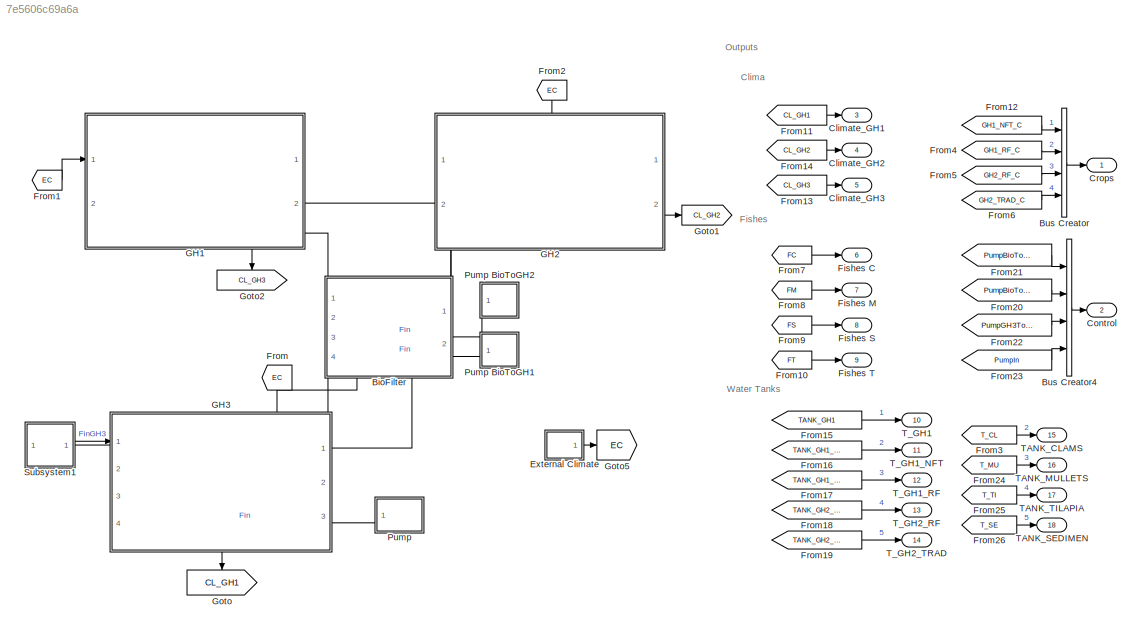
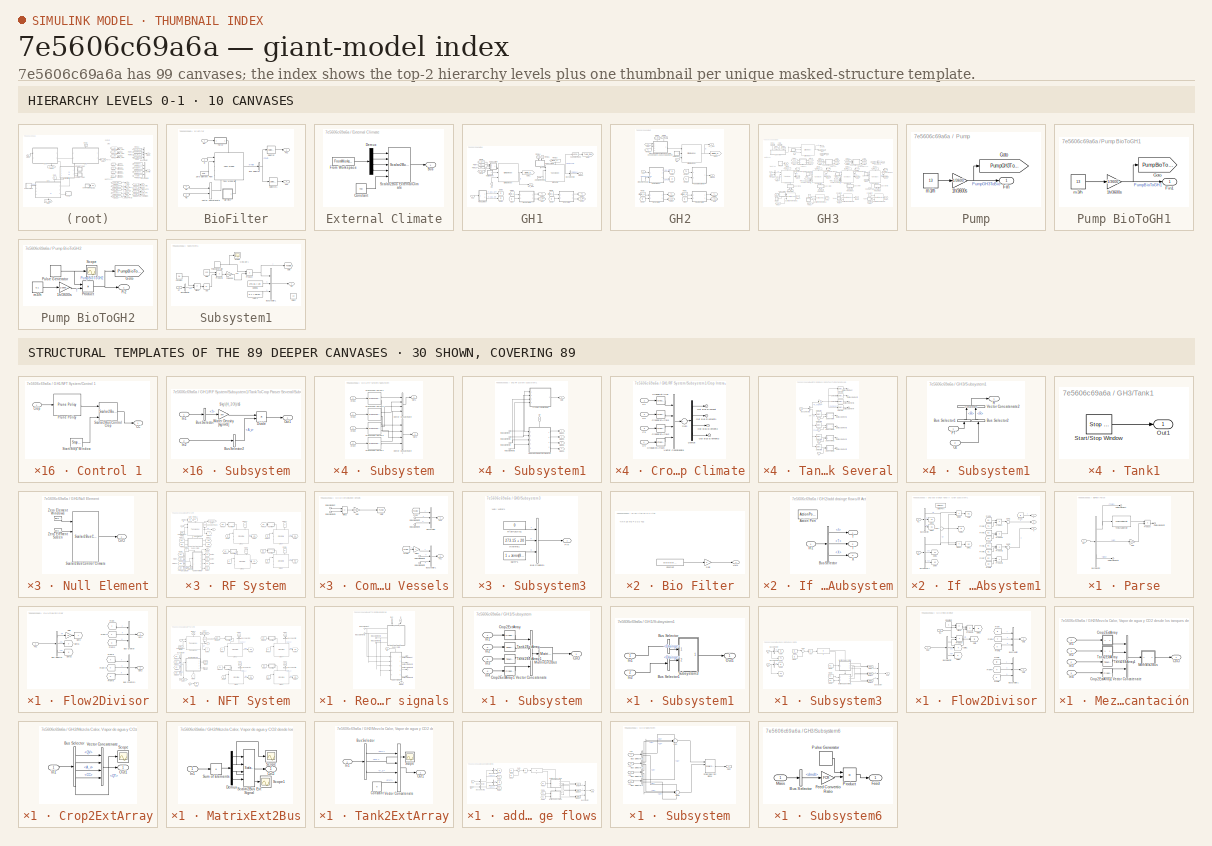
[diagram: thumbnail index - top-2 hierarchy levels (10 canvases) + 30 structural-template representatives of the remaining 89 canvases]
MODEL slx_7e5606c69a6a
KIND model
CONFIG AbsTol = auto
CONFIG EnableMultiTasking = off
CONFIG FixedStep = auto
CONFIG MaxStep = auto
CONFIG MinStep = auto
CONFIG RelTol = 1e-3
CONFIG SampleTimeConstraint = Unconstrained
CONFIG SolverName = VariableStepAuto
CONFIG StartTime = 0.0
CONFIG StopTime = 4
BLOCK [SubSystem] BioFilter
  NameLocation = left
  PortSchema = {"entries":[{"content":{"sides":[{"content":{"connectorIds":[]},"type":"ConnectorPlacement.EquallySpacedRectSide","uuid":"39de7e6f-241b-402f-a120-18892c124752"},{"content":{"connectorIds":["In3","In4"],"side":"RIGHT"},"type":"ConnectorPlacement.EquallySpacedRectSide","uuid":"cefc2988-7ee7-4e24-926e-b8e4989b17f9"},{"content":{"connectorIds":["Out1","Out2"],"side":"TOP"},"type":"ConnectorPlacement.E...<+408ch>
  Ports = [4, 2]
  RequestExecContextInheritance = off
BLOCK [SubSystem] BioFilter/Bio Filter
  Ports = [0, 1]
  RequestExecContextInheritance = off
BLOCK [Constant] BioFilter/Bio Filter/Constant
  Value = [0 0 0 0 0 0 1 0]'
  VectorParams1D = off
BLOCK [Gain] BioFilter/Bio Filter/Gain
BLOCK [Outport] BioFilter/Bio Filter/Out1
BLOCK [BusSelector] BioFilter/Bus Selector
  OutputSignals = Fout
  Ports = [1, 1]
BLOCK [Inport] BioFilter/EC
BLOCK [Inport] BioFilter/Fi1
  Port = 4
BLOCK [Inport] BioFilter/Fi2
  Port = 3
BLOCK [Outport] BioFilter/Fo1
BLOCK [Outport] BioFilter/Fo2
  Port = 2
BLOCK [SubSystem] BioFilter/Parse
  Ports = [1, 1]
  RequestExecContextInheritance = off
BLOCK [BusSelector] BioFilter/Parse/Bus Selector
  OutputSignals = Temp,HR,Wind
  Ports = [1, 3]
BLOCK [Inport] BioFilter/Parse/EC
BLOCK [Gain] BioFilter/Parse/Gain
  Gain = 1/100
BLOCK [Outport] BioFilter/Parse/Out Bus Element
BLOCK [Outport] BioFilter/Parse/Out Bus Element1
BLOCK [Outport] BioFilter/Parse/Out Bus Element2
BLOCK [Product] BioFilter/Parse/Product
  Ports = [2, 1]
BLOCK [Reference] BioFilter/Parse/Temp2SatDensity  REF=HORTISIM/Other 
Functions/Temp2SatDensity
  Ports = [1, 1]
  SourceBlock = HORTISIM/Other \nFunctions/Temp2SatDensity
  SourceProductName = Horti Simulator
  SourceType = SubSystem
BLOCK [Selector] BioFilter/Selector
  IndexOptions = Index vector (dialog)
  Indices = [1]
  InputPortWidth = 2
  OutputSizes = 1
  Ports = [1, 1]
BLOCK [Selector] BioFilter/Selector1
  IndexOptions = Index vector (dialog)
  Indices = [2]
  InputPortWidth = 2
  OutputSizes = 1
  Ports = [1, 1]
BLOCK [Reference] BioFilter/Tank Model Bio  REF=HORTISIM/Aquaculture/Models/Tank Model
  Ports = [5, 1]
  SourceBlock = HORTISIM/Aquaculture/Models/Tank Model
  SourceProductName = Horti Simulator
BLOCK [Concatenate] BioFilter/Vector Concatenate
  Mode = Multidimensional array
  Ports = [2, 1]
BLOCK [Reference] BioFilter/Zero Element Flow  REF=HORTISIM/Other 
Functions/Zero Element Flow
  Ports = [0, 1]
  SourceBlock = HORTISIM/Other \nFunctions/Zero Element Flow
  SourceProductName = Horti Simulator
  SourceType = SubSystem
BLOCK [Inport] BioFilter/in
  Port = 2
BLOCK [BusCreator] Bus Creator
  DisplayOption = bar
  InheritFromInputs = on
  Inputs = 4
  Ports = [4, 1]
BLOCK [BusCreator] Bus Creator4
  DisplayOption = bar
  InheritFromInputs = on
  Inputs = 4
  Ports = [4, 1]
BLOCK [Outport] Climate_GH1
  Port = 3
BLOCK [Outport] Climate_GH2
  Port = 4
BLOCK [Outport] Climate_GH3
  Port = 5
BLOCK [Outport] Control
  Port = 2
BLOCK [Outport] Crops
  PortDimensions = 62*4*4
BLOCK [SubSystem] External Climate
  Ports = [0, 1]
  RequestExecContextInheritance = off
BLOCK [Outport] External Climate/Bus
BLOCK [Constant] External Climate/Constant
  Value = 440
BLOCK [Demux] External Climate/Demux
  Ports = [1, 4]
BLOCK [FromWorkspace] External Climate/From Workspace
  VariableName = S01_EC
BLOCK [Reference] External Climate/Scalar2Bus ExternalClimate  REF=HORTISIM/Other 
Functions/Scalar2Bus
ExternalClimate
  Ports = [5, 1]
  SourceBlock = HORTISIM/Other \nFunctions/Scalar2Bus\nExternalClimate
  SourceProductName = Horti Simulator
  SourceType = SubSystem
BLOCK [Outport] Fishes C
  Port = 6
BLOCK [Outport] Fishes M
  Port = 7
BLOCK [Outport] Fishes S
  Port = 8
BLOCK [Outport] Fishes T
  Port = 9
BLOCK [From] From
  GotoTag = EC
  NameLocation = left
BLOCK [From] From1
  GotoTag = EC
BLOCK [From] From10
  GotoTag = FT
  TagVisibility = global
BLOCK [From] From11
  GotoTag = CL_GH1
BLOCK [From] From12
  GotoTag = GH1_NFT_C
  TagVisibility = global
BLOCK [From] From13
  GotoTag = CL_GH3
BLOCK [From] From14
  GotoTag = CL_GH2
BLOCK [From] From15
  GotoTag = TANK_GH1
  TagVisibility = global
BLOCK [From] From16
  GotoTag = TANK_GH1_NFT
  TagVisibility = global
BLOCK [From] From17
  GotoTag = TANK_GH1_RF
  TagVisibility = global
BLOCK [From] From18
  GotoTag = TANK_GH2_RF
  TagVisibility = global
BLOCK [From] From19
  GotoTag = TANK_GH2_TRAD
  TagVisibility = global
BLOCK [From] From2
  GotoTag = EC
  NameLocation = left
BLOCK [From] From20
  GotoTag = PumpBioToGH2
  TagVisibility = global
BLOCK [From] From21
  GotoTag = PumpBioToGH1
  TagVisibility = global
BLOCK [From] From22
  GotoTag = PumpGH3ToBio
  TagVisibility = global
BLOCK [From] From23
  GotoTag = PumpIn
  TagVisibility = global
BLOCK [From] From24
  GotoTag = T_MU
  TagVisibility = global
BLOCK [From] From25
  GotoTag = T_TI
  TagVisibility = global
BLOCK [From] From26
  GotoTag = T_SE
  TagVisibility = global
BLOCK [From] From3
  GotoTag = T_CL
  TagVisibility = global
BLOCK [From] From4
  GotoTag = GH1_RF_C
  TagVisibility = global
BLOCK [From] From5
  GotoTag = GH2_RF_C
  TagVisibility = global
BLOCK [From] From6
  GotoTag = GH2_TRAD_C
  TagVisibility = global
BLOCK [From] From7
  GotoTag = FC
  TagVisibility = global
BLOCK [From] From8
  GotoTag = FM
  TagVisibility = global
BLOCK [From] From9
  GotoTag = FS
  TagVisibility = global
BLOCK [SubSystem] GH1
  NameLocation = top
  PortSchema = {"entries":[{"content":{"sides":[{"content":{"connectorIds":["In1"]},"type":"ConnectorPlacement.EquallySpacedRectSide","uuid":"f96e7fae-faa6-4c45-94ca-623160b74f18"},{"content":{"connectorIds":["In2"],"side":"RIGHT"},"type":"ConnectorPlacement.EquallySpacedRectSide","uuid":"cb53bd10-123e-4148-bfa4-80436b7b153d"},{"content":{"connectorIds":[],"side":"TOP"},"type":"ConnectorPlacement.EquallySpacedRe...<+396ch>
  Ports = [2, 2]
  RequestExecContextInheritance = off
BLOCK [Reference] GH1/Bio Sump  REF=HORTISIM/Aquaculture/Models/Tank Model
  Ports = [5, 1]
  SourceBlock = HORTISIM/Aquaculture/Models/Tank Model
  SourceProductName = Horti Simulator
BLOCK [BusSelector] GH1/Bus Selector2
  OutputSignals = Drainge
  Ports = [1, 1]
BLOCK [Outport] GH1/CL_GH1
  Port = 2
BLOCK [Reference] GH1/Climate Model  REF=HORTISIM/Climate/Models/Climate Model
  Ports = [3, 1]
  SourceBlock = HORTISIM/Climate/Models/Climate Model
  SourceProductName = Horti Simulator
BLOCK [Outport] GH1/Drainge
BLOCK [Inport] GH1/EC
  NameLocation = right
BLOCK [SubSystem] GH1/Flow2Divisor
  Ports = [1, 2]
  RequestExecContextInheritance = off
BLOCK [BusCreator] GH1/Flow2Divisor/Bus Creator
  DisplayOption = bar
  InheritFromInputs = on
  Inputs = 3
  NonVirtualBus = on
  OutDataTypeStr = Bus: FLOW
  Ports = [3, 1]
BLOCK [BusCreator] GH1/Flow2Divisor/Bus Creator1
  DisplayOption = bar
  InheritFromInputs = on
  Inputs = 3
  NonVirtualBus = on
  OutDataTypeStr = Bus: FLOW
  Ports = [3, 1]
BLOCK [BusSelector] GH1/Flow2Divisor/Bus Selector
  OutputSignals = f,T,X
  Ports = [1, 3]
BLOCK [Inport] GH1/Flow2Divisor/Fo1
BLOCK [From] GH1/Flow2Divisor/From
  GotoTag = f
BLOCK [From] GH1/Flow2Divisor/From1
  GotoTag = T
BLOCK [From] GH1/Flow2Divisor/From2
  GotoTag = X
BLOCK [From] GH1/Flow2Divisor/From3
  GotoTag = f
BLOCK [From] GH1/Flow2Divisor/From4
  GotoTag = T
BLOCK [From] GH1/Flow2Divisor/From5
  GotoTag = X
BLOCK [Gain] GH1/Flow2Divisor/Gain
  Gain = 1/2
BLOCK [Goto] GH1/Flow2Divisor/Goto
  GotoTag = f
BLOCK [Goto] GH1/Flow2Divisor/Goto1
  GotoTag = T
BLOCK [Goto] GH1/Flow2Divisor/Goto2
  GotoTag = X
BLOCK [Outport] GH1/Flow2Divisor/Out1
BLOCK [Outport] GH1/Flow2Divisor/Out2
  Port = 2
BLOCK [Inport] GH1/Fo1
  Port = 2
BLOCK [From] GH1/From
  GotoTag = f1
BLOCK [From] GH1/From1
  GotoTag = Climate_GH1
BLOCK [From] GH1/From14
  GotoTag = T2
  NameLocation = left
BLOCK [From] GH1/From15
  GotoTag = T1
  NameLocation = left
BLOCK [From] GH1/From16
  GotoTag = Climate_GH1
  NameLocation = left
BLOCK [From] GH1/From19
  GotoTag = T1
BLOCK [From] GH1/From2
  GotoTag = Climate_GH1
BLOCK [From] GH1/From4
  GotoTag = f2
BLOCK [From] GH1/From5
  GotoTag = C_RF
BLOCK [From] GH1/From6
  GotoTag = C_NFT
BLOCK [From] GH1/From7
  GotoTag = T2
BLOCK [Goto] GH1/Goto
  GotoTag = C_NFT
BLOCK [Goto] GH1/Goto1
  GotoTag = Climate_GH1
BLOCK [Goto] GH1/Goto2
  GotoTag = T2
BLOCK [Goto] GH1/Goto3
  GotoTag = f1
BLOCK [Goto] GH1/Goto4
  GotoTag = f2
BLOCK [Goto] GH1/Goto5
  GotoTag = C_RF
BLOCK [Goto] GH1/Goto6
  GotoTag = T1
BLOCK [Goto] GH1/Goto7
  GotoTag = TANK_GH1
  TagVisibility = global
BLOCK [SubSystem] GH1/NFT System
  Ports = [2, 2]
  RequestExecContextInheritance = off
BLOCK [BusCreator] GH1/NFT System/Bus Creator
  DisplayOption = bar
  InheritFromInputs = on
  Inputs = 4
  Ports = [4, 1]
BLOCK [BusSelector] GH1/NFT System/Bus Selector
  NameLocation = left
  OutputSignals = Subs1
  Ports = [1, 1]
BLOCK [BusSelector] GH1/NFT System/Bus Selector1
  NameLocation = left
  OutputSignals = Subs3
  Ports = [1, 1]
BLOCK [BusSelector] GH1/NFT System/Bus Selector2
  NameLocation = left
  OutputSignals = Subs4
  Ports = [1, 1]
BLOCK [BusSelector] GH1/NFT System/Bus Selector3
  NameLocation = left
  OutputSignals = Subs2
  Ports = [1, 1]
BLOCK [SubSystem] GH1/NFT System/Control 1
  Ports = [1, 1]
  RequestExecContextInheritance = off
BLOCK [Outport] GH1/NFT System/Control 1/CC
BLOCK [Inport] GH1/NFT System/Control 1/Crop
BLOCK [Reference] GH1/NFT System/Control 1/Prune Policy  REF=HORTISIM/Horticulture/Controls/Prune
Policy
  Ports = [1, 1]
  SourceBlock = HORTISIM/Horticulture/Controls/Prune\nPolicy
  SourceProductName = Horti Simulator
BLOCK [Reference] GH1/NFT System/Control 1/Scalar2Bus Control Crop  REF=HORTISIM/Other 
Functions/Scalar2Bus
Control Crop
  Ports = [4, 1]
  SourceBlock = HORTISIM/Other \nFunctions/Scalar2Bus\nControl Crop
  SourceProductName = Horti Simulator
  SourceType = SubSystem
BLOCK [Reference] GH1/NFT System/Control 1/Start//Stop Window  REF=HORTISIM/Other 
Functions/Start//Stop Window
  Ports = [0, 1]
  SourceBlock = HORTISIM/Other \nFunctions/Start//Stop Window
  SourceProductName = Horti Simulator
BLOCK [SubSystem] GH1/NFT System/Control 2
  Ports = [1, 1]
  RequestExecContextInheritance = off
BLOCK [Outport] GH1/NFT System/Control 2/CC
BLOCK [Inport] GH1/NFT System/Control 2/Crop
BLOCK [Reference] GH1/NFT System/Control 2/Prune Policy  REF=HORTISIM/Horticulture/Controls/Prune
Policy
  Ports = [1, 1]
  SourceBlock = HORTISIM/Horticulture/Controls/Prune\nPolicy
  SourceProductName = Horti Simulator
BLOCK [Reference] GH1/NFT System/Control 2/Scalar2Bus Control Crop  REF=HORTISIM/Other 
Functions/Scalar2Bus
Control Crop
  Ports = [4, 1]
  SourceBlock = HORTISIM/Other \nFunctions/Scalar2Bus\nControl Crop
  SourceProductName = Horti Simulator
  SourceType = SubSystem
BLOCK [Reference] GH1/NFT System/Control 2/Start//Stop Window  REF=HORTISIM/Other 
Functions/Start//Stop Window
  Ports = [0, 1]
  SourceBlock = HORTISIM/Other \nFunctions/Start//Stop Window
  SourceProductName = Horti Simulator
BLOCK [SubSystem] GH1/NFT System/Control 3
  Ports = [1, 1]
  RequestExecContextInheritance = off
BLOCK [Outport] GH1/NFT System/Control 3/CC
BLOCK [Inport] GH1/NFT System/Control 3/Crop
BLOCK [Reference] GH1/NFT System/Control 3/Prune Policy  REF=HORTISIM/Horticulture/Controls/Prune
Policy
  Ports = [1, 1]
  SourceBlock = HORTISIM/Horticulture/Controls/Prune\nPolicy
  SourceProductName = Horti Simulator
BLOCK [Reference] GH1/NFT System/Control 3/Scalar2Bus Control Crop  REF=HORTISIM/Other 
Functions/Scalar2Bus
Control Crop
  Ports = [4, 1]
  SourceBlock = HORTISIM/Other \nFunctions/Scalar2Bus\nControl Crop
  SourceProductName = Horti Simulator
  SourceType = SubSystem
BLOCK [Reference] GH1/NFT System/Control 3/Start//Stop Window  REF=HORTISIM/Other 
Functions/Start//Stop Window
  Ports = [0, 1]
  SourceBlock = HORTISIM/Other \nFunctions/Start//Stop Window
  SourceProductName = Horti Simulator
BLOCK [SubSystem] GH1/NFT System/Control 4
  Ports = [1, 1]
  RequestExecContextInheritance = off
BLOCK [Outport] GH1/NFT System/Control 4/CC
BLOCK [Inport] GH1/NFT System/Control 4/Crop
BLOCK [Reference] GH1/NFT System/Control 4/Prune Policy  REF=HORTISIM/Horticulture/Controls/Prune
Policy
  Ports = [1, 1]
  SourceBlock = HORTISIM/Horticulture/Controls/Prune\nPolicy
  SourceProductName = Horti Simulator
BLOCK [Reference] GH1/NFT System/Control 4/Scalar2Bus Control Crop  REF=HORTISIM/Other 
Functions/Scalar2Bus
Control Crop
  Ports = [4, 1]
  SourceBlock = HORTISIM/Other \nFunctions/Scalar2Bus\nControl Crop
  SourceProductName = Horti Simulator
  SourceType = SubSystem
BLOCK [Reference] GH1/NFT System/Control 4/Start//Stop Window  REF=HORTISIM/Other 
Functions/Start//Stop Window
  Ports = [0, 1]
  SourceBlock = HORTISIM/Other \nFunctions/Start//Stop Window
  SourceProductName = Horti Simulator
BLOCK [Reference] GH1/NFT System/Crop 1  REF=HORTISIM/Horticulture/Models/Crop Grow
  Ports = [3, 1]
  SourceBlock = HORTISIM/Horticulture/Models/Crop Grow
  SourceProductName = Horti Simulator
BLOCK [Reference] GH1/NFT System/Crop 2  REF=HORTISIM/Horticulture/Models/Crop Grow
  Ports = [3, 1]
  SourceBlock = HORTISIM/Horticulture/Models/Crop Grow
  SourceProductName = Horti Simulator
BLOCK [Reference] GH1/NFT System/Crop 3  REF=HORTISIM/Horticulture/Models/Crop Grow
  Ports = [3, 1]
  SourceBlock = HORTISIM/Horticulture/Models/Crop Grow
  SourceProductName = Horti Simulator
BLOCK [Reference] GH1/NFT System/Crop 4  REF=HORTISIM/Horticulture/Models/Crop Grow
  Ports = [3, 1]
  SourceBlock = HORTISIM/Horticulture/Models/Crop Grow
  SourceProductName = Horti Simulator
BLOCK [Outport] GH1/NFT System/CropInt
  Port = 2
BLOCK [From] GH1/NFT System/From
  GotoTag = C2
BLOCK [From] GH1/NFT System/From1
  GotoTag = IC
BLOCK [From] GH1/NFT System/From10
  GotoTag = C1
BLOCK [From] GH1/NFT System/From11
  GotoTag = IC
  NameLocation = left
BLOCK [From] GH1/NFT System/From13
  GotoTag = C1
BLOCK [From] GH1/NFT System/From15
  GotoTag = IC
BLOCK [From] GH1/NFT System/From16
  GotoTag = C3
BLOCK [From] GH1/NFT System/From18
  GotoTag = C4
BLOCK [From] GH1/NFT System/From2
  GotoTag = C2
BLOCK [From] GH1/NFT System/From20
  GotoTag = C3
BLOCK [From] GH1/NFT System/From21
  GotoTag = C4
BLOCK [From] GH1/NFT System/From3
  GotoTag = IC
BLOCK [From] GH1/NFT System/From4
  GotoTag = Subs
  NameLocation = left
BLOCK [From] GH1/NFT System/From5
  GotoTag = T
  NameLocation = right
BLOCK [From] GH1/NFT System/From6
  GotoTag = Subs
  NameLocation = left
BLOCK [From] GH1/NFT System/From7
  GotoTag = Subs
  NameLocation = left
BLOCK [From] GH1/NFT System/From8
  GotoTag = Subs
  NameLocation = left
BLOCK [From] GH1/NFT System/From9
  GotoTag = IC
BLOCK [Goto] GH1/NFT System/Goto
  GotoTag = IC
BLOCK [Goto] GH1/NFT System/Goto1
  GotoTag = C2
BLOCK [Goto] GH1/NFT System/Goto2
  GotoTag = C1
BLOCK [Goto] GH1/NFT System/Goto3
  GotoTag = Subs
BLOCK [Goto] GH1/NFT System/Goto4
  GotoTag = GH1_NFT_C
  NameLocation = left
  TagVisibility = global
BLOCK [Goto] GH1/NFT System/Goto5
  GotoTag = C3
BLOCK [Goto] GH1/NFT System/Goto6
  GotoTag = C4
BLOCK [Goto] GH1/NFT System/Goto7
  GotoTag = TANK_GH1_NFT
  NameLocation = right
  TagVisibility = global
BLOCK [Goto] GH1/NFT System/Goto8
  GotoTag = T
BLOCK [Inport] GH1/NFT System/IC
BLOCK [SubSystem] GH1/NFT System/Reorder signals
  PortSchema = {"entries":[{"content":{"sides":[{"content":{"connectorIds":["In1"]},"type":"ConnectorPlacement.EquallySpacedRectSide","uuid":"9bbb4059-7111-4f5f-880e-1e66f0dc329a"},{"content":{"connectorIds":["Out1","Out2"],"side":"RIGHT"},"type":"ConnectorPlacement.EquallySpacedRectSide","uuid":"81ab22e8-385b-43c4-a26b-510ea5d440bf"},{"content":{"connectorIds":["Out3","Out4"],"side":"TOP"},"type":"ConnectorPlac...<+409ch>
  Ports = [2, 4]
  RequestExecContextInheritance = off
BLOCK [Outport] GH1/NFT System/Reorder signals/CropInt
  Port = 2
BLOCK [Inport] GH1/NFT System/Reorder signals/In Bus Element
BLOCK [Inport] GH1/NFT System/Reorder signals/In Bus Element1
BLOCK [Inport] GH1/NFT System/Reorder signals/In Bus Element2
BLOCK [Inport] GH1/NFT System/Reorder signals/In Bus Element3
BLOCK [Outport] GH1/NFT System/Reorder signals/Out Bus Element
BLOCK [Outport] GH1/NFT System/Reorder signals/Out Bus Element1
BLOCK [Outport] GH1/NFT System/Reorder signals/Out Bus Element2
BLOCK [Outport] GH1/NFT System/Reorder signals/Out Bus Element3
BLOCK [Outport] GH1/NFT System/Reorder signals/R
  NameLocation = right
  Port = 4
BLOCK [SubSystem] GH1/NFT System/Reorder signals/Subsystem
  NameLocation = right
  PortSchema = {"entries":[{"content":{"sides":[{"content":{"connectorIds":[]},"type":"ConnectorPlacement.EquallySpacedRectSide","uuid":"331b7e07-99e0-48a1-afa9-efd959d86c3c"},{"content":{"connectorIds":["Out1","Out2"],"side":"RIGHT"},"type":"ConnectorPlacement.EquallySpacedRectSide","uuid":"88f560c2-c33d-415c-abbb-9cce13a50e34"},{"content":{"connectorIds":["In1","In2","In3","In4"],"side":"TOP"},"type":"Connecto...<+409ch>
  Ports = [4, 2]
  RequestExecContextInheritance = off
BLOCK [Inport] GH1/NFT System/Reorder signals/Subsystem/Crop1
  Port = 4
BLOCK [Inport] GH1/NFT System/Reorder signals/Subsystem/Crop2
  Port = 3
BLOCK [Inport] GH1/NFT System/Reorder signals/Subsystem/Crop3
BLOCK [Inport] GH1/NFT System/Reorder signals/Subsystem/Crop4
  Port = 2
BLOCK [Reference] GH1/NFT System/Reorder signals/Subsystem/CropToTank Parser1  REF=HORTISIM/Other 
Functions/CropToTank Parser
  Ports = [1, 2]
  SourceBlock = HORTISIM/Other \nFunctions/CropToTank Parser
  SourceProductName = Horti Simulator
  SourceType = SubSystem
BLOCK [Reference] GH1/NFT System/Reorder signals/Subsystem/CropToTank Parser2  REF=HORTISIM/Other 
Functions/CropToTank Parser
  Ports = [1, 2]
  SourceBlock = HORTISIM/Other \nFunctions/CropToTank Parser
  SourceProductName = Horti Simulator
  SourceType = SubSystem
BLOCK [Reference] GH1/NFT System/Reorder signals/Subsystem/CropToTank Parser3  REF=HORTISIM/Other 
Functions/CropToTank Parser
  Ports = [1, 2]
  SourceBlock = HORTISIM/Other \nFunctions/CropToTank Parser
  SourceProductName = Horti Simulator
  SourceType = SubSystem
BLOCK [Reference] GH1/NFT System/Reorder signals/Subsystem/CropToTank Parser4  REF=HORTISIM/Other 
Functions/CropToTank Parser
  Ports = [1, 2]
  SourceBlock = HORTISIM/Other \nFunctions/CropToTank Parser
  SourceProductName = Horti Simulator
  SourceType = SubSystem
BLOCK [Outport] GH1/NFT System/Reorder signals/Subsystem/Out1
BLOCK [Outport] GH1/NFT System/Reorder signals/Subsystem/Out2
  Port = 2
BLOCK [Concatenate] GH1/NFT System/Reorder signals/Subsystem/Vector Concatenate
  Mode = Multidimensional array
  NumInputs = 4
  Ports = [4, 1]
BLOCK [Concatenate] GH1/NFT System/Reorder signals/Subsystem/Vector Concatenate1
  ConcatenateDimension = 2
  Mode = Multidimensional array
  NumInputs = 4
  Ports = [4, 1]
BLOCK [SubSystem] GH1/NFT System/Reorder signals/Subsystem1
  PortSchema = {"entries":[{"content":{"sides":[{"content":{"connectorIds":["In1","In2","In3","In4"]},"type":"ConnectorPlacement.EquallySpacedRectSide","uuid":"4fbee580-d560-4e1c-bbb5-c1692f8814f1"},{"content":{"connectorIds":["Out1","Out2","Out3","Out4"],"side":"RIGHT"},"type":"ConnectorPlacement.EquallySpacedRectSide","uuid":"81a4a23d-0981-460c-8110-0a6c3dae9561"},{"content":{"connectorIds":["In5"],"side":"TOP...<+434ch>
  Ports = [5, 5]
  RequestExecContextInheritance = off
BLOCK [Inport] GH1/NFT System/Reorder signals/Subsystem1/C1
BLOCK [Inport] GH1/NFT System/Reorder signals/Subsystem1/C2
  Port = 2
BLOCK [Inport] GH1/NFT System/Reorder signals/Subsystem1/C3
  Port = 3
BLOCK [Inport] GH1/NFT System/Reorder signals/Subsystem1/C4
  Port = 4
BLOCK [SubSystem] GH1/NFT System/Reorder signals/Subsystem1/Crop Interactio with Climate
  Ports = [4, 1]
  RequestExecContextInheritance = off
BLOCK [Inport] GH1/NFT System/Reorder signals/Subsystem1/Crop Interactio with Climate/C1
BLOCK [Inport] GH1/NFT System/Reorder signals/Subsystem1/Crop Interactio with Climate/C2
  Port = 2
BLOCK [Inport] GH1/NFT System/Reorder signals/Subsystem1/Crop Interactio with Climate/C3
  Port = 3
BLOCK [Inport] GH1/NFT System/Reorder signals/Subsystem1/Crop Interactio with Climate/C4
  Port = 4
BLOCK [Reference] GH1/NFT System/Reorder signals/Subsystem1/Crop Interactio with Climate/Crop2ExtArray  REF=HORTISIM/Other 
Functions/Crop2ExtArray
  Ports = [1, 1]
  SourceBlock = HORTISIM/Other \nFunctions/Crop2ExtArray
  SourceProductName = Horti Simulator
  SourceType = SubSystem
BLOCK [Reference] GH1/NFT System/Reorder signals/Subsystem1/Crop Interactio with Climate/Crop2ExtArray1  REF=HORTISIM/Other 
Functions/Crop2ExtArray
  Ports = [1, 1]
  SourceBlock = HORTISIM/Other \nFunctions/Crop2ExtArray
  SourceProductName = Horti Simulator
  SourceType = SubSystem
BLOCK [Reference] GH1/NFT System/Reorder signals/Subsystem1/Crop Interactio with Climate/Crop2ExtArray2  REF=HORTISIM/Other 
Functions/Crop2ExtArray
  Ports = [1, 1]
  SourceBlock = HORTISIM/Other \nFunctions/Crop2ExtArray
  SourceProductName = Horti Simulator
  SourceType = SubSystem
BLOCK [Reference] GH1/NFT System/Reorder signals/Subsystem1/Crop Interactio with Climate/Crop2ExtArray3  REF=HORTISIM/Other 
Functions/Crop2ExtArray
  Ports = [1, 1]
  SourceBlock = HORTISIM/Other \nFunctions/Crop2ExtArray
  SourceProductName = Horti Simulator
  SourceType = SubSystem
BLOCK [Demux] GH1/NFT System/Reorder signals/Subsystem1/Crop Interactio with Climate/Demux
  Ports = [1, 4]
BLOCK [Outport] GH1/NFT System/Reorder signals/Subsystem1/Crop Interactio with Climate/Out Bus Element
BLOCK [Outport] GH1/NFT System/Reorder signals/Subsystem1/Crop Interactio with Climate/Out Bus Element1
BLOCK [Outport] GH1/NFT System/Reorder signals/Subsystem1/Crop Interactio with Climate/Out Bus Element2
BLOCK [Outport] GH1/NFT System/Reorder signals/Subsystem1/Crop Interactio with Climate/Out Bus Element3
BLOCK [Sum] GH1/NFT System/Reorder signals/Subsystem1/Crop Interactio with Climate/Sum
  CollapseDim = 2
  CollapseMode = Specified dimension
  Inputs = +
  Ports = [1, 1]
BLOCK [Concatenate] GH1/NFT System/Reorder signals/Subsystem1/Crop Interactio with Climate/Vector Concatenate
  ConcatenateDimension = 2
  Mode = Multidimensional array
  NumInputs = 4
  Ports = [4, 1]
BLOCK [Outport] GH1/NFT System/Reorder signals/Subsystem1/Out3
  Port = 5
BLOCK [Outport] GH1/NFT System/Reorder signals/Subsystem1/Subs
BLOCK [Outport] GH1/NFT System/Reorder signals/Subsystem1/Subs2
  Port = 2
BLOCK [Outport] GH1/NFT System/Reorder signals/Subsystem1/Subs3
  Port = 3
BLOCK [Outport] GH1/NFT System/Reorder signals/Subsystem1/Subs4
  Port = 4
BLOCK [SubSystem] GH1/NFT System/Reorder signals/Subsystem1/TankToCrop Parser Several
  PortSchema = {"entries":[{"content":{"sides":[{"content":{"connectorIds":["In1","In2","In3","In4"]},"type":"ConnectorPlacement.EquallySpacedRectSide","uuid":"99f6f79d-93b3-4d94-9532-d82544948055"},{"content":{"connectorIds":["Out1","Out2","Out3","Out4"],"side":"RIGHT"},"type":"ConnectorPlacement.EquallySpacedRectSide","uuid":"ca15eaf2-1366-4114-b322-5e88a02c6d72"},{"content":{"connectorIds":["In5"],"side":"TOP...<+284ch>  <repeated x4 — deduplicated; at blocks: TankToCrop Parser Several>
  Ports = [5, 4]
  RequestExecContextInheritance = off
BLOCK [BusSelector] GH1/NFT System/Reorder signals/Subsystem1/TankToCrop Parser Several/Bus Selector1
  OutputSignals = R_uptake,Fout
  Ports = [1, 2]
BLOCK [Inport] GH1/NFT System/Reorder signals/Subsystem1/TankToCrop Parser Several/C1
BLOCK [Inport] GH1/NFT System/Reorder signals/Subsystem1/TankToCrop Parser Several/C2
  Port = 2
BLOCK [Inport] GH1/NFT System/Reorder signals/Subsystem1/TankToCrop Parser Several/C3
  Port = 3
BLOCK [Inport] GH1/NFT System/Reorder signals/Subsystem1/TankToCrop Parser Several/C4
  Port = 4
BLOCK [Gain] GH1/NFT System/Reorder signals/Subsystem1/TankToCrop Parser Several/Gain
  Gain = -1
BLOCK [Outport] GH1/NFT System/Reorder signals/Subsystem1/TankToCrop Parser Several/Out Bus Element
BLOCK [Outport] GH1/NFT System/Reorder signals/Subsystem1/TankToCrop Parser Several/Out Bus Element1
BLOCK [Outport] GH1/NFT System/Reorder signals/Subsystem1/TankToCrop Parser Several/Out Bus Element2
  Port = 2
BLOCK [Outport] GH1/NFT System/Reorder signals/Subsystem1/TankToCrop Parser Several/Out Bus Element3
  Port = 2
BLOCK [Outport] GH1/NFT System/Reorder signals/Subsystem1/TankToCrop Parser Several/Out Bus Element4
  Port = 3
BLOCK [Outport] GH1/NFT System/Reorder signals/Subsystem1/TankToCrop Parser Several/Out Bus Element5
  Port = 4
BLOCK [Outport] GH1/NFT System/Reorder signals/Subsystem1/TankToCrop Parser Several/Out Bus Element6
  Port = 3
BLOCK [Outport] GH1/NFT System/Reorder signals/Subsystem1/TankToCrop Parser Several/Out Bus Element7
  Port = 4
BLOCK [Selector] GH1/NFT System/Reorder signals/Subsystem1/TankToCrop Parser Several/Selector
  IndexOptions = Index vector (dialog)
  Indices = [1]
  InputPortWidth = 4
  OutputSizes = 1
  Ports = [1, 1]
BLOCK [Selector] GH1/NFT System/Reorder signals/Subsystem1/TankToCrop Parser Several/Selector1
  IndexOptions = Index vector (dialog)
  Indices = [2]
  InputPortWidth = 4
  OutputSizes = 1
  Ports = [1, 1]
BLOCK [Selector] GH1/NFT System/Reorder signals/Subsystem1/TankToCrop Parser Several/Selector2
  IndexOptions = Select all,Index vector (dialog)
  Indices = [1],1
  InputPortWidth = 2
  NumberOfDimensions = 2
  OutputSizes = 1,1
  Ports = [1, 1]
BLOCK [Selector] GH1/NFT System/Reorder signals/Subsystem1/TankToCrop Parser Several/Selector3
  IndexOptions = Select all,Index vector (dialog)
  Indices = [2],2
  InputPortWidth = 2
  NumberOfDimensions = 2
  OutputSizes = 1,1
  Ports = [1, 1]
BLOCK [Selector] GH1/NFT System/Reorder signals/Subsystem1/TankToCrop Parser Several/Selector4
  IndexOptions = Index vector (dialog)
  Indices = [3]
  InputPortWidth = 4
  OutputSizes = 1
  Ports = [1, 1]
BLOCK [Selector] GH1/NFT System/Reorder signals/Subsystem1/TankToCrop Parser Several/Selector5
  IndexOptions = Index vector (dialog)
  Indices = [4]
  InputPortWidth = 4
  OutputSizes = 1
  Ports = [1, 1]
BLOCK [Selector] GH1/NFT System/Reorder signals/Subsystem1/TankToCrop Parser Several/Selector6
  IndexOptions = Select all,Index vector (dialog)
  Indices = [2],3
  InputPortWidth = 2
  NumberOfDimensions = 2
  OutputSizes = 1,1
  Ports = [1, 1]
BLOCK [Selector] GH1/NFT System/Reorder signals/Subsystem1/TankToCrop Parser Several/Selector7
  IndexOptions = Select all,Index vector (dialog)
  Indices = [2],4
  InputPortWidth = 2
  NumberOfDimensions = 2
  OutputSizes = 1,1
  Ports = [1, 1]
BLOCK [SubSystem] GH1/NFT System/Reorder signals/Subsystem1/TankToCrop Parser Several/Subsystem
  Ports = [2, 1]
  RequestExecContextInheritance = off
BLOCK [BusSelector] GH1/NFT System/Reorder signals/Subsystem1/TankToCrop Parser Several/Subsystem/Bus Selector
  OutputSignals = f
  Ports = [1, 1]
BLOCK [BusSelector] GH1/NFT System/Reorder signals/Subsystem1/TankToCrop Parser Several/Subsystem/Bus Selector2
  OutputSignals = A_v
  Ports = [1, 1]
BLOCK [Product] GH1/NFT System/Reorder signals/Subsystem1/TankToCrop Parser Several/Subsystem/Divide
  Inputs = */
  Ports = [2, 1]
BLOCK [Inport] GH1/NFT System/Reorder signals/Subsystem1/TankToCrop Parser Several/Subsystem/In1
BLOCK [Inport] GH1/NFT System/Reorder signals/Subsystem1/TankToCrop Parser Several/Subsystem/In2
  Port = 2
BLOCK [Outport] GH1/NFT System/Reorder signals/Subsystem1/TankToCrop Parser Several/Subsystem/Out1
BLOCK [Gain] GH1/NFT System/Reorder signals/Subsystem1/TankToCrop Parser Several/Subsystem/Water Density [kg//m^3]
  Gain = 997
BLOCK [SubSystem] GH1/NFT System/Reorder signals/Subsystem1/TankToCrop Parser Several/Subsystem1
  Ports = [2, 1]
  RequestExecContextInheritance = off
BLOCK [BusSelector] GH1/NFT System/Reorder signals/Subsystem1/TankToCrop Parser Several/Subsystem1/Bus Selector3
  OutputSignals = A_v
  Ports = [1, 1]
BLOCK [BusSelector] GH1/NFT System/Reorder signals/Subsystem1/TankToCrop Parser Several/Subsystem1/Bus Selector4
  OutputSignals = f
  Ports = [1, 1]
BLOCK [Inport] GH1/NFT System/Reorder signals/Subsystem1/TankToCrop Parser Several/Subsystem1/C2
  Port = 2
BLOCK [Product] GH1/NFT System/Reorder signals/Subsystem1/TankToCrop Parser Several/Subsystem1/Divide1
  Inputs = */
  Ports = [2, 1]
BLOCK [Inport] GH1/NFT System/Reorder signals/Subsystem1/TankToCrop Parser Several/Subsystem1/In1
BLOCK [Outport] GH1/NFT System/Reorder signals/Subsystem1/TankToCrop Parser Several/Subsystem1/Out1
BLOCK [Gain] GH1/NFT System/Reorder signals/Subsystem1/TankToCrop Parser Several/Subsystem1/Water Density [kg//m^3]1
  Gain = 997
BLOCK [SubSystem] GH1/NFT System/Reorder signals/Subsystem1/TankToCrop Parser Several/Subsystem2
  Ports = [2, 1]
  RequestExecContextInheritance = off
BLOCK [BusSelector] GH1/NFT System/Reorder signals/Subsystem1/TankToCrop Parser Several/Subsystem2/Bus Selector3
  OutputSignals = A_v
  Ports = [1, 1]
BLOCK [BusSelector] GH1/NFT System/Reorder signals/Subsystem1/TankToCrop Parser Several/Subsystem2/Bus Selector4
  OutputSignals = f
  Ports = [1, 1]
BLOCK [Inport] GH1/NFT System/Reorder signals/Subsystem1/TankToCrop Parser Several/Subsystem2/C2
  Port = 2
BLOCK [Product] GH1/NFT System/Reorder signals/Subsystem1/TankToCrop Parser Several/Subsystem2/Divide1
  Inputs = */
  Ports = [2, 1]
BLOCK [Inport] GH1/NFT System/Reorder signals/Subsystem1/TankToCrop Parser Several/Subsystem2/In1
BLOCK [Outport] GH1/NFT System/Reorder signals/Subsystem1/TankToCrop Parser Several/Subsystem2/Subs3 
BLOCK [Gain] GH1/NFT System/Reorder signals/Subsystem1/TankToCrop Parser Several/Subsystem2/Water Density [kg//m^3]1
  Gain = 997
BLOCK [SubSystem] GH1/NFT System/Reorder signals/Subsystem1/TankToCrop Parser Several/Subsystem3
  Ports = [2, 1]
  RequestExecContextInheritance = off
BLOCK [BusSelector] GH1/NFT System/Reorder signals/Subsystem1/TankToCrop Parser Several/Subsystem3/Bus Selector3
  OutputSignals = A_v
  Ports = [1, 1]
BLOCK [BusSelector] GH1/NFT System/Reorder signals/Subsystem1/TankToCrop Parser Several/Subsystem3/Bus Selector4
  OutputSignals = f
  Ports = [1, 1]
BLOCK [Inport] GH1/NFT System/Reorder signals/Subsystem1/TankToCrop Parser Several/Subsystem3/C2
  Port = 2
BLOCK [Product] GH1/NFT System/Reorder signals/Subsystem1/TankToCrop Parser Several/Subsystem3/Divide1
  Inputs = */
  Ports = [2, 1]
BLOCK [Inport] GH1/NFT System/Reorder signals/Subsystem1/TankToCrop Parser Several/Subsystem3/In1
BLOCK [Outport] GH1/NFT System/Reorder signals/Subsystem1/TankToCrop Parser Several/Subsystem3/Subs4
BLOCK [Gain] GH1/NFT System/Reorder signals/Subsystem1/TankToCrop Parser Several/Subsystem3/Water Density [kg//m^3]1
  Gain = 997
BLOCK [Inport] GH1/NFT System/Reorder signals/Subsystem1/TankToCrop Parser Several/WT
  Port = 5
BLOCK [Inport] GH1/NFT System/Reorder signals/Subsystem1/WT
  NameLocation = left
  Port = 5
BLOCK [Inport] GH1/NFT System/Reorder signals/WT
  Port = 2
BLOCK [Outport] GH1/NFT System/Reorder signals/fout
  NameLocation = right
  Port = 3
BLOCK [Outport] GH1/NFT System/T
BLOCK [Reference] GH1/NFT System/Tank Model  REF=HORTISIM/Aquaculture/Models/Tank Model
  Ports = [5, 1]
  SourceBlock = HORTISIM/Aquaculture/Models/Tank Model
  SourceProductName = Horti Simulator
BLOCK [Reference] GH1/NFT System/Zero Element Flow2  REF=HORTISIM/Other 
Functions/Zero Element Flow
  Ports = [0, 1]
  SourceBlock = HORTISIM/Other \nFunctions/Zero Element Flow
  SourceProductName = Horti Simulator
  SourceType = SubSystem
BLOCK [Inport] GH1/NFT System/f
  Port = 2
BLOCK [Reference] GH1/NFT System/subSelect Tank  REF=HORTISIM/Other 
Functions/subSelect 
Tank
  NameLocation = right
  Ports = [1, 1]
  SourceBlock = HORTISIM/Other \nFunctions/subSelect \nTank
  SourceProductName = Horti Simulator
  SourceType = SubSystem
BLOCK [SubSystem] GH1/Null Element
  Ports = [0, 1]
  RequestExecContextInheritance = off
BLOCK [Outport] GH1/Null Element/CoCl
BLOCK [Reference] GH1/Null Element/Scalar2Bus Control Climate  REF=HORTISIM/Other 
Functions/Scalar2Bus 
Control Climate
  Ports = [4, 1]
  SourceBlock = HORTISIM/Other \nFunctions/Scalar2Bus \nControl Climate
  SourceProductName = Horti Simulator
  SourceType = SubSystem
BLOCK [Reference] GH1/Null Element/Zero Element Screen  REF=HORTISIM/Other 
Functions/Zero Element
Screen
  Ports = [0, 1]
  SourceBlock = HORTISIM/Other \nFunctions/Zero Element\nScreen
  SourceProductName = Horti Simulator
  SourceType = SubSystem
BLOCK [Reference] GH1/Null Element/Zero Element Windows  REF=HORTISIM/Other 
Functions/Zero Element
Windows
  Ports = [0, 1]
  SourceBlock = HORTISIM/Other \nFunctions/Zero Element\nWindows
  SourceProductName = Horti Simulator
  SourceType = SubSystem
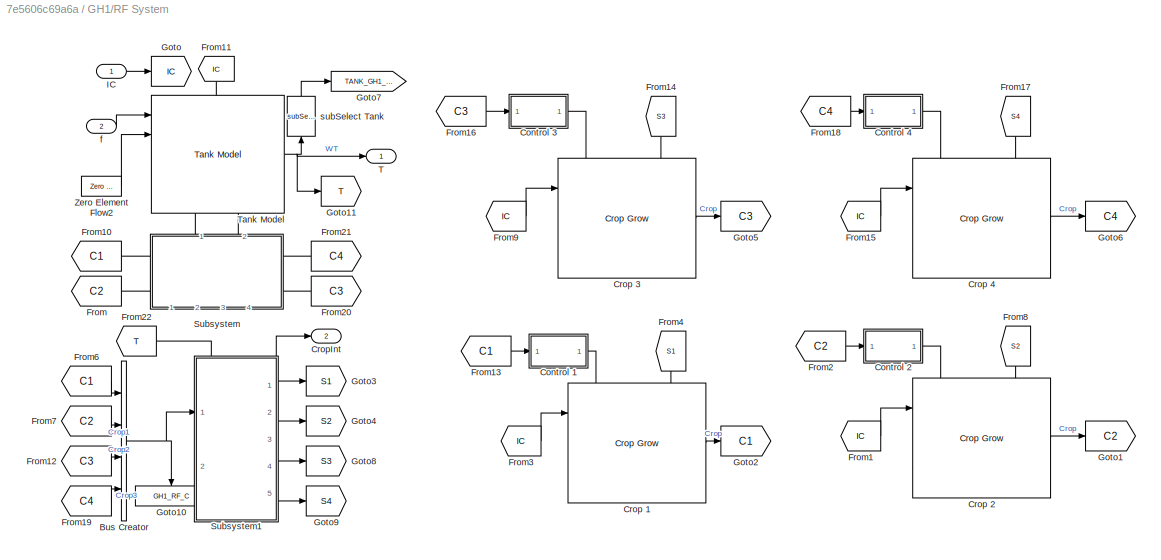
BLOCK [SubSystem] GH1/RF System
  Ports = [2, 2]
  RequestExecContextInheritance = off
BLOCK [BusCreator] GH1/RF System/Bus Creator
  DisplayOption = bar
  InheritFromInputs = on
  Inputs = 4
  Ports = [4, 1]
BLOCK [SubSystem] GH1/RF System/Control 1
  Ports = [1, 1]
  RequestExecContextInheritance = off
BLOCK [Outport] GH1/RF System/Control 1/CC
BLOCK [Inport] GH1/RF System/Control 1/Crop
BLOCK [Reference] GH1/RF System/Control 1/Prune Policy  REF=HORTISIM/Horticulture/Controls/Prune
Policy
  Ports = [1, 1]
  SourceBlock = HORTISIM/Horticulture/Controls/Prune\nPolicy
  SourceProductName = Horti Simulator
BLOCK [Reference] GH1/RF System/Control 1/Scalar2Bus Control Crop  REF=HORTISIM/Other 
Functions/Scalar2Bus
Control Crop
  Ports = [4, 1]
  SourceBlock = HORTISIM/Other \nFunctions/Scalar2Bus\nControl Crop
  SourceProductName = Horti Simulator
  SourceType = SubSystem
BLOCK [Reference] GH1/RF System/Control 1/Start//Stop Window  REF=HORTISIM/Other 
Functions/Start//Stop Window
  Ports = [0, 1]
  SourceBlock = HORTISIM/Other \nFunctions/Start//Stop Window
  SourceProductName = Horti Simulator
BLOCK [SubSystem] GH1/RF System/Control 2
  Ports = [1, 1]
  RequestExecContextInheritance = off
BLOCK [Outport] GH1/RF System/Control 2/CC
BLOCK [Inport] GH1/RF System/Control 2/Crop
BLOCK [Reference] GH1/RF System/Control 2/Prune Policy  REF=HORTISIM/Horticulture/Controls/Prune
Policy
  Ports = [1, 1]
  SourceBlock = HORTISIM/Horticulture/Controls/Prune\nPolicy
  SourceProductName = Horti Simulator
BLOCK [Reference] GH1/RF System/Control 2/Scalar2Bus Control Crop  REF=HORTISIM/Other 
Functions/Scalar2Bus
Control Crop
  Ports = [4, 1]
  SourceBlock = HORTISIM/Other \nFunctions/Scalar2Bus\nControl Crop
  SourceProductName = Horti Simulator
  SourceType = SubSystem
BLOCK [Reference] GH1/RF System/Control 2/Start//Stop Window  REF=HORTISIM/Other 
Functions/Start//Stop Window
  Ports = [0, 1]
  SourceBlock = HORTISIM/Other \nFunctions/Start//Stop Window
  SourceProductName = Horti Simulator
BLOCK [SubSystem] GH1/RF System/Control 3
  Ports = [1, 1]
  RequestExecContextInheritance = off
BLOCK [Outport] GH1/RF System/Control 3/CC
BLOCK [Inport] GH1/RF System/Control 3/Crop
BLOCK [Reference] GH1/RF System/Control 3/Prune Policy  REF=HORTISIM/Horticulture/Controls/Prune
Policy
  Ports = [1, 1]
  SourceBlock = HORTISIM/Horticulture/Controls/Prune\nPolicy
  SourceProductName = Horti Simulator
BLOCK [Reference] GH1/RF System/Control 3/Scalar2Bus Control Crop  REF=HORTISIM/Other 
Functions/Scalar2Bus
Control Crop
  Ports = [4, 1]
  SourceBlock = HORTISIM/Other \nFunctions/Scalar2Bus\nControl Crop
  SourceProductName = Horti Simulator
  SourceType = SubSystem
BLOCK [Reference] GH1/RF System/Control 3/Start//Stop Window  REF=HORTISIM/Other 
Functions/Start//Stop Window
  Ports = [0, 1]
  SourceBlock = HORTISIM/Other \nFunctions/Start//Stop Window
  SourceProductName = Horti Simulator
BLOCK [SubSystem] GH1/RF System/Control 4
  Ports = [1, 1]
  RequestExecContextInheritance = off
BLOCK [Outport] GH1/RF System/Control 4/CC
BLOCK [Inport] GH1/RF System/Control 4/Crop
BLOCK [Reference] GH1/RF System/Control 4/Prune Policy  REF=HORTISIM/Horticulture/Controls/Prune
Policy
  Ports = [1, 1]
  SourceBlock = HORTISIM/Horticulture/Controls/Prune\nPolicy
  SourceProductName = Horti Simulator
BLOCK [Reference] GH1/RF System/Control 4/Scalar2Bus Control Crop  REF=HORTISIM/Other 
Functions/Scalar2Bus
Control Crop
  Ports = [4, 1]
  SourceBlock = HORTISIM/Other \nFunctions/Scalar2Bus\nControl Crop
  SourceProductName = Horti Simulator
  SourceType = SubSystem
BLOCK [Reference] GH1/RF System/Control 4/Start//Stop Window  REF=HORTISIM/Other 
Functions/Start//Stop Window
  Ports = [0, 1]
  SourceBlock = HORTISIM/Other \nFunctions/Start//Stop Window
  SourceProductName = Horti Simulator
BLOCK [Reference] GH1/RF System/Crop 1  REF=HORTISIM/Horticulture/Models/Crop Grow
  Ports = [3, 1]
  SourceBlock = HORTISIM/Horticulture/Models/Crop Grow
  SourceProductName = Horti Simulator
BLOCK [Reference] GH1/RF System/Crop 2  REF=HORTISIM/Horticulture/Models/Crop Grow
  Ports = [3, 1]
  SourceBlock = HORTISIM/Horticulture/Models/Crop Grow
  SourceProductName = Horti Simulator
BLOCK [Reference] GH1/RF System/Crop 3  REF=HORTISIM/Horticulture/Models/Crop Grow
  Ports = [3, 1]
  SourceBlock = HORTISIM/Horticulture/Models/Crop Grow
  SourceProductName = Horti Simulator
BLOCK [Reference] GH1/RF System/Crop 4  REF=HORTISIM/Horticulture/Models/Crop Grow
  Ports = [3, 1]
  SourceBlock = HORTISIM/Horticulture/Models/Crop Grow
  SourceProductName = Horti Simulator
BLOCK [Outport] GH1/RF System/CropInt
  Port = 2
BLOCK [From] GH1/RF System/From
  GotoTag = C2
BLOCK [From] GH1/RF System/From1
  GotoTag = IC
BLOCK [From] GH1/RF System/From10
  GotoTag = C1
BLOCK [From] GH1/RF System/From11
  GotoTag = IC
  NameLocation = left
BLOCK [From] GH1/RF System/From12
  GotoTag = C3
BLOCK [From] GH1/RF System/From13
  GotoTag = C1
BLOCK [From] GH1/RF System/From14
  GotoTag = S3
  NameLocation = left
BLOCK [From] GH1/RF System/From15
  GotoTag = IC
BLOCK [From] GH1/RF System/From16
  GotoTag = C3
BLOCK [From] GH1/RF System/From17
  GotoTag = S4
  NameLocation = left
BLOCK [From] GH1/RF System/From18
  GotoTag = C4
BLOCK [From] GH1/RF System/From19
  GotoTag = C4
BLOCK [From] GH1/RF System/From2
  GotoTag = C2
BLOCK [From] GH1/RF System/From20
  GotoTag = C3
  NameLocation = top
BLOCK [From] GH1/RF System/From21
  GotoTag = C4
  NameLocation = top
BLOCK [From] GH1/RF System/From22
  GotoTag = T
BLOCK [From] GH1/RF System/From3
  GotoTag = IC
BLOCK [From] GH1/RF System/From4
  GotoTag = S1
  NameLocation = left
BLOCK [From] GH1/RF System/From6
  GotoTag = C1
BLOCK [From] GH1/RF System/From7
  GotoTag = C2
BLOCK [From] GH1/RF System/From8
  GotoTag = S2
  NameLocation = left
BLOCK [From] GH1/RF System/From9
  GotoTag = IC
BLOCK [Goto] GH1/RF System/Goto
  GotoTag = IC
BLOCK [Goto] GH1/RF System/Goto1
  GotoTag = C2
BLOCK [Goto] GH1/RF System/Goto10
  GotoTag = GH1_RF_C
  NameLocation = left
  TagVisibility = global
BLOCK [Goto] GH1/RF System/Goto11
  GotoTag = T
BLOCK [Goto] GH1/RF System/Goto2
  GotoTag = C1
BLOCK [Goto] GH1/RF System/Goto3
  GotoTag = S1
BLOCK [Goto] GH1/RF System/Goto4
  GotoTag = S2
BLOCK [Goto] GH1/RF System/Goto5
  GotoTag = C3
BLOCK [Goto] GH1/RF System/Goto6
  GotoTag = C4
BLOCK [Goto] GH1/RF System/Goto7
  GotoTag = TANK_GH1_RF
  TagVisibility = global
BLOCK [Goto] GH1/RF System/Goto8
  GotoTag = S3
BLOCK [Goto] GH1/RF System/Goto9
  GotoTag = S4
BLOCK [Inport] GH1/RF System/IC
BLOCK [SubSystem] GH1/RF System/Subsystem
  NameLocation = right
  PortSchema = {"entries":[{"content":{"sides":[{"content":{"connectorIds":[]},"type":"ConnectorPlacement.EquallySpacedRectSide","uuid":"331b7e07-99e0-48a1-afa9-efd959d86c3c"},{"content":{"connectorIds":["Out1","Out2"],"side":"RIGHT"},"type":"ConnectorPlacement.EquallySpacedRectSide","uuid":"88f560c2-c33d-415c-abbb-9cce13a50e34"},{"content":{"connectorIds":["In1","In2"],"side":"TOP"},"type":"ConnectorPlacement.E...<+408ch>  <repeated x3 — deduplicated; at blocks: Subsystem>
  Ports = [4, 2]
  RequestExecContextInheritance = off
BLOCK [Inport] GH1/RF System/Subsystem/Crop1
  Port = 2
BLOCK [Inport] GH1/RF System/Subsystem/Crop2
BLOCK [Inport] GH1/RF System/Subsystem/Crop3
  Port = 3
BLOCK [Inport] GH1/RF System/Subsystem/Crop4
  Port = 4
BLOCK [Reference] GH1/RF System/Subsystem/CropToTank Parser1  REF=HORTISIM/Other 
Functions/CropToTank Parser
  Ports = [1, 2]
  SourceBlock = HORTISIM/Other \nFunctions/CropToTank Parser
  SourceProductName = Horti Simulator
  SourceType = SubSystem
BLOCK [Reference] GH1/RF System/Subsystem/CropToTank Parser2  REF=HORTISIM/Other 
Functions/CropToTank Parser
  Ports = [1, 2]
  SourceBlock = HORTISIM/Other \nFunctions/CropToTank Parser
  SourceProductName = Horti Simulator
  SourceType = SubSystem
BLOCK [Reference] GH1/RF System/Subsystem/CropToTank Parser3  REF=HORTISIM/Other 
Functions/CropToTank Parser
  Ports = [1, 2]
  SourceBlock = HORTISIM/Other \nFunctions/CropToTank Parser
  SourceProductName = Horti Simulator
  SourceType = SubSystem
BLOCK [Reference] GH1/RF System/Subsystem/CropToTank Parser4  REF=HORTISIM/Other 
Functions/CropToTank Parser
  Ports = [1, 2]
  SourceBlock = HORTISIM/Other \nFunctions/CropToTank Parser
  SourceProductName = Horti Simulator
  SourceType = SubSystem
BLOCK [Outport] GH1/RF System/Subsystem/Out1
BLOCK [Outport] GH1/RF System/Subsystem/Out2
  Port = 2
BLOCK [Concatenate] GH1/RF System/Subsystem/Vector Concatenate
  Mode = Multidimensional array
  NumInputs = 4
  Ports = [4, 1]
BLOCK [Concatenate] GH1/RF System/Subsystem/Vector Concatenate1
  ConcatenateDimension = 2
  Mode = Multidimensional array
  NumInputs = 4
  Ports = [4, 1]
BLOCK [SubSystem] GH1/RF System/Subsystem1
  PortSchema = {"entries":[{"content":{"sides":[{"content":{"connectorIds":["In1"]},"type":"ConnectorPlacement.EquallySpacedRectSide","uuid":"4fbee580-d560-4e1c-bbb5-c1692f8814f1"},{"content":{"connectorIds":["Out1","Out2","Out3","Out4"],"side":"RIGHT"},"type":"ConnectorPlacement.EquallySpacedRectSide","uuid":"81a4a23d-0981-460c-8110-0a6c3dae9561"},{"content":{"connectorIds":["In2","Out5"],"side":"TOP"},"type":"...<+417ch>
  Ports = [2, 5]
  RequestExecContextInheritance = off
BLOCK [SubSystem] GH1/RF System/Subsystem1/Crop Interactio with Climate
  Ports = [4, 1]
  RequestExecContextInheritance = off
BLOCK [Inport] GH1/RF System/Subsystem1/Crop Interactio with Climate/C1
BLOCK [Inport] GH1/RF System/Subsystem1/Crop Interactio with Climate/C2
  Port = 2
BLOCK [Inport] GH1/RF System/Subsystem1/Crop Interactio with Climate/C3
  Port = 3
BLOCK [Inport] GH1/RF System/Subsystem1/Crop Interactio with Climate/C4
  Port = 4
BLOCK [Reference] GH1/RF System/Subsystem1/Crop Interactio with Climate/Crop2ExtArray  REF=HORTISIM/Other 
Functions/Crop2ExtArray
  Ports = [1, 1]
  SourceBlock = HORTISIM/Other \nFunctions/Crop2ExtArray
  SourceProductName = Horti Simulator
  SourceType = SubSystem
BLOCK [Reference] GH1/RF System/Subsystem1/Crop Interactio with Climate/Crop2ExtArray1  REF=HORTISIM/Other 
Functions/Crop2ExtArray
  Ports = [1, 1]
  SourceBlock = HORTISIM/Other \nFunctions/Crop2ExtArray
  SourceProductName = Horti Simulator
  SourceType = SubSystem
BLOCK [Reference] GH1/RF System/Subsystem1/Crop Interactio with Climate/Crop2ExtArray2  REF=HORTISIM/Other 
Functions/Crop2ExtArray
  Ports = [1, 1]
  SourceBlock = HORTISIM/Other \nFunctions/Crop2ExtArray
  SourceProductName = Horti Simulator
  SourceType = SubSystem
BLOCK [Reference] GH1/RF System/Subsystem1/Crop Interactio with Climate/Crop2ExtArray3  REF=HORTISIM/Other 
Functions/Crop2ExtArray
  Ports = [1, 1]
  SourceBlock = HORTISIM/Other \nFunctions/Crop2ExtArray
  SourceProductName = Horti Simulator
  SourceType = SubSystem
BLOCK [Demux] GH1/RF System/Subsystem1/Crop Interactio with Climate/Demux
  Ports = [1, 4]
BLOCK [Outport] GH1/RF System/Subsystem1/Crop Interactio with Climate/Out Bus Element
BLOCK [Outport] GH1/RF System/Subsystem1/Crop Interactio with Climate/Out Bus Element1
BLOCK [Outport] GH1/RF System/Subsystem1/Crop Interactio with Climate/Out Bus Element2
BLOCK [Outport] GH1/RF System/Subsystem1/Crop Interactio with Climate/Out Bus Element3
BLOCK [Sum] GH1/RF System/Subsystem1/Crop Interactio with Climate/Sum
  CollapseDim = 2
  CollapseMode = Specified dimension
  Inputs = +
  Ports = [1, 1]
BLOCK [Concatenate] GH1/RF System/Subsystem1/Crop Interactio with Climate/Vector Concatenate
  ConcatenateDimension = 2
  Mode = Multidimensional array
  NumInputs = 4
  Ports = [4, 1]
BLOCK [Inport] GH1/RF System/Subsystem1/In Bus Element
BLOCK [Inport] GH1/RF System/Subsystem1/In Bus Element1
BLOCK [Inport] GH1/RF System/Subsystem1/In Bus Element2
BLOCK [Inport] GH1/RF System/Subsystem1/In Bus Element3
BLOCK [Outport] GH1/RF System/Subsystem1/Out3
  Port = 5
BLOCK [Outport] GH1/RF System/Subsystem1/Subs1
BLOCK [Outport] GH1/RF System/Subsystem1/Subs2
  Port = 2
BLOCK [Outport] GH1/RF System/Subsystem1/Subs3
  Port = 3
BLOCK [Outport] GH1/RF System/Subsystem1/Subs4
  Port = 4
BLOCK [SubSystem] GH1/RF System/Subsystem1/TankToCrop Parser Several
  Ports = [5, 4]
  RequestExecContextInheritance = off
BLOCK [BusSelector] GH1/RF System/Subsystem1/TankToCrop Parser Several/Bus Selector1
  OutputSignals = R_uptake,Fout
  Ports = [1, 2]
BLOCK [Inport] GH1/RF System/Subsystem1/TankToCrop Parser Several/C1
BLOCK [Inport] GH1/RF System/Subsystem1/TankToCrop Parser Several/C2
  Port = 2
BLOCK [Inport] GH1/RF System/Subsystem1/TankToCrop Parser Several/C3
  Port = 3
BLOCK [Inport] GH1/RF System/Subsystem1/TankToCrop Parser Several/C4
  Port = 4
BLOCK [Gain] GH1/RF System/Subsystem1/TankToCrop Parser Several/Gain
  Gain = -1
BLOCK [Outport] GH1/RF System/Subsystem1/TankToCrop Parser Several/Out Bus Element
BLOCK [Outport] GH1/RF System/Subsystem1/TankToCrop Parser Several/Out Bus Element1
BLOCK [Outport] GH1/RF System/Subsystem1/TankToCrop Parser Several/Out Bus Element2
  Port = 2
BLOCK [Outport] GH1/RF System/Subsystem1/TankToCrop Parser Several/Out Bus Element3
  Port = 2
BLOCK [Outport] GH1/RF System/Subsystem1/TankToCrop Parser Several/Out Bus Element4
  Port = 3
BLOCK [Outport] GH1/RF System/Subsystem1/TankToCrop Parser Several/Out Bus Element5
  Port = 4
BLOCK [Outport] GH1/RF System/Subsystem1/TankToCrop Parser Several/Out Bus Element6
  Port = 3
BLOCK [Outport] GH1/RF System/Subsystem1/TankToCrop Parser Several/Out Bus Element7
  Port = 4
BLOCK [Selector] GH1/RF System/Subsystem1/TankToCrop Parser Several/Selector
  IndexOptions = Index vector (dialog)
  Indices = [1]
  InputPortWidth = 4
  OutputSizes = 1
  Ports = [1, 1]
BLOCK [Selector] GH1/RF System/Subsystem1/TankToCrop Parser Several/Selector1
  IndexOptions = Index vector (dialog)
  Indices = [2]
  InputPortWidth = 4
  OutputSizes = 1
  Ports = [1, 1]
BLOCK [Selector] GH1/RF System/Subsystem1/TankToCrop Parser Several/Selector2
  IndexOptions = Select all,Index vector (dialog)
  Indices = [1],1
  InputPortWidth = 2
  NumberOfDimensions = 2
  OutputSizes = 1,1
  Ports = [1, 1]
BLOCK [Selector] GH1/RF System/Subsystem1/TankToCrop Parser Several/Selector3
  IndexOptions = Select all,Index vector (dialog)
  Indices = [2],2
  InputPortWidth = 2
  NumberOfDimensions = 2
  OutputSizes = 1,1
  Ports = [1, 1]
BLOCK [Selector] GH1/RF System/Subsystem1/TankToCrop Parser Several/Selector4
  IndexOptions = Index vector (dialog)
  Indices = [3]
  InputPortWidth = 4
  OutputSizes = 1
  Ports = [1, 1]
BLOCK [Selector] GH1/RF System/Subsystem1/TankToCrop Parser Several/Selector5
  IndexOptions = Index vector (dialog)
  Indices = [4]
  InputPortWidth = 4
  OutputSizes = 1
  Ports = [1, 1]
BLOCK [Selector] GH1/RF System/Subsystem1/TankToCrop Parser Several/Selector6
  IndexOptions = Select all,Index vector (dialog)
  Indices = [2],3
  InputPortWidth = 2
  NumberOfDimensions = 2
  OutputSizes = 1,1
  Ports = [1, 1]
BLOCK [Selector] GH1/RF System/Subsystem1/TankToCrop Parser Several/Selector7
  IndexOptions = Select all,Index vector (dialog)
  Indices = [2],4
  InputPortWidth = 2
  NumberOfDimensions = 2
  OutputSizes = 1,1
  Ports = [1, 1]
BLOCK [SubSystem] GH1/RF System/Subsystem1/TankToCrop Parser Several/Subsystem
  Ports = [2, 1]
  RequestExecContextInheritance = off
BLOCK [BusSelector] GH1/RF System/Subsystem1/TankToCrop Parser Several/Subsystem/Bus Selector
  OutputSignals = f
  Ports = [1, 1]
BLOCK [BusSelector] GH1/RF System/Subsystem1/TankToCrop Parser Several/Subsystem/Bus Selector2
  OutputSignals = A_v
  Ports = [1, 1]
BLOCK [Product] GH1/RF System/Subsystem1/TankToCrop Parser Several/Subsystem/Divide
  Inputs = */
  Ports = [2, 1]
BLOCK [Inport] GH1/RF System/Subsystem1/TankToCrop Parser Several/Subsystem/In1
BLOCK [Inport] GH1/RF System/Subsystem1/TankToCrop Parser Several/Subsystem/In2
  Port = 2
BLOCK [Outport] GH1/RF System/Subsystem1/TankToCrop Parser Several/Subsystem/Out1
BLOCK [Gain] GH1/RF System/Subsystem1/TankToCrop Parser Several/Subsystem/Water Density [kg//m^3]
  Gain = 997
BLOCK [SubSystem] GH1/RF System/Subsystem1/TankToCrop Parser Several/Subsystem1
  Ports = [2, 1]
  RequestExecContextInheritance = off
BLOCK [BusSelector] GH1/RF System/Subsystem1/TankToCrop Parser Several/Subsystem1/Bus Selector3
  OutputSignals = A_v
  Ports = [1, 1]
BLOCK [BusSelector] GH1/RF System/Subsystem1/TankToCrop Parser Several/Subsystem1/Bus Selector4
  OutputSignals = f
  Ports = [1, 1]
BLOCK [Inport] GH1/RF System/Subsystem1/TankToCrop Parser Several/Subsystem1/C2
  Port = 2
BLOCK [Product] GH1/RF System/Subsystem1/TankToCrop Parser Several/Subsystem1/Divide1
  Inputs = */
  Ports = [2, 1]
BLOCK [Inport] GH1/RF System/Subsystem1/TankToCrop Parser Several/Subsystem1/In1
BLOCK [Outport] GH1/RF System/Subsystem1/TankToCrop Parser Several/Subsystem1/Out1
BLOCK [Gain] GH1/RF System/Subsystem1/TankToCrop Parser Several/Subsystem1/Water Density [kg//m^3]1
  Gain = 997
BLOCK [SubSystem] GH1/RF System/Subsystem1/TankToCrop Parser Several/Subsystem2
  Ports = [2, 1]
  RequestExecContextInheritance = off
BLOCK [BusSelector] GH1/RF System/Subsystem1/TankToCrop Parser Several/Subsystem2/Bus Selector3
  OutputSignals = A_v
  Ports = [1, 1]
BLOCK [BusSelector] GH1/RF System/Subsystem1/TankToCrop Parser Several/Subsystem2/Bus Selector4
  OutputSignals = f
  Ports = [1, 1]
BLOCK [Inport] GH1/RF System/Subsystem1/TankToCrop Parser Several/Subsystem2/C2
  Port = 2
BLOCK [Product] GH1/RF System/Subsystem1/TankToCrop Parser Several/Subsystem2/Divide1
  Inputs = */
  Ports = [2, 1]
BLOCK [Inport] GH1/RF System/Subsystem1/TankToCrop Parser Several/Subsystem2/In1
BLOCK [Outport] GH1/RF System/Subsystem1/TankToCrop Parser Several/Subsystem2/Subs3 
BLOCK [Gain] GH1/RF System/Subsystem1/TankToCrop Parser Several/Subsystem2/Water Density [kg//m^3]1
  Gain = 997
BLOCK [SubSystem] GH1/RF System/Subsystem1/TankToCrop Parser Several/Subsystem3
  Ports = [2, 1]
  RequestExecContextInheritance = off
BLOCK [BusSelector] GH1/RF System/Subsystem1/TankToCrop Parser Several/Subsystem3/Bus Selector3
  OutputSignals = A_v
  Ports = [1, 1]
BLOCK [BusSelector] GH1/RF System/Subsystem1/TankToCrop Parser Several/Subsystem3/Bus Selector4
  OutputSignals = f
  Ports = [1, 1]
BLOCK [Inport] GH1/RF System/Subsystem1/TankToCrop Parser Several/Subsystem3/C2
  Port = 2
BLOCK [Product] GH1/RF System/Subsystem1/TankToCrop Parser Several/Subsystem3/Divide1
  Inputs = */
  Ports = [2, 1]
BLOCK [Inport] GH1/RF System/Subsystem1/TankToCrop Parser Several/Subsystem3/In1
BLOCK [Outport] GH1/RF System/Subsystem1/TankToCrop Parser Several/Subsystem3/Subs4
BLOCK [Gain] GH1/RF System/Subsystem1/TankToCrop Parser Several/Subsystem3/Water Density [kg//m^3]1
  Gain = 997
BLOCK [Inport] GH1/RF System/Subsystem1/TankToCrop Parser Several/WT
  Port = 5
BLOCK [Inport] GH1/RF System/Subsystem1/WT
  NameLocation = left
  Port = 2
BLOCK [Outport] GH1/RF System/T
BLOCK [Reference] GH1/RF System/Tank Model  REF=HORTISIM/Aquaculture/Models/Tank Model
  Ports = [5, 1]
  SourceBlock = HORTISIM/Aquaculture/Models/Tank Model
  SourceProductName = Horti Simulator
BLOCK [Reference] GH1/RF System/Zero Element Flow2  REF=HORTISIM/Other 
Functions/Zero Element Flow
  Ports = [0, 1]
  SourceBlock = HORTISIM/Other \nFunctions/Zero Element Flow
  SourceProductName = Horti Simulator
  SourceType = SubSystem
BLOCK [Inport] GH1/RF System/f
  Port = 2
BLOCK [Reference] GH1/RF System/subSelect Tank  REF=HORTISIM/Other 
Functions/subSelect 
Tank
  NameLocation = right
  Ports = [1, 1]
  SourceBlock = HORTISIM/Other \nFunctions/subSelect \nTank
  SourceProductName = Horti Simulator
  SourceType = SubSystem
BLOCK [SubSystem] GH1/Subsystem
  Ports = [4, 1]
  RequestExecContextInheritance = off
BLOCK [Outport] GH1/Subsystem/CoCl
BLOCK [Reference] GH1/Subsystem/Crop2ExtArray  REF=HORTISIM/Other 
Functions/Crop2ExtArray
  Ports = [1, 1]
  SourceBlock = HORTISIM/Other \nFunctions/Crop2ExtArray
  SourceProductName = Horti Simulator
  SourceType = SubSystem
BLOCK [Reference] GH1/Subsystem/Crop2ExtArray1  REF=HORTISIM/Other 
Functions/Crop2ExtArray
  Ports = [1, 1]
  SourceBlock = HORTISIM/Other \nFunctions/Crop2ExtArray
  SourceProductName = Horti Simulator
  SourceType = SubSystem
BLOCK [Inport] GH1/Subsystem/In1
BLOCK [Inport] GH1/Subsystem/In2
  Port = 2
BLOCK [Inport] GH1/Subsystem/In3
  Port = 3
BLOCK [Inport] GH1/Subsystem/In4
  Port = 4
BLOCK [Reference] GH1/Subsystem/MatrixExt2Bus  REF=HORTISIM/Other 
Functions/MatrixExt2Bus
  Ports = [1, 1]
  SourceBlock = HORTISIM/Other \nFunctions/MatrixExt2Bus
  SourceProductName = Horti Simulator
  SourceType = SubSystem
BLOCK [Reference] GH1/Subsystem/Tank2ExtArray  REF=HORTISIM/Other 
Functions/Tank2ExtArray
  Ports = [1, 1]
  SourceBlock = HORTISIM/Other \nFunctions/Tank2ExtArray
  SourceProductName = Horti Simulator
  SourceType = SubSystem
BLOCK [Reference] GH1/Subsystem/Tank2ExtArray1  REF=HORTISIM/Other 
Functions/Tank2ExtArray
  Ports = [1, 1]
  SourceBlock = HORTISIM/Other \nFunctions/Tank2ExtArray
  SourceProductName = Horti Simulator
  SourceType = SubSystem
BLOCK [Concatenate] GH1/Subsystem/Vector Concatenate
  ConcatenateDimension = 2
  Mode = Multidimensional array
  NumInputs = 4
  Ports = [4, 1]
BLOCK [SubSystem] GH1/Subsystem1
  NameLocation = left
  Ports = [2, 1]
  RequestExecContextInheritance = off
BLOCK [BusSelector] GH1/Subsystem1/Bus Selector
  OutputSignals = Drainge
  Ports = [1, 1]
BLOCK [BusSelector] GH1/Subsystem1/Bus Selector1
  OutputSignals = Drainge
  Ports = [1, 1]
BLOCK [Inport] GH1/Subsystem1/In1
BLOCK [Inport] GH1/Subsystem1/In2
  Port = 2
BLOCK [Outport] GH1/Subsystem1/Out1
BLOCK [SubSystem] GH1/Subsystem1/Subsystem3
  Ports = [2, 1]
  RequestExecContextInheritance = off
BLOCK [Abs] GH1/Subsystem1/Subsystem3/Abs
  SaturateOnIntegerOverflow = off
  ZeroCross = off
BLOCK [BusCreator] GH1/Subsystem1/Subsystem3/Bus Creator
  DisplayOption = bar
  InheritFromInputs = on
  Inputs = 3
  NonVirtualBus = on
  OutDataTypeStr = Bus: FLOW
  Ports = [3, 1]
BLOCK [BusSelector] GH1/Subsystem1/Subsystem3/Bus Selector
  OutputSignals = f
  Ports = [1, 1]
BLOCK [BusSelector] GH1/Subsystem1/Subsystem3/Bus Selector1
  OutputSignals = f
  Ports = [1, 1]
BLOCK [From] GH1/Subsystem1/Subsystem3/From
  GotoTag = f1
BLOCK [From] GH1/Subsystem1/Subsystem3/From1
  GotoTag = f2
BLOCK [From] GH1/Subsystem1/Subsystem3/From2
  GotoTag = F1
BLOCK [From] GH1/Subsystem1/Subsystem3/From3
  GotoTag = F2
BLOCK [From] GH1/Subsystem1/Subsystem3/From4
  GotoTag = F1
BLOCK [Goto] GH1/Subsystem1/Subsystem3/Goto
  GotoTag = f1
BLOCK [Goto] GH1/Subsystem1/Subsystem3/Goto1
  GotoTag = F1
BLOCK [Goto] GH1/Subsystem1/Subsystem3/Goto2
  GotoTag = F2
BLOCK [Goto] GH1/Subsystem1/Subsystem3/Goto3
  GotoTag = f2
BLOCK [If] GH1/Subsystem1/Subsystem3/If
  IfExpression = u1 <1e-8
  Ports = [1, 2]
  ZeroCross = off
BLOCK [SubSystem] GH1/Subsystem1/Subsystem3/If Action Subsystem
  Ports = [1, 3, 0, 0, 0, 0, 0, 1]
  RequestExecContextInheritance = off
  TreatAsAtomicUnit = on
BLOCK [ActionPort] GH1/Subsystem1/Subsystem3/If Action Subsystem/Action Port
  ActionPortLabel = if(u1 <1e-8)
BLOCK [BusSelector] GH1/Subsystem1/Subsystem3/If Action Subsystem/Bus Selector
  OutputSignals = f,T,X
  Ports = [1, 3]
BLOCK [Inport] GH1/Subsystem1/Subsystem3/If Action Subsystem/In1
BLOCK [Outport] GH1/Subsystem1/Subsystem3/If Action Subsystem/T
  Port = 2
BLOCK [Outport] GH1/Subsystem1/Subsystem3/If Action Subsystem/X
  Port = 3
BLOCK [Outport] GH1/Subsystem1/Subsystem3/If Action Subsystem/f
BLOCK [SubSystem] GH1/Subsystem1/Subsystem3/If Action Subsystem1
  Ports = [2, 3, 0, 0, 0, 0, 0, 1]
  RequestExecContextInheritance = off
  TreatAsAtomicUnit = on
BLOCK [ActionPort] GH1/Subsystem1/Subsystem3/If Action Subsystem1/Action Port
  ActionPortLabel = else
BLOCK [BusSelector] GH1/Subsystem1/Subsystem3/If Action Subsystem1/Bus Selector
  OutputSignals = f,T,X
  Ports = [1, 3]
BLOCK [BusSelector] GH1/Subsystem1/Subsystem3/If Action Subsystem1/Bus Selector1
  OutputSignals = f,T,X
  Ports = [1, 3]
BLOCK [Product] GH1/Subsystem1/Subsystem3/If Action Subsystem1/Divide
  Inputs = */
  Ports = [2, 1]
BLOCK [Product] GH1/Subsystem1/Subsystem3/If Action Subsystem1/Divide1
  Inputs = */
  Ports = [2, 1]
BLOCK [From] GH1/Subsystem1/Subsystem3/If Action Subsystem1/From
  GotoTag = fT
BLOCK [From] GH1/Subsystem1/Subsystem3/If Action Subsystem1/From1
  GotoTag = p1
BLOCK [From] GH1/Subsystem1/Subsystem3/If Action Subsystem1/From2
  GotoTag = T1
BLOCK [From] GH1/Subsystem1/Subsystem3/If Action Subsystem1/From3
  GotoTag = p2
BLOCK [From] GH1/Subsystem1/Subsystem3/If Action Subsystem1/From4
  GotoTag = T2
BLOCK [From] GH1/Subsystem1/Subsystem3/If Action Subsystem1/From5
  GotoTag = p1
BLOCK [From] GH1/Subsystem1/Subsystem3/If Action Subsystem1/From6
  GotoTag = X1
BLOCK [From] GH1/Subsystem1/Subsystem3/If Action Subsystem1/From7
  GotoTag = p2
BLOCK [From] GH1/Subsystem1/Subsystem3/If Action Subsystem1/From8
  GotoTag = X2
BLOCK [Goto] GH1/Subsystem1/Subsystem3/If Action Subsystem1/Goto
  GotoTag = p1
BLOCK [Goto] GH1/Subsystem1/Subsystem3/If Action Subsystem1/Goto1
  GotoTag = p2
BLOCK [Goto] GH1/Subsystem1/Subsystem3/If Action Subsystem1/Goto2
  GotoTag = fT
BLOCK [Goto] GH1/Subsystem1/Subsystem3/If Action Subsystem1/Goto3
  GotoTag = T1
BLOCK [Goto] GH1/Subsystem1/Subsystem3/If Action Subsystem1/Goto4
  GotoTag = X1
BLOCK [Goto] GH1/Subsystem1/Subsystem3/If Action Subsystem1/Goto5
  GotoTag = T2
BLOCK [Goto] GH1/Subsystem1/Subsystem3/If Action Subsystem1/Goto6
  GotoTag = X2
BLOCK [Inport] GH1/Subsystem1/Subsystem3/If Action Subsystem1/In1
BLOCK [Inport] GH1/Subsystem1/Subsystem3/If Action Subsystem1/In2
  Port = 2
BLOCK [Product] GH1/Subsystem1/Subsystem3/If Action Subsystem1/Product
  Ports = [2, 1]
BLOCK [Product] GH1/Subsystem1/Subsystem3/If Action Subsystem1/Product1
  Ports = [2, 1]
BLOCK [Product] GH1/Subsystem1/Subsystem3/If Action Subsystem1/Product2
  Ports = [2, 1]
BLOCK [Product] GH1/Subsystem1/Subsystem3/If Action Subsystem1/Product3
  Ports = [2, 1]
BLOCK [Sum] GH1/Subsystem1/Subsystem3/If Action Subsystem1/Sum
  Ports = [2, 1]
BLOCK [Sum] GH1/Subsystem1/Subsystem3/If Action Subsystem1/Sum1
  Inputs = |++
  Ports = [2, 1]
BLOCK [Sum] GH1/Subsystem1/Subsystem3/If Action Subsystem1/Sum2
  Inputs = |++
  Ports = [2, 1]
BLOCK [Outport] GH1/Subsystem1/Subsystem3/If Action Subsystem1/T
  Port = 2
BLOCK [Outport] GH1/Subsystem1/Subsystem3/If Action Subsystem1/X
  Port = 3
BLOCK [Outport] GH1/Subsystem1/Subsystem3/If Action Subsystem1/f
BLOCK [Inport] GH1/Subsystem1/Subsystem3/In1
BLOCK [Inport] GH1/Subsystem1/Subsystem3/In2
  Port = 2
BLOCK [Merge] GH1/Subsystem1/Subsystem3/Merge
  Ports = [2, 1]
BLOCK [Merge] GH1/Subsystem1/Subsystem3/Merge1
  Ports = [2, 1]
BLOCK [Merge] GH1/Subsystem1/Subsystem3/Merge2
  Ports = [2, 1]
BLOCK [Outport] GH1/Subsystem1/Subsystem3/Out1
BLOCK [Sum] GH1/Subsystem1/Subsystem3/Sum
  Inputs = |++
  Ports = [2, 1]
BLOCK [Reference] GH1/Zero Element Flow  REF=HORTISIM/Other 
Functions/Zero Element Flow
  Ports = [0, 1]
  SourceBlock = HORTISIM/Other \nFunctions/Zero Element Flow
  SourceProductName = Horti Simulator
  SourceType = SubSystem
BLOCK [Reference] GH1/subSelect Tank  REF=HORTISIM/Other 
Functions/subSelect 
Tank
  Ports = [1, 1]
  SourceBlock = HORTISIM/Other \nFunctions/subSelect \nTank
  SourceProductName = Horti Simulator
  SourceType = SubSystem
BLOCK [SubSystem] GH2
  PortSchema = {"entries":[{"content":{"sides":[{"content":{"connectorIds":["In1"]},"type":"ConnectorPlacement.EquallySpacedRectSide","uuid":"f96e7fae-faa6-4c45-94ca-623160b74f18"},{"content":{"connectorIds":["Out1","Out2"],"side":"RIGHT"},"type":"ConnectorPlacement.EquallySpacedRectSide","uuid":"cb53bd10-123e-4148-bfa4-80436b7b153d"},{"content":{"connectorIds":["In2"],"side":"TOP"},"type":"ConnectorPlacement.Eq...<+396ch>
  Ports = [2, 2]
  RequestExecContextInheritance = off
BLOCK [Outport] GH2/CL_GH2
  Port = 2
BLOCK [Reference] GH2/Climate Model  REF=HORTISIM/Climate/Models/Climate Model
  Ports = [3, 1]
  SourceBlock = HORTISIM/Climate/Models/Climate Model
  SourceProductName = Horti Simulator
BLOCK [DiscretePulseGenerator] GH2/Divisor Schedule
  Period = 7
  PhaseDelay = 8/24-h0
  Ports = [0, 1]
  PulseType = Time based
  PulseWidth = 100/7
BLOCK [Outport] GH2/Drainge
BLOCK [Inport] GH2/EC
  Port = 2
BLOCK [SubSystem] GH2/Flow2Divisor
  Ports = [2, 2]
  RequestExecContextInheritance = off
BLOCK [BusCreator] GH2/Flow2Divisor/Bus Creator
  DisplayOption = bar
  InheritFromInputs = on
  Inputs = 3
  NonVirtualBus = on
  OutDataTypeStr = Bus: FLOW
  Ports = [3, 1]
BLOCK [BusCreator] GH2/Flow2Divisor/Bus Creator1
  DisplayOption = bar
  InheritFromInputs = on
  Inputs = 3
  NonVirtualBus = on
  OutDataTypeStr = Bus: FLOW
  Ports = [3, 1]
BLOCK [BusSelector] GH2/Flow2Divisor/Bus Selector
  OutputSignals = f,T,X
  Ports = [1, 3]
BLOCK [Constant] GH2/Flow2Divisor/Constant
BLOCK [Inport] GH2/Flow2Divisor/Fo2
BLOCK [From] GH2/Flow2Divisor/From
  GotoTag = f1
BLOCK [From] GH2/Flow2Divisor/From1
  GotoTag = T
BLOCK [From] GH2/Flow2Divisor/From2
  GotoTag = X
BLOCK [From] GH2/Flow2Divisor/From3
  GotoTag = f2
BLOCK [From] GH2/Flow2Divisor/From4
  GotoTag = T
BLOCK [From] GH2/Flow2Divisor/From5
  GotoTag = X
BLOCK [Goto] GH2/Flow2Divisor/Goto
  GotoTag = f1
BLOCK [Goto] GH2/Flow2Divisor/Goto1
  GotoTag = T
BLOCK [Goto] GH2/Flow2Divisor/Goto2
  GotoTag = X
BLOCK [Goto] GH2/Flow2Divisor/Goto3
  GotoTag = f2
BLOCK [Inport] GH2/Flow2Divisor/In1
  Port = 2
BLOCK [Sum] GH2/Flow2Divisor/Minus
  IconShape = rectangular
  Inputs = +-
  Ports = [2, 1]
BLOCK [Outport] GH2/Flow2Divisor/Out1
BLOCK [Outport] GH2/Flow2Divisor/Out2
  Port = 2
BLOCK [Product] GH2/Flow2Divisor/Product
  Ports = [2, 1]
BLOCK [Product] GH2/Flow2Divisor/Product1
  Ports = [2, 1]
BLOCK [Inport] GH2/Fo2
BLOCK [From] GH2/From
  GotoTag = f1
BLOCK [From] GH2/From1
  GotoTag = Climate_GH2
BLOCK [From] GH2/From14
  GotoTag = T2
BLOCK [From] GH2/From15
  GotoTag = T1
BLOCK [From] GH2/From19
  GotoTag = T1
BLOCK [From] GH2/From3
  GotoTag = Climate_GH2
BLOCK [From] GH2/From4
  GotoTag = f2
BLOCK [From] GH2/From5
  GotoTag = C_RF
  NameLocation = left
BLOCK [From] GH2/From6
  GotoTag = C_TRAD
  NameLocation = left
BLOCK [From] GH2/From7
  GotoTag = T2
BLOCK [Goto] GH2/Goto
  GotoTag = C_TRAD
BLOCK [Goto] GH2/Goto1
  GotoTag = Climate_GH2
BLOCK [Goto] GH2/Goto2
  GotoTag = T2
BLOCK [Goto] GH2/Goto3
  GotoTag = f1
BLOCK [Goto] GH2/Goto4
  GotoTag = f2
BLOCK [Goto] GH2/Goto5
  GotoTag = C_RF
BLOCK [Goto] GH2/Goto6
  GotoTag = T1
BLOCK [SubSystem] GH2/Mezcla Calor, Vapor de agua y CO2 desde los tanques de agua y la plantación
  PortSchema = {"entries":[{"content":{"sides":[{"content":{"connectorIds":["In1","In2"]},"type":"ConnectorPlacement.EquallySpacedRectSide","uuid":"19434035-201c-4d1e-b085-add0f5d76683"},{"content":{"connectorIds":["Out1"],"side":"RIGHT"},"type":"ConnectorPlacement.EquallySpacedRectSide","uuid":"bba1eca2-c9f3-4d99-84f3-6a563e445b18"},{"content":{"connectorIds":["In3","In4"],"side":"TOP"},"type":"ConnectorPlaceme...<+257ch>
  Ports = [4, 1]
  RequestExecContextInheritance = off
BLOCK [Outport] GH2/Mezcla Calor, Vapor de agua y CO2 desde los tanques de agua y la plantación/CoCl
BLOCK [SubSystem] GH2/Mezcla Calor, Vapor de agua y CO2 desde los tanques de agua y la plantación/Crop2ExtArray
  AncestorBlock = HORTISIM/Other \nFunctions/Crop2ExtArray
  Ports = [1, 1]
  RequestExecContextInheritance = off
BLOCK [BusSelector] GH2/Mezcla Calor, Vapor de agua y CO2 desde los tanques de agua y la plantación/Crop2ExtArray/Bus Selector
  OutputSignals = HeatVars.QV,HeatVars.QT,A_v,CC
  Ports = [1, 4]
BLOCK [Inport] GH2/Mezcla Calor, Vapor de agua y CO2 desde los tanques de agua y la plantación/Crop2ExtArray/In1
BLOCK [Outport] GH2/Mezcla Calor, Vapor de agua y CO2 desde los tanques de agua y la plantación/Crop2ExtArray/Out1
BLOCK [Scope] GH2/Mezcla Calor, Vapor de agua y CO2 desde los tanques de agua y la plantación/Crop2ExtArray/Scope
  Floating = off
  NumInputPorts = 1
  Ports = [1]
  ScopeSpecificationString = Simulink.scopes.TimeScopeBlockCfg('CurrentConfiguration', extmgr.ConfigurationSet(extmgr.Configuration('Core','General UI',true),extmgr.Configuration('Core','Source UI',true),extmgr.Configuration('Sources','WiredSimulink',true,'DataLoggingVariableName','ScopeData4'),extmgr.Configuration('Visuals','Time Domain',true,'SerializedDisplays',{struct('MinYLimReal','-0.00104','MaxYLimReal','0.01415','YLab...<+1407ch>
BLOCK [Concatenate] GH2/Mezcla Calor, Vapor de agua y CO2 desde los tanques de agua y la plantación/Crop2ExtArray/Vector Concatenate
  Mode = Multidimensional array
  NumInputs = 4
  Ports = [4, 1]
BLOCK [Reference] GH2/Mezcla Calor, Vapor de agua y CO2 desde los tanques de agua y la plantación/Crop2ExtArray1  REF=HORTISIM/Other 
Functions/Crop2ExtArray
  Ports = [1, 1]
  SourceBlock = HORTISIM/Other \nFunctions/Crop2ExtArray
  SourceProductName = Horti Simulator
  SourceType = SubSystem
BLOCK [Inport] GH2/Mezcla Calor, Vapor de agua y CO2 desde los tanques de agua y la plantación/In1
  Port = 4
BLOCK [Inport] GH2/Mezcla Calor, Vapor de agua y CO2 desde los tanques de agua y la plantación/In2
BLOCK [Inport] GH2/Mezcla Calor, Vapor de agua y CO2 desde los tanques de agua y la plantación/In3
  Port = 2
BLOCK [Inport] GH2/Mezcla Calor, Vapor de agua y CO2 desde los tanques de agua y la plantación/In4
  Port = 3
BLOCK [SubSystem] GH2/Mezcla Calor, Vapor de agua y CO2 desde los tanques de agua y la plantación/MatrixExt2Bus
  AncestorBlock = HORTISIM/Other \nFunctions/MatrixExt2Bus
  Ports = [1, 1]
  RequestExecContextInheritance = off
BLOCK [Outport] GH2/Mezcla Calor, Vapor de agua y CO2 desde los tanques de agua y la plantación/MatrixExt2Bus/CoCl
BLOCK [Demux] GH2/Mezcla Calor, Vapor de agua y CO2 desde los tanques de agua y la plantación/MatrixExt2Bus/Demux
  Ports = [1, 4]
BLOCK [Inport] GH2/Mezcla Calor, Vapor de agua y CO2 desde los tanques de agua y la plantación/MatrixExt2Bus/In1
BLOCK [Reference] GH2/Mezcla Calor, Vapor de agua y CO2 desde los tanques de agua y la plantación/MatrixExt2Bus/Scalar2Bus Ext Signal   REF=HORTISIM/Other 
Functions/Scalar2Bus
Ext Signal 

  Ports = [4, 1]
  SourceBlock = HORTISIM/Other \nFunctions/Scalar2Bus\nExt Signal
  SourceProductName = Horti Simulator
  SourceType = SubSystem
BLOCK [Scope] GH2/Mezcla Calor, Vapor de agua y CO2 desde los tanques de agua y la plantación/MatrixExt2Bus/Scope
  Floating = off
  NumInputPorts = 1
  Ports = [1]
  ScopeSpecificationString = Simulink.scopes.TimeScopeBlockCfg('CurrentConfiguration', extmgr.ConfigurationSet(extmgr.Configuration('Core','General UI',true),extmgr.Configuration('Core','Source UI',true),extmgr.Configuration('Sources','WiredSimulink',true,'DataLoggingVariableName','ScopeData2'),extmgr.Configuration('Visuals','Time Domain',true,'SerializedDisplays',{struct('MinYLimReal','-65651.62334','MaxYLimReal','720427.763...<+1419ch>
BLOCK [Scope] GH2/Mezcla Calor, Vapor de agua y CO2 desde los tanques de agua y la plantación/MatrixExt2Bus/Scope1
  Floating = off
  NumInputPorts = 1
  Ports = [1]
  ScopeSpecificationString = Simulink.scopes.TimeScopeBlockCfg('CurrentConfiguration', extmgr.ConfigurationSet(extmgr.Configuration('Core','General UI',true),extmgr.Configuration('Core','Source UI',true),extmgr.Configuration('Sources','WiredSimulink',true,'DataLoggingVariableName','ScopeData3'),extmgr.Configuration('Visuals','Time Domain',true,'SerializedDisplays',{struct('MinYLimReal','42.5','MaxYLimReal','242.5','YLabelReal...<+1344ch>
BLOCK [Sum] GH2/Mezcla Calor, Vapor de agua y CO2 desde los tanques de agua y la plantación/MatrixExt2Bus/Sum of Elements
  CollapseDim = 2
  CollapseMode = Specified dimension
  IconShape = rectangular
  Inputs = +
  Ports = [1, 1]
BLOCK [SubSystem] GH2/Mezcla Calor, Vapor de agua y CO2 desde los tanques de agua y la plantación/Tank2ExtArray
  AncestorBlock = HORTISIM/Other \nFunctions/Tank2ExtArray
  Ports = [1, 1]
  RequestExecContextInheritance = off
BLOCK [BusSelector] GH2/Mezcla Calor, Vapor de agua y CO2 desde los tanques de agua y la plantación/Tank2ExtArray/Bus Selector
  OutputSignals = QV,QT,A_t
  Ports = [1, 3]
BLOCK [Constant] GH2/Mezcla Calor, Vapor de agua y CO2 desde los tanques de agua y la plantación/Tank2ExtArray/Constant
  Value = 0
BLOCK [Inport] GH2/Mezcla Calor, Vapor de agua y CO2 desde los tanques de agua y la plantación/Tank2ExtArray/In1
BLOCK [Outport] GH2/Mezcla Calor, Vapor de agua y CO2 desde los tanques de agua y la plantación/Tank2ExtArray/Out1
BLOCK [Scope] GH2/Mezcla Calor, Vapor de agua y CO2 desde los tanques de agua y la plantación/Tank2ExtArray/Scope
  Floating = off
  NumInputPorts = 1
  Ports = [1]
  ScopeSpecificationString = Simulink.scopes.TimeScopeBlockCfg('CurrentConfiguration', extmgr.ConfigurationSet(extmgr.Configuration('Core','General UI',true),extmgr.Configuration('Core','Source UI',true),extmgr.Configuration('Sources','WiredSimulink',true,'DataLoggingVariableName','ScopeData5'),extmgr.Configuration('Visuals','Time Domain',true,'SerializedDisplays',{struct('MinYLimReal','-27005.26568','MaxYLimReal','332893.59'...<+1429ch>
BLOCK [Concatenate] GH2/Mezcla Calor, Vapor de agua y CO2 desde los tanques de agua y la plantación/Tank2ExtArray/Vector Concatenate
  Mode = Multidimensional array
  NumInputs = 4
  Ports = [4, 1]
BLOCK [Reference] GH2/Mezcla Calor, Vapor de agua y CO2 desde los tanques de agua y la plantación/Tank2ExtArray1  REF=HORTISIM/Other 
Functions/Tank2ExtArray
  Ports = [1, 1]
  SourceBlock = HORTISIM/Other \nFunctions/Tank2ExtArray
  SourceProductName = Horti Simulator
  SourceType = SubSystem
BLOCK [Concatenate] GH2/Mezcla Calor, Vapor de agua y CO2 desde los tanques de agua y la plantación/Vector Concatenate
  ConcatenateDimension = 2
  Mode = Multidimensional array
  NumInputs = 4
  Ports = [4, 1]
BLOCK [SubSystem] GH2/Null Element
  Ports = [0, 1]
  RequestExecContextInheritance = off
BLOCK [Outport] GH2/Null Element/CoCl
BLOCK [Reference] GH2/Null Element/Scalar2Bus Control Climate  REF=HORTISIM/Other 
Functions/Scalar2Bus 
Control Climate
  Ports = [4, 1]
  SourceBlock = HORTISIM/Other \nFunctions/Scalar2Bus \nControl Climate
  SourceProductName = Horti Simulator
  SourceType = SubSystem
BLOCK [Reference] GH2/Null Element/Zero Element Screen  REF=HORTISIM/Other 
Functions/Zero Element
Screen
  Ports = [0, 1]
  SourceBlock = HORTISIM/Other \nFunctions/Zero Element\nScreen
  SourceProductName = Horti Simulator
  SourceType = SubSystem
BLOCK [Reference] GH2/Null Element/Zero Element Windows  REF=HORTISIM/Other 
Functions/Zero Element
Windows
  Ports = [0, 1]
  SourceBlock = HORTISIM/Other \nFunctions/Zero Element\nWindows
  SourceProductName = Horti Simulator
  SourceType = SubSystem
BLOCK [SubSystem] GH2/RF System
  Ports = [2, 2]
  RequestExecContextInheritance = off
BLOCK [BusCreator] GH2/RF System/Bus Creator
  DisplayOption = bar
  InheritFromInputs = on
  Inputs = 4
  Ports = [4, 1]
BLOCK [SubSystem] GH2/RF System/Control 1
  Ports = [1, 1]
  RequestExecContextInheritance = off
BLOCK [Outport] GH2/RF System/Control 1/CC
BLOCK [Inport] GH2/RF System/Control 1/Crop
BLOCK [Reference] GH2/RF System/Control 1/Prune Policy  REF=HORTISIM/Horticulture/Controls/Prune
Policy
  Ports = [1, 1]
  SourceBlock = HORTISIM/Horticulture/Controls/Prune\nPolicy
  SourceProductName = Horti Simulator
BLOCK [Reference] GH2/RF System/Control 1/Scalar2Bus Control Crop  REF=HORTISIM/Other 
Functions/Scalar2Bus
Control Crop
  Ports = [4, 1]
  SourceBlock = HORTISIM/Other \nFunctions/Scalar2Bus\nControl Crop
  SourceProductName = Horti Simulator
  SourceType = SubSystem
BLOCK [Reference] GH2/RF System/Control 1/Start//Stop Window  REF=HORTISIM/Other 
Functions/Start//Stop Window
  Ports = [0, 1]
  SourceBlock = HORTISIM/Other \nFunctions/Start//Stop Window
  SourceProductName = Horti Simulator
BLOCK [SubSystem] GH2/RF System/Control 2
  Ports = [1, 1]
  RequestExecContextInheritance = off
BLOCK [Outport] GH2/RF System/Control 2/CC
BLOCK [Inport] GH2/RF System/Control 2/Crop
BLOCK [Reference] GH2/RF System/Control 2/Prune Policy  REF=HORTISIM/Horticulture/Controls/Prune
Policy
  Ports = [1, 1]
  SourceBlock = HORTISIM/Horticulture/Controls/Prune\nPolicy
  SourceProductName = Horti Simulator
BLOCK [Reference] GH2/RF System/Control 2/Scalar2Bus Control Crop  REF=HORTISIM/Other 
Functions/Scalar2Bus
Control Crop
  Ports = [4, 1]
  SourceBlock = HORTISIM/Other \nFunctions/Scalar2Bus\nControl Crop
  SourceProductName = Horti Simulator
  SourceType = SubSystem
BLOCK [Reference] GH2/RF System/Control 2/Start//Stop Window  REF=HORTISIM/Other 
Functions/Start//Stop Window
  Ports = [0, 1]
  SourceBlock = HORTISIM/Other \nFunctions/Start//Stop Window
  SourceProductName = Horti Simulator
BLOCK [SubSystem] GH2/RF System/Control 3
  Ports = [1, 1]
  RequestExecContextInheritance = off
BLOCK [Outport] GH2/RF System/Control 3/CC
BLOCK [Inport] GH2/RF System/Control 3/Crop
BLOCK [Reference] GH2/RF System/Control 3/Prune Policy  REF=HORTISIM/Horticulture/Controls/Prune
Policy
  Ports = [1, 1]
  SourceBlock = HORTISIM/Horticulture/Controls/Prune\nPolicy
  SourceProductName = Horti Simulator
BLOCK [Reference] GH2/RF System/Control 3/Scalar2Bus Control Crop  REF=HORTISIM/Other 
Functions/Scalar2Bus
Control Crop
  Ports = [4, 1]
  SourceBlock = HORTISIM/Other \nFunctions/Scalar2Bus\nControl Crop
  SourceProductName = Horti Simulator
  SourceType = SubSystem
BLOCK [Reference] GH2/RF System/Control 3/Start//Stop Window  REF=HORTISIM/Other 
Functions/Start//Stop Window
  Ports = [0, 1]
  SourceBlock = HORTISIM/Other \nFunctions/Start//Stop Window
  SourceProductName = Horti Simulator
BLOCK [SubSystem] GH2/RF System/Control 4
  Ports = [1, 1]
  RequestExecContextInheritance = off
BLOCK [Outport] GH2/RF System/Control 4/CC
BLOCK [Inport] GH2/RF System/Control 4/Crop
BLOCK [Reference] GH2/RF System/Control 4/Prune Policy  REF=HORTISIM/Horticulture/Controls/Prune
Policy
  Ports = [1, 1]
  SourceBlock = HORTISIM/Horticulture/Controls/Prune\nPolicy
  SourceProductName = Horti Simulator
BLOCK [Reference] GH2/RF System/Control 4/Scalar2Bus Control Crop  REF=HORTISIM/Other 
Functions/Scalar2Bus
Control Crop
  Ports = [4, 1]
  SourceBlock = HORTISIM/Other \nFunctions/Scalar2Bus\nControl Crop
  SourceProductName = Horti Simulator
  SourceType = SubSystem
BLOCK [Reference] GH2/RF System/Control 4/Start//Stop Window  REF=HORTISIM/Other 
Functions/Start//Stop Window
  Ports = [0, 1]
  SourceBlock = HORTISIM/Other \nFunctions/Start//Stop Window
  SourceProductName = Horti Simulator
BLOCK [Reference] GH2/RF System/Crop 1  REF=HORTISIM/Horticulture/Models/Crop Grow
  Ports = [3, 1]
  SourceBlock = HORTISIM/Horticulture/Models/Crop Grow
  SourceProductName = Horti Simulator
BLOCK [Reference] GH2/RF System/Crop 2  REF=HORTISIM/Horticulture/Models/Crop Grow
  Ports = [3, 1]
  SourceBlock = HORTISIM/Horticulture/Models/Crop Grow
  SourceProductName = Horti Simulator
BLOCK [Reference] GH2/RF System/Crop 3  REF=HORTISIM/Horticulture/Models/Crop Grow
  Ports = [3, 1]
  SourceBlock = HORTISIM/Horticulture/Models/Crop Grow
  SourceProductName = Horti Simulator
BLOCK [Reference] GH2/RF System/Crop 4  REF=HORTISIM/Horticulture/Models/Crop Grow
  Ports = [3, 1]
  SourceBlock = HORTISIM/Horticulture/Models/Crop Grow
  SourceProductName = Horti Simulator
BLOCK [Outport] GH2/RF System/CropInt
  NameLocation = left
  Port = 2
BLOCK [From] GH2/RF System/From
  GotoTag = C2
BLOCK [From] GH2/RF System/From1
  GotoTag = IC
BLOCK [From] GH2/RF System/From10
  GotoTag = C1
BLOCK [From] GH2/RF System/From11
  GotoTag = IC
  NameLocation = left
BLOCK [From] GH2/RF System/From12
  GotoTag = C3
BLOCK [From] GH2/RF System/From13
  GotoTag = C1
BLOCK [From] GH2/RF System/From14
  GotoTag = S3
  NameLocation = left
BLOCK [From] GH2/RF System/From15
  GotoTag = IC
BLOCK [From] GH2/RF System/From16
  GotoTag = C3
BLOCK [From] GH2/RF System/From17
  GotoTag = S4
  NameLocation = left
BLOCK [From] GH2/RF System/From18
  GotoTag = C4
BLOCK [From] GH2/RF System/From19
  GotoTag = C4
BLOCK [From] GH2/RF System/From2
  GotoTag = C2
BLOCK [From] GH2/RF System/From20
  GotoTag = C3
  NameLocation = top
BLOCK [From] GH2/RF System/From21
  GotoTag = C4
  NameLocation = top
BLOCK [From] GH2/RF System/From22
  GotoTag = T
BLOCK [From] GH2/RF System/From3
  GotoTag = IC
BLOCK [From] GH2/RF System/From4
  GotoTag = S1
  NameLocation = left
BLOCK [From] GH2/RF System/From6
  GotoTag = C1
BLOCK [From] GH2/RF System/From7
  GotoTag = C2
BLOCK [From] GH2/RF System/From8
  GotoTag = S2
  NameLocation = left
BLOCK [From] GH2/RF System/From9
  GotoTag = IC
BLOCK [Goto] GH2/RF System/Goto
  GotoTag = IC
BLOCK [Goto] GH2/RF System/Goto1
  GotoTag = C2
BLOCK [Goto] GH2/RF System/Goto10
  GotoTag = GH2_RF_C
  NameLocation = left
  TagVisibility = global
BLOCK [Goto] GH2/RF System/Goto11
  GotoTag = T
BLOCK [Goto] GH2/RF System/Goto2
  GotoTag = C1
BLOCK [Goto] GH2/RF System/Goto3
  GotoTag = S1
BLOCK [Goto] GH2/RF System/Goto4
  GotoTag = S2
BLOCK [Goto] GH2/RF System/Goto5
  GotoTag = C3
BLOCK [Goto] GH2/RF System/Goto6
  GotoTag = C4
BLOCK [Goto] GH2/RF System/Goto7
  GotoTag = TANK_GH2_RF
  TagVisibility = global
BLOCK [Goto] GH2/RF System/Goto8
  GotoTag = S3
BLOCK [Goto] GH2/RF System/Goto9
  GotoTag = S4
BLOCK [Inport] GH2/RF System/IC
BLOCK [SubSystem] GH2/RF System/Subsystem
  NameLocation = right
  Ports = [4, 2]
  RequestExecContextInheritance = off
BLOCK [Inport] GH2/RF System/Subsystem/Crop1
  Port = 2
BLOCK [Inport] GH2/RF System/Subsystem/Crop2
BLOCK [Inport] GH2/RF System/Subsystem/Crop3
  Port = 3
BLOCK [Inport] GH2/RF System/Subsystem/Crop4
  Port = 4
BLOCK [Reference] GH2/RF System/Subsystem/CropToTank Parser1  REF=HORTISIM/Other 
Functions/CropToTank Parser
  Ports = [1, 2]
  SourceBlock = HORTISIM/Other \nFunctions/CropToTank Parser
  SourceProductName = Horti Simulator
  SourceType = SubSystem
BLOCK [Reference] GH2/RF System/Subsystem/CropToTank Parser2  REF=HORTISIM/Other 
Functions/CropToTank Parser
  Ports = [1, 2]
  SourceBlock = HORTISIM/Other \nFunctions/CropToTank Parser
  SourceProductName = Horti Simulator
  SourceType = SubSystem
BLOCK [Reference] GH2/RF System/Subsystem/CropToTank Parser3  REF=HORTISIM/Other 
Functions/CropToTank Parser
  Ports = [1, 2]
  SourceBlock = HORTISIM/Other \nFunctions/CropToTank Parser
  SourceProductName = Horti Simulator
  SourceType = SubSystem
BLOCK [Reference] GH2/RF System/Subsystem/CropToTank Parser4  REF=HORTISIM/Other 
Functions/CropToTank Parser
  Ports = [1, 2]
  SourceBlock = HORTISIM/Other \nFunctions/CropToTank Parser
  SourceProductName = Horti Simulator
  SourceType = SubSystem
BLOCK [Outport] GH2/RF System/Subsystem/Out1
BLOCK [Outport] GH2/RF System/Subsystem/Out2
  Port = 2
BLOCK [Concatenate] GH2/RF System/Subsystem/Vector Concatenate
  Mode = Multidimensional array
  NumInputs = 4
  Ports = [4, 1]
BLOCK [Concatenate] GH2/RF System/Subsystem/Vector Concatenate1
  ConcatenateDimension = 2
  Mode = Multidimensional array
  NumInputs = 4
  Ports = [4, 1]
BLOCK [SubSystem] GH2/RF System/Subsystem1
  PortSchema = {"entries":[{"content":{"sides":[{"content":{"connectorIds":["In1"]},"type":"ConnectorPlacement.EquallySpacedRectSide","uuid":"4fbee580-d560-4e1c-bbb5-c1692f8814f1"},{"content":{"connectorIds":["Out1","Out2","Out3","Out4"],"side":"RIGHT"},"type":"ConnectorPlacement.EquallySpacedRectSide","uuid":"81a4a23d-0981-460c-8110-0a6c3dae9561"},{"content":{"connectorIds":["In2"],"side":"TOP"},"type":"Connect...<+416ch>
  Ports = [2, 5]
  RequestExecContextInheritance = off
BLOCK [SubSystem] GH2/RF System/Subsystem1/Crop Interactio with Climate
  Ports = [4, 1]
  RequestExecContextInheritance = off
BLOCK [Inport] GH2/RF System/Subsystem1/Crop Interactio with Climate/C1
BLOCK [Inport] GH2/RF System/Subsystem1/Crop Interactio with Climate/C2
  Port = 2
BLOCK [Inport] GH2/RF System/Subsystem1/Crop Interactio with Climate/C3
  Port = 3
BLOCK [Inport] GH2/RF System/Subsystem1/Crop Interactio with Climate/C4
  Port = 4
BLOCK [Reference] GH2/RF System/Subsystem1/Crop Interactio with Climate/Crop2ExtArray  REF=HORTISIM/Other 
Functions/Crop2ExtArray
  Ports = [1, 1]
  SourceBlock = HORTISIM/Other \nFunctions/Crop2ExtArray
  SourceProductName = Horti Simulator
  SourceType = SubSystem
BLOCK [Reference] GH2/RF System/Subsystem1/Crop Interactio with Climate/Crop2ExtArray1  REF=HORTISIM/Other 
Functions/Crop2ExtArray
  Ports = [1, 1]
  SourceBlock = HORTISIM/Other \nFunctions/Crop2ExtArray
  SourceProductName = Horti Simulator
  SourceType = SubSystem
BLOCK [Reference] GH2/RF System/Subsystem1/Crop Interactio with Climate/Crop2ExtArray2  REF=HORTISIM/Other 
Functions/Crop2ExtArray
  Ports = [1, 1]
  SourceBlock = HORTISIM/Other \nFunctions/Crop2ExtArray
  SourceProductName = Horti Simulator
  SourceType = SubSystem
BLOCK [Reference] GH2/RF System/Subsystem1/Crop Interactio with Climate/Crop2ExtArray3  REF=HORTISIM/Other 
Functions/Crop2ExtArray
  Ports = [1, 1]
  SourceBlock = HORTISIM/Other \nFunctions/Crop2ExtArray
  SourceProductName = Horti Simulator
  SourceType = SubSystem
BLOCK [Demux] GH2/RF System/Subsystem1/Crop Interactio with Climate/Demux
  Ports = [1, 4]
BLOCK [Outport] GH2/RF System/Subsystem1/Crop Interactio with Climate/Out Bus Element
BLOCK [Outport] GH2/RF System/Subsystem1/Crop Interactio with Climate/Out Bus Element1
BLOCK [Outport] GH2/RF System/Subsystem1/Crop Interactio with Climate/Out Bus Element2
BLOCK [Outport] GH2/RF System/Subsystem1/Crop Interactio with Climate/Out Bus Element3
BLOCK [Sum] GH2/RF System/Subsystem1/Crop Interactio with Climate/Sum
  CollapseDim = 2
  CollapseMode = Specified dimension
  Inputs = +
  Ports = [1, 1]
BLOCK [Concatenate] GH2/RF System/Subsystem1/Crop Interactio with Climate/Vector Concatenate
  ConcatenateDimension = 2
  Mode = Multidimensional array
  NumInputs = 4
  Ports = [4, 1]
BLOCK [Inport] GH2/RF System/Subsystem1/In Bus Element
BLOCK [Inport] GH2/RF System/Subsystem1/In Bus Element1
BLOCK [Inport] GH2/RF System/Subsystem1/In Bus Element2
BLOCK [Inport] GH2/RF System/Subsystem1/In Bus Element3
BLOCK [Outport] GH2/RF System/Subsystem1/Out3
  Port = 5
BLOCK [Outport] GH2/RF System/Subsystem1/Subs1
BLOCK [Outport] GH2/RF System/Subsystem1/Subs2
  Port = 2
BLOCK [Outport] GH2/RF System/Subsystem1/Subs3
  Port = 3
BLOCK [Outport] GH2/RF System/Subsystem1/Subs4
  Port = 4
BLOCK [SubSystem] GH2/RF System/Subsystem1/TankToCrop Parser Several
  Ports = [5, 4]
  RequestExecContextInheritance = off
BLOCK [BusSelector] GH2/RF System/Subsystem1/TankToCrop Parser Several/Bus Selector1
  OutputSignals = R_uptake,Fout
  Ports = [1, 2]
BLOCK [Inport] GH2/RF System/Subsystem1/TankToCrop Parser Several/C1
BLOCK [Inport] GH2/RF System/Subsystem1/TankToCrop Parser Several/C2
  Port = 2
BLOCK [Inport] GH2/RF System/Subsystem1/TankToCrop Parser Several/C3
  Port = 3
BLOCK [Inport] GH2/RF System/Subsystem1/TankToCrop Parser Several/C4
  Port = 4
BLOCK [Gain] GH2/RF System/Subsystem1/TankToCrop Parser Several/Gain
  Gain = -1
BLOCK [Outport] GH2/RF System/Subsystem1/TankToCrop Parser Several/Out Bus Element
BLOCK [Outport] GH2/RF System/Subsystem1/TankToCrop Parser Several/Out Bus Element1
BLOCK [Outport] GH2/RF System/Subsystem1/TankToCrop Parser Several/Out Bus Element2
  Port = 2
BLOCK [Outport] GH2/RF System/Subsystem1/TankToCrop Parser Several/Out Bus Element3
  Port = 2
BLOCK [Outport] GH2/RF System/Subsystem1/TankToCrop Parser Several/Out Bus Element4
  Port = 3
BLOCK [Outport] GH2/RF System/Subsystem1/TankToCrop Parser Several/Out Bus Element5
  Port = 4
BLOCK [Outport] GH2/RF System/Subsystem1/TankToCrop Parser Several/Out Bus Element6
  Port = 3
BLOCK [Outport] GH2/RF System/Subsystem1/TankToCrop Parser Several/Out Bus Element7
  Port = 4
BLOCK [Selector] GH2/RF System/Subsystem1/TankToCrop Parser Several/Selector
  IndexOptions = Index vector (dialog)
  Indices = [1]
  InputPortWidth = 4
  OutputSizes = 1
  Ports = [1, 1]
BLOCK [Selector] GH2/RF System/Subsystem1/TankToCrop Parser Several/Selector1
  IndexOptions = Index vector (dialog)
  Indices = [2]
  InputPortWidth = 4
  OutputSizes = 1
  Ports = [1, 1]
BLOCK [Selector] GH2/RF System/Subsystem1/TankToCrop Parser Several/Selector2
  IndexOptions = Select all,Index vector (dialog)
  Indices = [1],1
  InputPortWidth = 2
  NumberOfDimensions = 2
  OutputSizes = 1,1
  Ports = [1, 1]
BLOCK [Selector] GH2/RF System/Subsystem1/TankToCrop Parser Several/Selector3
  IndexOptions = Select all,Index vector (dialog)
  Indices = [2],2
  InputPortWidth = 2
  NumberOfDimensions = 2
  OutputSizes = 1,1
  Ports = [1, 1]
BLOCK [Selector] GH2/RF System/Subsystem1/TankToCrop Parser Several/Selector4
  IndexOptions = Index vector (dialog)
  Indices = [3]
  InputPortWidth = 4
  OutputSizes = 1
  Ports = [1, 1]
BLOCK [Selector] GH2/RF System/Subsystem1/TankToCrop Parser Several/Selector5
  IndexOptions = Index vector (dialog)
  Indices = [4]
  InputPortWidth = 4
  OutputSizes = 1
  Ports = [1, 1]
BLOCK [Selector] GH2/RF System/Subsystem1/TankToCrop Parser Several/Selector6
  IndexOptions = Select all,Index vector (dialog)
  Indices = [2],3
  InputPortWidth = 2
  NumberOfDimensions = 2
  OutputSizes = 1,1
  Ports = [1, 1]
BLOCK [Selector] GH2/RF System/Subsystem1/TankToCrop Parser Several/Selector7
  IndexOptions = Select all,Index vector (dialog)
  Indices = [2],4
  InputPortWidth = 2
  NumberOfDimensions = 2
  OutputSizes = 1,1
  Ports = [1, 1]
BLOCK [SubSystem] GH2/RF System/Subsystem1/TankToCrop Parser Several/Subsystem
  Ports = [2, 1]
  RequestExecContextInheritance = off
BLOCK [BusSelector] GH2/RF System/Subsystem1/TankToCrop Parser Several/Subsystem/Bus Selector
  OutputSignals = f
  Ports = [1, 1]
BLOCK [BusSelector] GH2/RF System/Subsystem1/TankToCrop Parser Several/Subsystem/Bus Selector2
  OutputSignals = A_v
  Ports = [1, 1]
BLOCK [Product] GH2/RF System/Subsystem1/TankToCrop Parser Several/Subsystem/Divide
  Inputs = */
  Ports = [2, 1]
BLOCK [Inport] GH2/RF System/Subsystem1/TankToCrop Parser Several/Subsystem/In1
BLOCK [Inport] GH2/RF System/Subsystem1/TankToCrop Parser Several/Subsystem/In2
  Port = 2
BLOCK [Outport] GH2/RF System/Subsystem1/TankToCrop Parser Several/Subsystem/Out1
BLOCK [Gain] GH2/RF System/Subsystem1/TankToCrop Parser Several/Subsystem/Water Density [kg//m^3]
  Gain = 997
BLOCK [SubSystem] GH2/RF System/Subsystem1/TankToCrop Parser Several/Subsystem1
  Ports = [2, 1]
  RequestExecContextInheritance = off
BLOCK [BusSelector] GH2/RF System/Subsystem1/TankToCrop Parser Several/Subsystem1/Bus Selector3
  OutputSignals = A_v
  Ports = [1, 1]
BLOCK [BusSelector] GH2/RF System/Subsystem1/TankToCrop Parser Several/Subsystem1/Bus Selector4
  OutputSignals = f
  Ports = [1, 1]
BLOCK [Inport] GH2/RF System/Subsystem1/TankToCrop Parser Several/Subsystem1/C2
  Port = 2
BLOCK [Product] GH2/RF System/Subsystem1/TankToCrop Parser Several/Subsystem1/Divide1
  Inputs = */
  Ports = [2, 1]
BLOCK [Inport] GH2/RF System/Subsystem1/TankToCrop Parser Several/Subsystem1/In1
BLOCK [Outport] GH2/RF System/Subsystem1/TankToCrop Parser Several/Subsystem1/Out1
BLOCK [Gain] GH2/RF System/Subsystem1/TankToCrop Parser Several/Subsystem1/Water Density [kg//m^3]1
  Gain = 997
BLOCK [SubSystem] GH2/RF System/Subsystem1/TankToCrop Parser Several/Subsystem2
  Ports = [2, 1]
  RequestExecContextInheritance = off
BLOCK [BusSelector] GH2/RF System/Subsystem1/TankToCrop Parser Several/Subsystem2/Bus Selector3
  OutputSignals = A_v
  Ports = [1, 1]
BLOCK [BusSelector] GH2/RF System/Subsystem1/TankToCrop Parser Several/Subsystem2/Bus Selector4
  OutputSignals = f
  Ports = [1, 1]
BLOCK [Inport] GH2/RF System/Subsystem1/TankToCrop Parser Several/Subsystem2/C2
  Port = 2
BLOCK [Product] GH2/RF System/Subsystem1/TankToCrop Parser Several/Subsystem2/Divide1
  Inputs = */
  Ports = [2, 1]
BLOCK [Inport] GH2/RF System/Subsystem1/TankToCrop Parser Several/Subsystem2/In1
BLOCK [Outport] GH2/RF System/Subsystem1/TankToCrop Parser Several/Subsystem2/Subs3 
BLOCK [Gain] GH2/RF System/Subsystem1/TankToCrop Parser Several/Subsystem2/Water Density [kg//m^3]1
  Gain = 997
BLOCK [SubSystem] GH2/RF System/Subsystem1/TankToCrop Parser Several/Subsystem3
  Ports = [2, 1]
  RequestExecContextInheritance = off
BLOCK [BusSelector] GH2/RF System/Subsystem1/TankToCrop Parser Several/Subsystem3/Bus Selector3
  OutputSignals = A_v
  Ports = [1, 1]
BLOCK [BusSelector] GH2/RF System/Subsystem1/TankToCrop Parser Several/Subsystem3/Bus Selector4
  OutputSignals = f
  Ports = [1, 1]
BLOCK [Inport] GH2/RF System/Subsystem1/TankToCrop Parser Several/Subsystem3/C2
  Port = 2
BLOCK [Product] GH2/RF System/Subsystem1/TankToCrop Parser Several/Subsystem3/Divide1
  Inputs = */
  Ports = [2, 1]
BLOCK [Inport] GH2/RF System/Subsystem1/TankToCrop Parser Several/Subsystem3/In1
BLOCK [Outport] GH2/RF System/Subsystem1/TankToCrop Parser Several/Subsystem3/Subs4
BLOCK [Gain] GH2/RF System/Subsystem1/TankToCrop Parser Several/Subsystem3/Water Density [kg//m^3]1
  Gain = 997
BLOCK [Inport] GH2/RF System/Subsystem1/TankToCrop Parser Several/WT
  Port = 5
BLOCK [Inport] GH2/RF System/Subsystem1/WT
  NameLocation = left
  Port = 2
BLOCK [Outport] GH2/RF System/T
BLOCK [Reference] GH2/RF System/Tank Model  REF=HORTISIM/Aquaculture/Models/Tank Model
  Ports = [5, 1]
  SourceBlock = HORTISIM/Aquaculture/Models/Tank Model
  SourceProductName = Horti Simulator
BLOCK [Reference] GH2/RF System/Zero Element Flow2  REF=HORTISIM/Other 
Functions/Zero Element Flow
  Ports = [0, 1]
  SourceBlock = HORTISIM/Other \nFunctions/Zero Element Flow
  SourceProductName = Horti Simulator
  SourceType = SubSystem
BLOCK [Inport] GH2/RF System/f
  Port = 2
BLOCK [Reference] GH2/RF System/subSelect Tank  REF=HORTISIM/Other 
Functions/subSelect 
Tank
  Ports = [1, 1]
  SourceBlock = HORTISIM/Other \nFunctions/subSelect \nTank
  SourceProductName = Horti Simulator
  SourceType = SubSystem
BLOCK [SubSystem] GH2/TRAD System
  Ports = [2, 2]
  RequestExecContextInheritance = off
BLOCK [BusCreator] GH2/TRAD System/Bus Creator
  DisplayOption = bar
  InheritFromInputs = on
  Inputs = 4
  Ports = [4, 1]
BLOCK [SubSystem] GH2/TRAD System/Control 1
  Ports = [1, 1]
  RequestExecContextInheritance = off
BLOCK [Outport] GH2/TRAD System/Control 1/CC
BLOCK [Inport] GH2/TRAD System/Control 1/Crop
BLOCK [Reference] GH2/TRAD System/Control 1/Prune Policy  REF=HORTISIM/Horticulture/Controls/Prune
Policy
  Ports = [1, 1]
  SourceBlock = HORTISIM/Horticulture/Controls/Prune\nPolicy
  SourceProductName = Horti Simulator
BLOCK [Reference] GH2/TRAD System/Control 1/Scalar2Bus Control Crop  REF=HORTISIM/Other 
Functions/Scalar2Bus
Control Crop
  Ports = [4, 1]
  SourceBlock = HORTISIM/Other \nFunctions/Scalar2Bus\nControl Crop
  SourceProductName = Horti Simulator
  SourceType = SubSystem
BLOCK [Reference] GH2/TRAD System/Control 1/Start//Stop Window  REF=HORTISIM/Other 
Functions/Start//Stop Window
  Ports = [0, 1]
  SourceBlock = HORTISIM/Other \nFunctions/Start//Stop Window
  SourceProductName = Horti Simulator
BLOCK [SubSystem] GH2/TRAD System/Control 2
  Ports = [1, 1]
  RequestExecContextInheritance = off
BLOCK [Outport] GH2/TRAD System/Control 2/CC
BLOCK [Inport] GH2/TRAD System/Control 2/Crop
BLOCK [Reference] GH2/TRAD System/Control 2/Prune Policy  REF=HORTISIM/Horticulture/Controls/Prune
Policy
  Ports = [1, 1]
  SourceBlock = HORTISIM/Horticulture/Controls/Prune\nPolicy
  SourceProductName = Horti Simulator
BLOCK [Reference] GH2/TRAD System/Control 2/Scalar2Bus Control Crop  REF=HORTISIM/Other 
Functions/Scalar2Bus
Control Crop
  Ports = [4, 1]
  SourceBlock = HORTISIM/Other \nFunctions/Scalar2Bus\nControl Crop
  SourceProductName = Horti Simulator
  SourceType = SubSystem
BLOCK [Reference] GH2/TRAD System/Control 2/Start//Stop Window  REF=HORTISIM/Other 
Functions/Start//Stop Window
  Ports = [0, 1]
  SourceBlock = HORTISIM/Other \nFunctions/Start//Stop Window
  SourceProductName = Horti Simulator
BLOCK [SubSystem] GH2/TRAD System/Control 3
  Ports = [1, 1]
  RequestExecContextInheritance = off
BLOCK [Outport] GH2/TRAD System/Control 3/CC
BLOCK [Inport] GH2/TRAD System/Control 3/Crop
BLOCK [Reference] GH2/TRAD System/Control 3/Prune Policy  REF=HORTISIM/Horticulture/Controls/Prune
Policy
  Ports = [1, 1]
  SourceBlock = HORTISIM/Horticulture/Controls/Prune\nPolicy
  SourceProductName = Horti Simulator
BLOCK [Reference] GH2/TRAD System/Control 3/Scalar2Bus Control Crop  REF=HORTISIM/Other 
Functions/Scalar2Bus
Control Crop
  Ports = [4, 1]
  SourceBlock = HORTISIM/Other \nFunctions/Scalar2Bus\nControl Crop
  SourceProductName = Horti Simulator
  SourceType = SubSystem
BLOCK [Reference] GH2/TRAD System/Control 3/Start//Stop Window  REF=HORTISIM/Other 
Functions/Start//Stop Window
  Ports = [0, 1]
  SourceBlock = HORTISIM/Other \nFunctions/Start//Stop Window
  SourceProductName = Horti Simulator
BLOCK [SubSystem] GH2/TRAD System/Control 4
  Ports = [1, 1]
  RequestExecContextInheritance = off
BLOCK [Outport] GH2/TRAD System/Control 4/CC
BLOCK [Inport] GH2/TRAD System/Control 4/Crop
BLOCK [Reference] GH2/TRAD System/Control 4/Prune Policy  REF=HORTISIM/Horticulture/Controls/Prune
Policy
  Ports = [1, 1]
  SourceBlock = HORTISIM/Horticulture/Controls/Prune\nPolicy
  SourceProductName = Horti Simulator
BLOCK [Reference] GH2/TRAD System/Control 4/Scalar2Bus Control Crop  REF=HORTISIM/Other 
Functions/Scalar2Bus
Control Crop
  Ports = [4, 1]
  SourceBlock = HORTISIM/Other \nFunctions/Scalar2Bus\nControl Crop
  SourceProductName = Horti Simulator
  SourceType = SubSystem
BLOCK [Reference] GH2/TRAD System/Control 4/Start//Stop Window  REF=HORTISIM/Other 
Functions/Start//Stop Window
  Ports = [0, 1]
  SourceBlock = HORTISIM/Other \nFunctions/Start//Stop Window
  SourceProductName = Horti Simulator
BLOCK [Reference] GH2/TRAD System/Crop 1  REF=HORTISIM/Horticulture/Models/Crop Grow
  Ports = [3, 1]
  SourceBlock = HORTISIM/Horticulture/Models/Crop Grow
  SourceProductName = Horti Simulator
BLOCK [Reference] GH2/TRAD System/Crop 2  REF=HORTISIM/Horticulture/Models/Crop Grow
  Ports = [3, 1]
  SourceBlock = HORTISIM/Horticulture/Models/Crop Grow
  SourceProductName = Horti Simulator
BLOCK [Reference] GH2/TRAD System/Crop 3  REF=HORTISIM/Horticulture/Models/Crop Grow
  Ports = [3, 1]
  SourceBlock = HORTISIM/Horticulture/Models/Crop Grow
  SourceProductName = Horti Simulator
BLOCK [Reference] GH2/TRAD System/Crop 4  REF=HORTISIM/Horticulture/Models/Crop Grow
  Ports = [3, 1]
  SourceBlock = HORTISIM/Horticulture/Models/Crop Grow
  SourceProductName = Horti Simulator
BLOCK [Outport] GH2/TRAD System/CropInt
  NameLocation = left
  Port = 2
BLOCK [From] GH2/TRAD System/From
  GotoTag = C2
BLOCK [From] GH2/TRAD System/From1
  GotoTag = IC
BLOCK [From] GH2/TRAD System/From10
  GotoTag = C1
BLOCK [From] GH2/TRAD System/From11
  GotoTag = IC
  NameLocation = left
BLOCK [From] GH2/TRAD System/From12
  GotoTag = C3
BLOCK [From] GH2/TRAD System/From13
  GotoTag = C1
BLOCK [From] GH2/TRAD System/From14
  GotoTag = S3
  NameLocation = left
BLOCK [From] GH2/TRAD System/From15
  GotoTag = IC
BLOCK [From] GH2/TRAD System/From16
  GotoTag = C3
BLOCK [From] GH2/TRAD System/From17
  GotoTag = S4
  NameLocation = left
BLOCK [From] GH2/TRAD System/From18
  GotoTag = C4
BLOCK [From] GH2/TRAD System/From19
  GotoTag = C4
BLOCK [From] GH2/TRAD System/From2
  GotoTag = C2
BLOCK [From] GH2/TRAD System/From20
  GotoTag = C3
  NameLocation = top
BLOCK [From] GH2/TRAD System/From21
  GotoTag = C4
  NameLocation = top
BLOCK [From] GH2/TRAD System/From3
  GotoTag = IC
BLOCK [From] GH2/TRAD System/From4
  GotoTag = S1
  NameLocation = left
BLOCK [From] GH2/TRAD System/From5
  GotoTag = T
BLOCK [From] GH2/TRAD System/From6
  GotoTag = C1
BLOCK [From] GH2/TRAD System/From7
  GotoTag = C2
BLOCK [From] GH2/TRAD System/From8
  GotoTag = S2
  NameLocation = left
BLOCK [From] GH2/TRAD System/From9
  GotoTag = IC
BLOCK [Goto] GH2/TRAD System/Goto
  GotoTag = IC
BLOCK [Goto] GH2/TRAD System/Goto1
  GotoTag = C2
BLOCK [Goto] GH2/TRAD System/Goto10
  GotoTag = GH2_TRAD_C
  NameLocation = left
  TagVisibility = global
BLOCK [Goto] GH2/TRAD System/Goto11
  GotoTag = T
BLOCK [Goto] GH2/TRAD System/Goto2
  GotoTag = C1
BLOCK [Goto] GH2/TRAD System/Goto3
  GotoTag = S1
BLOCK [Goto] GH2/TRAD System/Goto4
  GotoTag = S2
BLOCK [Goto] GH2/TRAD System/Goto5
  GotoTag = C3
BLOCK [Goto] GH2/TRAD System/Goto6
  GotoTag = C4
BLOCK [Goto] GH2/TRAD System/Goto7
  GotoTag = TANK_GH2_TRAD
  TagVisibility = global
BLOCK [Goto] GH2/TRAD System/Goto8
  GotoTag = S3
BLOCK [Goto] GH2/TRAD System/Goto9
  GotoTag = S4
BLOCK [Inport] GH2/TRAD System/IC
BLOCK [SubSystem] GH2/TRAD System/Subsystem
  NameLocation = right
  Ports = [4, 2]
  RequestExecContextInheritance = off
BLOCK [Inport] GH2/TRAD System/Subsystem/Crop1
  Port = 2
BLOCK [Inport] GH2/TRAD System/Subsystem/Crop2
BLOCK [Inport] GH2/TRAD System/Subsystem/Crop3
  Port = 3
BLOCK [Inport] GH2/TRAD System/Subsystem/Crop4
  Port = 4
BLOCK [Reference] GH2/TRAD System/Subsystem/CropToTank Parser1  REF=HORTISIM/Other 
Functions/CropToTank Parser
  Ports = [1, 2]
  SourceBlock = HORTISIM/Other \nFunctions/CropToTank Parser
  SourceProductName = Horti Simulator
  SourceType = SubSystem
BLOCK [Reference] GH2/TRAD System/Subsystem/CropToTank Parser2  REF=HORTISIM/Other 
Functions/CropToTank Parser
  Ports = [1, 2]
  SourceBlock = HORTISIM/Other \nFunctions/CropToTank Parser
  SourceProductName = Horti Simulator
  SourceType = SubSystem
BLOCK [Reference] GH2/TRAD System/Subsystem/CropToTank Parser3  REF=HORTISIM/Other 
Functions/CropToTank Parser
  Ports = [1, 2]
  SourceBlock = HORTISIM/Other \nFunctions/CropToTank Parser
  SourceProductName = Horti Simulator
  SourceType = SubSystem
BLOCK [Reference] GH2/TRAD System/Subsystem/CropToTank Parser4  REF=HORTISIM/Other 
Functions/CropToTank Parser
  Ports = [1, 2]
  SourceBlock = HORTISIM/Other \nFunctions/CropToTank Parser
  SourceProductName = Horti Simulator
  SourceType = SubSystem
BLOCK [Outport] GH2/TRAD System/Subsystem/Out1
BLOCK [Outport] GH2/TRAD System/Subsystem/Out2
  Port = 2
BLOCK [Concatenate] GH2/TRAD System/Subsystem/Vector Concatenate
  Mode = Multidimensional array
  NumInputs = 4
  Ports = [4, 1]
BLOCK [Concatenate] GH2/TRAD System/Subsystem/Vector Concatenate1
  ConcatenateDimension = 2
  Mode = Multidimensional array
  NumInputs = 4
  Ports = [4, 1]
BLOCK [SubSystem] GH2/TRAD System/Subsystem1
  PortSchema = {"entries":[{"content":{"sides":[{"content":{"connectorIds":["In1"]},"type":"ConnectorPlacement.EquallySpacedRectSide","uuid":"4fbee580-d560-4e1c-bbb5-c1692f8814f1"},{"content":{"connectorIds":["Out1","Out2","Out3","Out4"],"side":"RIGHT"},"type":"ConnectorPlacement.EquallySpacedRectSide","uuid":"81a4a23d-0981-460c-8110-0a6c3dae9561"},{"content":{"connectorIds":["In2"],"side":"TOP"},"type":"Connect...<+416ch>
  Ports = [2, 5]
  RequestExecContextInheritance = off
BLOCK [SubSystem] GH2/TRAD System/Subsystem1/Crop Interactio with Climate
  Ports = [4, 1]
  RequestExecContextInheritance = off
BLOCK [Inport] GH2/TRAD System/Subsystem1/Crop Interactio with Climate/C1
BLOCK [Inport] GH2/TRAD System/Subsystem1/Crop Interactio with Climate/C2
  Port = 2
BLOCK [Inport] GH2/TRAD System/Subsystem1/Crop Interactio with Climate/C3
  Port = 3
BLOCK [Inport] GH2/TRAD System/Subsystem1/Crop Interactio with Climate/C4
  Port = 4
BLOCK [Reference] GH2/TRAD System/Subsystem1/Crop Interactio with Climate/Crop2ExtArray  REF=HORTISIM/Other 
Functions/Crop2ExtArray
  Ports = [1, 1]
  SourceBlock = HORTISIM/Other \nFunctions/Crop2ExtArray
  SourceProductName = Horti Simulator
  SourceType = SubSystem
BLOCK [Reference] GH2/TRAD System/Subsystem1/Crop Interactio with Climate/Crop2ExtArray1  REF=HORTISIM/Other 
Functions/Crop2ExtArray
  Ports = [1, 1]
  SourceBlock = HORTISIM/Other \nFunctions/Crop2ExtArray
  SourceProductName = Horti Simulator
  SourceType = SubSystem
BLOCK [Reference] GH2/TRAD System/Subsystem1/Crop Interactio with Climate/Crop2ExtArray2  REF=HORTISIM/Other 
Functions/Crop2ExtArray
  Ports = [1, 1]
  SourceBlock = HORTISIM/Other \nFunctions/Crop2ExtArray
  SourceProductName = Horti Simulator
  SourceType = SubSystem
BLOCK [Reference] GH2/TRAD System/Subsystem1/Crop Interactio with Climate/Crop2ExtArray3  REF=HORTISIM/Other 
Functions/Crop2ExtArray
  Ports = [1, 1]
  SourceBlock = HORTISIM/Other \nFunctions/Crop2ExtArray
  SourceProductName = Horti Simulator
  SourceType = SubSystem
BLOCK [Demux] GH2/TRAD System/Subsystem1/Crop Interactio with Climate/Demux
  Ports = [1, 4]
BLOCK [Outport] GH2/TRAD System/Subsystem1/Crop Interactio with Climate/Out Bus Element
BLOCK [Outport] GH2/TRAD System/Subsystem1/Crop Interactio with Climate/Out Bus Element1
BLOCK [Outport] GH2/TRAD System/Subsystem1/Crop Interactio with Climate/Out Bus Element2
BLOCK [Outport] GH2/TRAD System/Subsystem1/Crop Interactio with Climate/Out Bus Element3
BLOCK [Sum] GH2/TRAD System/Subsystem1/Crop Interactio with Climate/Sum
  CollapseDim = 2
  CollapseMode = Specified dimension
  Inputs = +
  Ports = [1, 1]
BLOCK [Concatenate] GH2/TRAD System/Subsystem1/Crop Interactio with Climate/Vector Concatenate
  ConcatenateDimension = 2
  Mode = Multidimensional array
  NumInputs = 4
  Ports = [4, 1]
BLOCK [Inport] GH2/TRAD System/Subsystem1/In Bus Element
BLOCK [Inport] GH2/TRAD System/Subsystem1/In Bus Element1
BLOCK [Inport] GH2/TRAD System/Subsystem1/In Bus Element2
BLOCK [Inport] GH2/TRAD System/Subsystem1/In Bus Element3
BLOCK [Outport] GH2/TRAD System/Subsystem1/Out3
  Port = 5
BLOCK [Outport] GH2/TRAD System/Subsystem1/Subs1
BLOCK [Outport] GH2/TRAD System/Subsystem1/Subs2
  Port = 2
BLOCK [Outport] GH2/TRAD System/Subsystem1/Subs3
  Port = 3
BLOCK [Outport] GH2/TRAD System/Subsystem1/Subs4
  Port = 4
BLOCK [SubSystem] GH2/TRAD System/Subsystem1/TankToCrop Parser Several
  Ports = [5, 4]
  RequestExecContextInheritance = off
BLOCK [BusSelector] GH2/TRAD System/Subsystem1/TankToCrop Parser Several/Bus Selector1
  OutputSignals = R_uptake,Fout
  Ports = [1, 2]
BLOCK [Inport] GH2/TRAD System/Subsystem1/TankToCrop Parser Several/C1
BLOCK [Inport] GH2/TRAD System/Subsystem1/TankToCrop Parser Several/C2
  Port = 2
BLOCK [Inport] GH2/TRAD System/Subsystem1/TankToCrop Parser Several/C3
  Port = 3
BLOCK [Inport] GH2/TRAD System/Subsystem1/TankToCrop Parser Several/C4
  Port = 4
BLOCK [Gain] GH2/TRAD System/Subsystem1/TankToCrop Parser Several/Gain
  Gain = -1
BLOCK [Outport] GH2/TRAD System/Subsystem1/TankToCrop Parser Several/Out Bus Element
BLOCK [Outport] GH2/TRAD System/Subsystem1/TankToCrop Parser Several/Out Bus Element1
BLOCK [Outport] GH2/TRAD System/Subsystem1/TankToCrop Parser Several/Out Bus Element2
  Port = 2
BLOCK [Outport] GH2/TRAD System/Subsystem1/TankToCrop Parser Several/Out Bus Element3
  Port = 2
BLOCK [Outport] GH2/TRAD System/Subsystem1/TankToCrop Parser Several/Out Bus Element4
  Port = 3
BLOCK [Outport] GH2/TRAD System/Subsystem1/TankToCrop Parser Several/Out Bus Element5
  Port = 4
BLOCK [Outport] GH2/TRAD System/Subsystem1/TankToCrop Parser Several/Out Bus Element6
  Port = 3
BLOCK [Outport] GH2/TRAD System/Subsystem1/TankToCrop Parser Several/Out Bus Element7
  Port = 4
BLOCK [Selector] GH2/TRAD System/Subsystem1/TankToCrop Parser Several/Selector
  IndexOptions = Index vector (dialog)
  Indices = [1]
  InputPortWidth = 4
  OutputSizes = 1
  Ports = [1, 1]
BLOCK [Selector] GH2/TRAD System/Subsystem1/TankToCrop Parser Several/Selector1
  IndexOptions = Index vector (dialog)
  Indices = [2]
  InputPortWidth = 4
  OutputSizes = 1
  Ports = [1, 1]
BLOCK [Selector] GH2/TRAD System/Subsystem1/TankToCrop Parser Several/Selector2
  IndexOptions = Select all,Index vector (dialog)
  Indices = [1],1
  InputPortWidth = 2
  NumberOfDimensions = 2
  OutputSizes = 1,1
  Ports = [1, 1]
BLOCK [Selector] GH2/TRAD System/Subsystem1/TankToCrop Parser Several/Selector3
  IndexOptions = Select all,Index vector (dialog)
  Indices = [2],2
  InputPortWidth = 2
  NumberOfDimensions = 2
  OutputSizes = 1,1
  Ports = [1, 1]
BLOCK [Selector] GH2/TRAD System/Subsystem1/TankToCrop Parser Several/Selector4
  IndexOptions = Index vector (dialog)
  Indices = [3]
  InputPortWidth = 4
  OutputSizes = 1
  Ports = [1, 1]
BLOCK [Selector] GH2/TRAD System/Subsystem1/TankToCrop Parser Several/Selector5
  IndexOptions = Index vector (dialog)
  Indices = [4]
  InputPortWidth = 4
  OutputSizes = 1
  Ports = [1, 1]
BLOCK [Selector] GH2/TRAD System/Subsystem1/TankToCrop Parser Several/Selector6
  IndexOptions = Select all,Index vector (dialog)
  Indices = [2],3
  InputPortWidth = 2
  NumberOfDimensions = 2
  OutputSizes = 1,1
  Ports = [1, 1]
BLOCK [Selector] GH2/TRAD System/Subsystem1/TankToCrop Parser Several/Selector7
  IndexOptions = Select all,Index vector (dialog)
  Indices = [2],4
  InputPortWidth = 2
  NumberOfDimensions = 2
  OutputSizes = 1,1
  Ports = [1, 1]
BLOCK [SubSystem] GH2/TRAD System/Subsystem1/TankToCrop Parser Several/Subsystem
  Ports = [2, 1]
  RequestExecContextInheritance = off
BLOCK [BusSelector] GH2/TRAD System/Subsystem1/TankToCrop Parser Several/Subsystem/Bus Selector
  OutputSignals = f
  Ports = [1, 1]
BLOCK [BusSelector] GH2/TRAD System/Subsystem1/TankToCrop Parser Several/Subsystem/Bus Selector2
  OutputSignals = A_v
  Ports = [1, 1]
BLOCK [Product] GH2/TRAD System/Subsystem1/TankToCrop Parser Several/Subsystem/Divide
  Inputs = */
  Ports = [2, 1]
BLOCK [Inport] GH2/TRAD System/Subsystem1/TankToCrop Parser Several/Subsystem/In1
BLOCK [Inport] GH2/TRAD System/Subsystem1/TankToCrop Parser Several/Subsystem/In2
  Port = 2
BLOCK [Outport] GH2/TRAD System/Subsystem1/TankToCrop Parser Several/Subsystem/Out1
BLOCK [Gain] GH2/TRAD System/Subsystem1/TankToCrop Parser Several/Subsystem/Water Density [kg//m^3]
  Gain = 997
BLOCK [SubSystem] GH2/TRAD System/Subsystem1/TankToCrop Parser Several/Subsystem1
  Ports = [2, 1]
  RequestExecContextInheritance = off
BLOCK [BusSelector] GH2/TRAD System/Subsystem1/TankToCrop Parser Several/Subsystem1/Bus Selector3
  OutputSignals = A_v
  Ports = [1, 1]
BLOCK [BusSelector] GH2/TRAD System/Subsystem1/TankToCrop Parser Several/Subsystem1/Bus Selector4
  OutputSignals = f
  Ports = [1, 1]
BLOCK [Inport] GH2/TRAD System/Subsystem1/TankToCrop Parser Several/Subsystem1/C2
  Port = 2
BLOCK [Product] GH2/TRAD System/Subsystem1/TankToCrop Parser Several/Subsystem1/Divide1
  Inputs = */
  Ports = [2, 1]
BLOCK [Inport] GH2/TRAD System/Subsystem1/TankToCrop Parser Several/Subsystem1/In1
BLOCK [Outport] GH2/TRAD System/Subsystem1/TankToCrop Parser Several/Subsystem1/Out1
BLOCK [Gain] GH2/TRAD System/Subsystem1/TankToCrop Parser Several/Subsystem1/Water Density [kg//m^3]1
  Gain = 997
BLOCK [SubSystem] GH2/TRAD System/Subsystem1/TankToCrop Parser Several/Subsystem2
  Ports = [2, 1]
  RequestExecContextInheritance = off
BLOCK [BusSelector] GH2/TRAD System/Subsystem1/TankToCrop Parser Several/Subsystem2/Bus Selector3
  OutputSignals = A_v
  Ports = [1, 1]
BLOCK [BusSelector] GH2/TRAD System/Subsystem1/TankToCrop Parser Several/Subsystem2/Bus Selector4
  OutputSignals = f
  Ports = [1, 1]
BLOCK [Inport] GH2/TRAD System/Subsystem1/TankToCrop Parser Several/Subsystem2/C2
  Port = 2
BLOCK [Product] GH2/TRAD System/Subsystem1/TankToCrop Parser Several/Subsystem2/Divide1
  Inputs = */
  Ports = [2, 1]
BLOCK [Inport] GH2/TRAD System/Subsystem1/TankToCrop Parser Several/Subsystem2/In1
BLOCK [Outport] GH2/TRAD System/Subsystem1/TankToCrop Parser Several/Subsystem2/Subs3 
BLOCK [Gain] GH2/TRAD System/Subsystem1/TankToCrop Parser Several/Subsystem2/Water Density [kg//m^3]1
  Gain = 997
BLOCK [SubSystem] GH2/TRAD System/Subsystem1/TankToCrop Parser Several/Subsystem3
  Ports = [2, 1]
  RequestExecContextInheritance = off
BLOCK [BusSelector] GH2/TRAD System/Subsystem1/TankToCrop Parser Several/Subsystem3/Bus Selector3
  OutputSignals = A_v
  Ports = [1, 1]
BLOCK [BusSelector] GH2/TRAD System/Subsystem1/TankToCrop Parser Several/Subsystem3/Bus Selector4
  OutputSignals = f
  Ports = [1, 1]
BLOCK [Inport] GH2/TRAD System/Subsystem1/TankToCrop Parser Several/Subsystem3/C2
  Port = 2
BLOCK [Product] GH2/TRAD System/Subsystem1/TankToCrop Parser Several/Subsystem3/Divide1
  Inputs = */
  Ports = [2, 1]
BLOCK [Inport] GH2/TRAD System/Subsystem1/TankToCrop Parser Several/Subsystem3/In1
BLOCK [Outport] GH2/TRAD System/Subsystem1/TankToCrop Parser Several/Subsystem3/Subs4
BLOCK [Gain] GH2/TRAD System/Subsystem1/TankToCrop Parser Several/Subsystem3/Water Density [kg//m^3]1
  Gain = 997
BLOCK [Inport] GH2/TRAD System/Subsystem1/TankToCrop Parser Several/WT
  Port = 5
BLOCK [Inport] GH2/TRAD System/Subsystem1/WT
  NameLocation = left
  Port = 2
BLOCK [Outport] GH2/TRAD System/T
BLOCK [Reference] GH2/TRAD System/Tank Model  REF=HORTISIM/Aquaculture/Models/Tank Model
  Ports = [5, 1]
  SourceBlock = HORTISIM/Aquaculture/Models/Tank Model
  SourceProductName = Horti Simulator
BLOCK [Reference] GH2/TRAD System/Zero Element Flow2  REF=HORTISIM/Other 
Functions/Zero Element Flow
  Ports = [0, 1]
  SourceBlock = HORTISIM/Other \nFunctions/Zero Element Flow
  SourceProductName = Horti Simulator
  SourceType = SubSystem
BLOCK [Inport] GH2/TRAD System/f
  Port = 2
BLOCK [Reference] GH2/TRAD System/subSelect Tank  REF=HORTISIM/Other 
Functions/subSelect 
Tank
  Ports = [1, 1]
  SourceBlock = HORTISIM/Other \nFunctions/subSelect \nTank
  SourceProductName = Horti Simulator
  SourceType = SubSystem
BLOCK [SubSystem] GH2/add drainge flows
  Ports = [2, 1]
  RequestExecContextInheritance = off
BLOCK [Abs] GH2/add drainge flows/Abs
  SaturateOnIntegerOverflow = off
  ZeroCross = off
BLOCK [BusCreator] GH2/add drainge flows/Bus Creator
  DisplayOption = bar
  InheritFromInputs = on
  Inputs = 3
  NonVirtualBus = on
  OutDataTypeStr = Bus: FLOW
  Ports = [3, 1]
BLOCK [BusSelector] GH2/add drainge flows/Bus Selector
  OutputSignals = Drainge
  Ports = [1, 1]
BLOCK [BusSelector] GH2/add drainge flows/Bus Selector1
  OutputSignals = Drainge
  Ports = [1, 1]
BLOCK [BusSelector] GH2/add drainge flows/Bus Selector2
  OutputSignals = f
  Ports = [1, 1]
BLOCK [BusSelector] GH2/add drainge flows/Bus Selector3
  OutputSignals = f
  Ports = [1, 1]
BLOCK [From] GH2/add drainge flows/From
  GotoTag = f1
BLOCK [From] GH2/add drainge flows/From1
  GotoTag = f2
BLOCK [From] GH2/add drainge flows/From2
  GotoTag = F1
BLOCK [From] GH2/add drainge flows/From3
  GotoTag = F2
BLOCK [From] GH2/add drainge flows/From4
  GotoTag = F1
BLOCK [Goto] GH2/add drainge flows/Goto
  GotoTag = f1
BLOCK [Goto] GH2/add drainge flows/Goto1
  GotoTag = F1
BLOCK [Goto] GH2/add drainge flows/Goto2
  GotoTag = F2
BLOCK [Goto] GH2/add drainge flows/Goto3
  GotoTag = f2
BLOCK [If] GH2/add drainge flows/If
  IfExpression = u1 <1e-8
  Ports = [1, 2]
BLOCK [SubSystem] GH2/add drainge flows/If Action Subsystem
  Ports = [1, 3, 0, 0, 0, 0, 0, 1]
  RequestExecContextInheritance = off
  TreatAsAtomicUnit = on
BLOCK [ActionPort] GH2/add drainge flows/If Action Subsystem/Action Port
  ActionPortLabel = if(u1 <1e-8)
BLOCK [BusSelector] GH2/add drainge flows/If Action Subsystem/Bus Selector
  OutputSignals = f,T,X
  Ports = [1, 3]
BLOCK [Inport] GH2/add drainge flows/If Action Subsystem/In1
BLOCK [Outport] GH2/add drainge flows/If Action Subsystem/T
  Port = 2
BLOCK [Outport] GH2/add drainge flows/If Action Subsystem/X
  Port = 3
BLOCK [Outport] GH2/add drainge flows/If Action Subsystem/f
BLOCK [SubSystem] GH2/add drainge flows/If Action Subsystem1
  Ports = [2, 3, 0, 0, 0, 0, 0, 1]
  RequestExecContextInheritance = off
  TreatAsAtomicUnit = on
BLOCK [ActionPort] GH2/add drainge flows/If Action Subsystem1/Action Port
  ActionPortLabel = else
BLOCK [BusSelector] GH2/add drainge flows/If Action Subsystem1/Bus Selector
  OutputSignals = f,T,X
  Ports = [1, 3]
BLOCK [BusSelector] GH2/add drainge flows/If Action Subsystem1/Bus Selector1
  OutputSignals = f,T,X
  Ports = [1, 3]
BLOCK [Product] GH2/add drainge flows/If Action Subsystem1/Divide
  Inputs = */
  Ports = [2, 1]
BLOCK [Product] GH2/add drainge flows/If Action Subsystem1/Divide1
  Inputs = */
  Ports = [2, 1]
BLOCK [From] GH2/add drainge flows/If Action Subsystem1/From
  GotoTag = fT
BLOCK [From] GH2/add drainge flows/If Action Subsystem1/From1
  GotoTag = p1
BLOCK [From] GH2/add drainge flows/If Action Subsystem1/From2
  GotoTag = T1
BLOCK [From] GH2/add drainge flows/If Action Subsystem1/From3
  GotoTag = p2
BLOCK [From] GH2/add drainge flows/If Action Subsystem1/From4
  GotoTag = T2
BLOCK [From] GH2/add drainge flows/If Action Subsystem1/From5
  GotoTag = p1
BLOCK [From] GH2/add drainge flows/If Action Subsystem1/From6
  GotoTag = X1
BLOCK [From] GH2/add drainge flows/If Action Subsystem1/From7
  GotoTag = p2
BLOCK [From] GH2/add drainge flows/If Action Subsystem1/From8
  GotoTag = X2
BLOCK [Goto] GH2/add drainge flows/If Action Subsystem1/Goto
  GotoTag = p1
BLOCK [Goto] GH2/add drainge flows/If Action Subsystem1/Goto1
  GotoTag = p2
BLOCK [Goto] GH2/add drainge flows/If Action Subsystem1/Goto2
  GotoTag = fT
BLOCK [Goto] GH2/add drainge flows/If Action Subsystem1/Goto3
  GotoTag = T1
BLOCK [Goto] GH2/add drainge flows/If Action Subsystem1/Goto4
  GotoTag = X1
BLOCK [Goto] GH2/add drainge flows/If Action Subsystem1/Goto5
  GotoTag = T2
BLOCK [Goto] GH2/add drainge flows/If Action Subsystem1/Goto6
  GotoTag = X2
BLOCK [Inport] GH2/add drainge flows/If Action Subsystem1/In1
BLOCK [Inport] GH2/add drainge flows/If Action Subsystem1/In2
  Port = 2
BLOCK [Product] GH2/add drainge flows/If Action Subsystem1/Product
  Ports = [2, 1]
BLOCK [Product] GH2/add drainge flows/If Action Subsystem1/Product1
  Ports = [2, 1]
BLOCK [Product] GH2/add drainge flows/If Action Subsystem1/Product2
  Ports = [2, 1]
BLOCK [Product] GH2/add drainge flows/If Action Subsystem1/Product3
  Ports = [2, 1]
BLOCK [Sum] GH2/add drainge flows/If Action Subsystem1/Sum
  Ports = [2, 1]
BLOCK [Sum] GH2/add drainge flows/If Action Subsystem1/Sum1
  Inputs = |++
  Ports = [2, 1]
BLOCK [Sum] GH2/add drainge flows/If Action Subsystem1/Sum2
  Inputs = |++
  Ports = [2, 1]
BLOCK [Outport] GH2/add drainge flows/If Action Subsystem1/T
  Port = 2
BLOCK [Outport] GH2/add drainge flows/If Action Subsystem1/X
  Port = 3
BLOCK [Outport] GH2/add drainge flows/If Action Subsystem1/f
BLOCK [Inport] GH2/add drainge flows/In1
BLOCK [Inport] GH2/add drainge flows/In2
  Port = 2
BLOCK [Merge] GH2/add drainge flows/Merge
  Ports = [2, 1]
BLOCK [Merge] GH2/add drainge flows/Merge1
  Ports = [2, 1]
BLOCK [Merge] GH2/add drainge flows/Merge2
  Ports = [2, 1]
BLOCK [Outport] GH2/add drainge flows/Out1
BLOCK [Sum] GH2/add drainge flows/Sum
  Inputs = |++
  Ports = [2, 1]
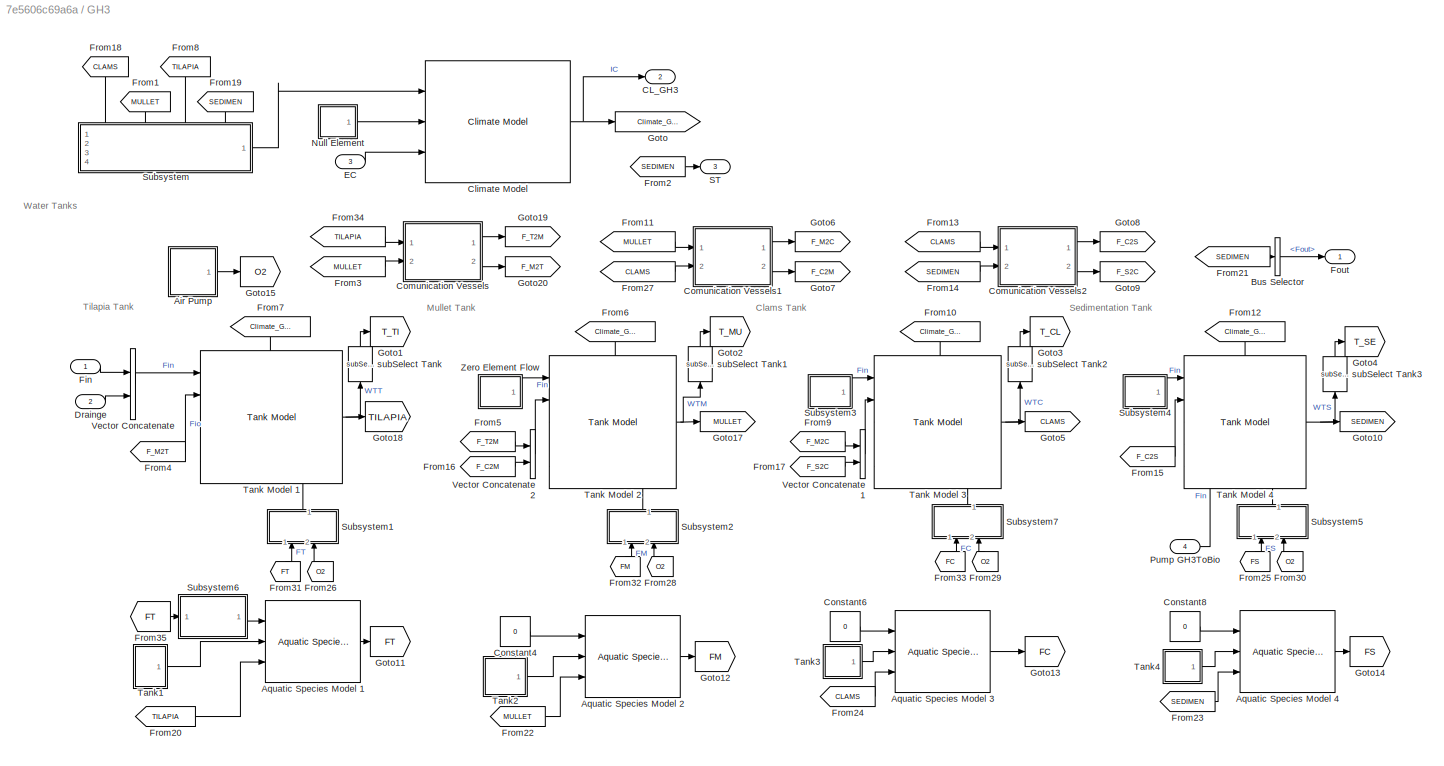
BLOCK [SubSystem] GH3
  NameLocation = top
  PortSchema = {"entries":[{"content":{"sides":[{"content":{"connectorIds":["In1","Out3"]},"type":"ConnectorPlacement.EquallySpacedRectSide","uuid":"81ee264a-41e1-40c0-ab1d-9f5a989c7824"},{"content":{"connectorIds":["Out1","In4"],"side":"RIGHT"},"type":"ConnectorPlacement.EquallySpacedRectSide","uuid":"6f93fb8e-2d1c-4265-8b9a-fc3ac97daf53"},{"content":{"connectorIds":["In2","In3"],"side":"TOP"},"type":"Connector...<+414ch>
  Ports = [4, 3]
  RequestExecContextInheritance = off
BLOCK [SubSystem] GH3/Air Pump
  Ports = [0, 1]
  RequestExecContextInheritance = off
BLOCK [Constant] GH3/Air Pump/Constant
  Value = [0 0 0 0 0 0 1 0]'
  VectorParams1D = off
BLOCK [Gain] GH3/Air Pump/Gain
BLOCK [Outport] GH3/Air Pump/Out Bus Element
BLOCK [Reference] GH3/Aquatic Species Model 1  REF=HORTISIM/Aquaculture/Models/Aquatic Species Model
  Ports = [3, 1]
  SourceBlock = HORTISIM/Aquaculture/Models/Aquatic Species Model
  SourceProductName = Horti Simulator
BLOCK [Reference] GH3/Aquatic Species Model 2  REF=HORTISIM/Aquaculture/Models/Aquatic Species Model
  Ports = [3, 1]
  SourceBlock = HORTISIM/Aquaculture/Models/Aquatic Species Model
  SourceProductName = Horti Simulator
BLOCK [Reference] GH3/Aquatic Species Model 3  REF=HORTISIM/Aquaculture/Models/Aquatic Species Model
  Ports = [3, 1]
  SourceBlock = HORTISIM/Aquaculture/Models/Aquatic Species Model
  SourceProductName = Horti Simulator
BLOCK [Reference] GH3/Aquatic Species Model 4  REF=HORTISIM/Aquaculture/Models/Aquatic Species Model
  Ports = [3, 1]
  SourceBlock = HORTISIM/Aquaculture/Models/Aquatic Species Model
  SourceProductName = Horti Simulator
BLOCK [BusSelector] GH3/Bus Selector
  OutputSignals = Fout
  Ports = [1, 1]
BLOCK [Outport] GH3/CL_GH3
  Port = 2
BLOCK [Reference] GH3/Climate Model  REF=HORTISIM/Climate/Models/Climate Model
  Ports = [3, 1]
  SourceBlock = HORTISIM/Climate/Models/Climate Model
  SourceProductName = Horti Simulator
BLOCK [SubSystem] GH3/Comunication Vessels
  Ports = [2, 2]
  RequestExecContextInheritance = off
BLOCK [BusCreator] GH3/Comunication Vessels/Bus Creator
  DisplayOption = bar
  InheritFromInputs = on
  Inputs = 3
  NonVirtualBus = on
  OutDataTypeStr = Bus: FLOW
  Ports = [3, 1]
BLOCK [BusCreator] GH3/Comunication Vessels/Bus Creator1
  DisplayOption = bar
  InheritFromInputs = on
  Inputs = 3
  NonVirtualBus = on
  OutDataTypeStr = Bus: FLOW
  Ports = [3, 1]
BLOCK [Outport] GH3/Comunication Vessels/F12
BLOCK [Outport] GH3/Comunication Vessels/F21
  Port = 2
BLOCK [From] GH3/Comunication Vessels/From
  GotoTag = FLOW
BLOCK [From] GH3/Comunication Vessels/From1
  GotoTag = FLOW
BLOCK [Gain] GH3/Comunication Vessels/Gain
  Gain = 2*9.8*S
BLOCK [Gain] GH3/Comunication Vessels/Gain1
  Gain = -1
BLOCK [Goto] GH3/Comunication Vessels/Goto
  GotoTag = FLOW
BLOCK [Inport] GH3/Comunication Vessels/In Bus Element
BLOCK [Inport] GH3/Comunication Vessels/In Bus Element1
  Port = 2
BLOCK [Inport] GH3/Comunication Vessels/In Bus Element2
BLOCK [Inport] GH3/Comunication Vessels/In Bus Element3
  Port = 2
BLOCK [Inport] GH3/Comunication Vessels/In Bus Element4
BLOCK [Inport] GH3/Comunication Vessels/In Bus Element5
  Port = 2
BLOCK [Sum] GH3/Comunication Vessels/Minus
  IconShape = rectangular
  Inputs = +-
  Ports = [2, 1]
BLOCK [SubSystem] GH3/Comunication Vessels1
  Ports = [2, 2]
  RequestExecContextInheritance = off
BLOCK [BusCreator] GH3/Comunication Vessels1/Bus Creator
  DisplayOption = bar
  InheritFromInputs = on
  Inputs = 3
  NonVirtualBus = on
  OutDataTypeStr = Bus: FLOW
  Ports = [3, 1]
BLOCK [BusCreator] GH3/Comunication Vessels1/Bus Creator1
  DisplayOption = bar
  InheritFromInputs = on
  Inputs = 3
  NonVirtualBus = on
  OutDataTypeStr = Bus: FLOW
  Ports = [3, 1]
BLOCK [Outport] GH3/Comunication Vessels1/F12
BLOCK [Outport] GH3/Comunication Vessels1/F21
  Port = 2
BLOCK [From] GH3/Comunication Vessels1/From
  GotoTag = FLOW
BLOCK [From] GH3/Comunication Vessels1/From1
  GotoTag = FLOW
BLOCK [Gain] GH3/Comunication Vessels1/Gain
  Gain = 2*9.8*S
BLOCK [Gain] GH3/Comunication Vessels1/Gain1
  Gain = -1
BLOCK [Goto] GH3/Comunication Vessels1/Goto
  GotoTag = FLOW
BLOCK [Inport] GH3/Comunication Vessels1/In Bus Element
BLOCK [Inport] GH3/Comunication Vessels1/In Bus Element1
  Port = 2
BLOCK [Inport] GH3/Comunication Vessels1/In Bus Element2
BLOCK [Inport] GH3/Comunication Vessels1/In Bus Element3
  Port = 2
BLOCK [Inport] GH3/Comunication Vessels1/In Bus Element4
BLOCK [Inport] GH3/Comunication Vessels1/In Bus Element5
  Port = 2
BLOCK [Sum] GH3/Comunication Vessels1/Minus
  IconShape = rectangular
  Inputs = +-
  Ports = [2, 1]
BLOCK [SubSystem] GH3/Comunication Vessels2
  Ports = [2, 2]
  RequestExecContextInheritance = off
BLOCK [BusCreator] GH3/Comunication Vessels2/Bus Creator
  DisplayOption = bar
  InheritFromInputs = on
  Inputs = 3
  NonVirtualBus = on
  OutDataTypeStr = Bus: FLOW
  Ports = [3, 1]
BLOCK [BusCreator] GH3/Comunication Vessels2/Bus Creator1
  DisplayOption = bar
  InheritFromInputs = on
  Inputs = 3
  NonVirtualBus = on
  OutDataTypeStr = Bus: FLOW
  Ports = [3, 1]
BLOCK [Outport] GH3/Comunication Vessels2/F12
BLOCK [Outport] GH3/Comunication Vessels2/F21
  Port = 2
BLOCK [From] GH3/Comunication Vessels2/From
  GotoTag = FLOW
BLOCK [From] GH3/Comunication Vessels2/From1
  GotoTag = FLOW
BLOCK [Gain] GH3/Comunication Vessels2/Gain
  Gain = 2*9.8*S
BLOCK [Gain] GH3/Comunication Vessels2/Gain1
  Gain = -1
BLOCK [Goto] GH3/Comunication Vessels2/Goto
  GotoTag = FLOW
BLOCK [Inport] GH3/Comunication Vessels2/In Bus Element
BLOCK [Inport] GH3/Comunication Vessels2/In Bus Element1
  Port = 2
BLOCK [Inport] GH3/Comunication Vessels2/In Bus Element2
BLOCK [Inport] GH3/Comunication Vessels2/In Bus Element3
  Port = 2
BLOCK [Inport] GH3/Comunication Vessels2/In Bus Element4
BLOCK [Inport] GH3/Comunication Vessels2/In Bus Element5
  Port = 2
BLOCK [Sum] GH3/Comunication Vessels2/Minus
  IconShape = rectangular
  Inputs = +-
  Ports = [2, 1]
BLOCK [Constant] GH3/Constant4
  Value = 0
BLOCK [Constant] GH3/Constant6
  Value = 0
BLOCK [Constant] GH3/Constant8
  Value = 0
BLOCK [Inport] GH3/Drainge
  Port = 2
BLOCK [Inport] GH3/EC
  Port = 3
BLOCK [Inport] GH3/Fin
BLOCK [Outport] GH3/Fout
BLOCK [From] GH3/From1
  GotoTag = MULLET
  NameLocation = left
BLOCK [From] GH3/From10
  GotoTag = Climate_GH3
  NameLocation = left
BLOCK [From] GH3/From11
  GotoTag = MULLET
BLOCK [From] GH3/From12
  GotoTag = Climate_GH3
  NameLocation = left
BLOCK [From] GH3/From13
  GotoTag = CLAMS
BLOCK [From] GH3/From14
  GotoTag = SEDIMEN
BLOCK [From] GH3/From15
  GotoTag = F_C2S
BLOCK [From] GH3/From16
  GotoTag = F_C2M
BLOCK [From] GH3/From17
  GotoTag = F_S2C
BLOCK [From] GH3/From18
  GotoTag = CLAMS
  NameLocation = left
BLOCK [From] GH3/From19
  GotoTag = SEDIMEN
  NameLocation = left
BLOCK [From] GH3/From2
  GotoTag = SEDIMEN
BLOCK [From] GH3/From20
  GotoTag = TILAPIA
BLOCK [From] GH3/From21
  GotoTag = SEDIMEN
BLOCK [From] GH3/From22
  GotoTag = MULLET
BLOCK [From] GH3/From23
  GotoTag = SEDIMEN
BLOCK [From] GH3/From24
  GotoTag = CLAMS
BLOCK [From] GH3/From25
  GotoTag = FS
  NameLocation = right
  TagVisibility = global
BLOCK [From] GH3/From26
  GotoTag = O2
  NameLocation = right
BLOCK [From] GH3/From27
  GotoTag = CLAMS
BLOCK [From] GH3/From28
  GotoTag = O2
  NameLocation = right
BLOCK [From] GH3/From29
  GotoTag = O2
  NameLocation = right
BLOCK [From] GH3/From3
  GotoTag = MULLET
BLOCK [From] GH3/From30
  GotoTag = O2
  NameLocation = right
BLOCK [From] GH3/From31
  GotoTag = FT
  NameLocation = right
  TagVisibility = global
BLOCK [From] GH3/From32
  GotoTag = FM
  NameLocation = right
  TagVisibility = global
BLOCK [From] GH3/From33
  GotoTag = FC
  NameLocation = right
  TagVisibility = global
BLOCK [From] GH3/From34
  GotoTag = TILAPIA
BLOCK [From] GH3/From35
  GotoTag = FT
  TagVisibility = global
BLOCK [From] GH3/From4
  GotoTag = F_M2T
BLOCK [From] GH3/From5
  GotoTag = F_T2M
BLOCK [From] GH3/From6
  GotoTag = Climate_GH3
  NameLocation = left
BLOCK [From] GH3/From7
  GotoTag = Climate_GH3
  NameLocation = left
BLOCK [From] GH3/From8
  GotoTag = TILAPIA
  NameLocation = left
BLOCK [From] GH3/From9
  GotoTag = F_M2C
BLOCK [Goto] GH3/Goto
  GotoTag = Climate_GH3
BLOCK [Goto] GH3/Goto1
  GotoTag = T_TI
  TagVisibility = global
BLOCK [Goto] GH3/Goto10
  GotoTag = SEDIMEN
BLOCK [Goto] GH3/Goto11
  GotoTag = FT
  TagVisibility = global
BLOCK [Goto] GH3/Goto12
  GotoTag = FM
  TagVisibility = global
BLOCK [Goto] GH3/Goto13
  GotoTag = FC
  TagVisibility = global
BLOCK [Goto] GH3/Goto14
  GotoTag = FS
  TagVisibility = global
BLOCK [Goto] GH3/Goto15
  GotoTag = O2
BLOCK [Goto] GH3/Goto17
  GotoTag = MULLET
BLOCK [Goto] GH3/Goto18
  GotoTag = TILAPIA
BLOCK [Goto] GH3/Goto19
  GotoTag = F_T2M
BLOCK [Goto] GH3/Goto2
  GotoTag = T_MU
  TagVisibility = global
BLOCK [Goto] GH3/Goto20
  GotoTag = F_M2T
BLOCK [Goto] GH3/Goto3
  GotoTag = T_CL
  TagVisibility = global
BLOCK [Goto] GH3/Goto4
  GotoTag = T_SE
  TagVisibility = global
BLOCK [Goto] GH3/Goto5
  GotoTag = CLAMS
BLOCK [Goto] GH3/Goto6
  GotoTag = F_M2C
BLOCK [Goto] GH3/Goto7
  GotoTag = F_C2M
BLOCK [Goto] GH3/Goto8
  GotoTag = F_C2S
BLOCK [Goto] GH3/Goto9
  GotoTag = F_S2C
BLOCK [SubSystem] GH3/Null Element
  NameLocation = top
  Ports = [0, 1]
  RequestExecContextInheritance = off
BLOCK [Outport] GH3/Null Element/CoCl
BLOCK [Reference] GH3/Null Element/Scalar2Bus Control Climate  REF=HORTISIM/Other 
Functions/Scalar2Bus 
Control Climate
  Ports = [4, 1]
  SourceBlock = HORTISIM/Other \nFunctions/Scalar2Bus \nControl Climate
  SourceProductName = Horti Simulator
  SourceType = SubSystem
BLOCK [Reference] GH3/Null Element/Zero Element Screen  REF=HORTISIM/Other 
Functions/Zero Element
Screen
  Ports = [0, 1]
  SourceBlock = HORTISIM/Other \nFunctions/Zero Element\nScreen
  SourceProductName = Horti Simulator
  SourceType = SubSystem
BLOCK [Reference] GH3/Null Element/Zero Element Windows  REF=HORTISIM/Other 
Functions/Zero Element
Windows
  Ports = [0, 1]
  SourceBlock = HORTISIM/Other \nFunctions/Zero Element\nWindows
  SourceProductName = Horti Simulator
  SourceType = SubSystem
BLOCK [Inport] GH3/Pump GH3ToBio
  Port = 4
BLOCK [Outport] GH3/ST
  Port = 3
BLOCK [SubSystem] GH3/Subsystem
  PortSchema = {"entries":[{"content":{"sides":[{"content":{"connectorIds":[]},"type":"ConnectorPlacement.EquallySpacedRectSide","uuid":"d0110122-4c0e-4050-9905-351100dfb2f8"},{"content":{"connectorIds":["Out1"],"side":"RIGHT"},"type":"ConnectorPlacement.EquallySpacedRectSide","uuid":"5eb4c138-aba2-4968-a926-5140e929ef74"},{"content":{"connectorIds":["In1","In2","In3","In4"],"side":"TOP"},"type":"ConnectorPlacem...<+258ch>
  Ports = [4, 1]
  RequestExecContextInheritance = off
BLOCK [BusSelector] GH3/Subsystem/Bus Selector1
  OutputSignals = QV,QT
  Ports = [1, 2]
BLOCK [BusSelector] GH3/Subsystem/Bus Selector2
  OutputSignals = QV,QT
  Ports = [1, 2]
BLOCK [BusSelector] GH3/Subsystem/Bus Selector3
  OutputSignals = QV,QT
  Ports = [1, 2]
BLOCK [BusSelector] GH3/Subsystem/Bus Selector4
  OutputSignals = QV,QT
  Ports = [1, 2]
BLOCK [Outport] GH3/Subsystem/CoCl
BLOCK [Inport] GH3/Subsystem/In1
  Port = 4
BLOCK [Inport] GH3/Subsystem/In2
  Port = 3
BLOCK [Inport] GH3/Subsystem/In3
BLOCK [Inport] GH3/Subsystem/In4
  Port = 2
BLOCK [Reference] GH3/Subsystem/Scalar2Bus Ext Signal   REF=HORTISIM/Other 
Functions/Scalar2Bus
Ext Signal 

  Ports = [4, 1]
  SourceBlock = HORTISIM/Other \nFunctions/Scalar2Bus\nExt Signal
  SourceProductName = Horti Simulator
  SourceType = SubSystem
BLOCK [Sum] GH3/Subsystem/Sum
  Inputs = ++++
  Ports = [4, 1]
BLOCK [Sum] GH3/Subsystem/Sum1
  Inputs = ++++
  Ports = [4, 1]
BLOCK [SubSystem] GH3/Subsystem1
  NameLocation = right
  Ports = [2, 1]
  RequestExecContextInheritance = off
BLOCK [BusSelector] GH3/Subsystem1/Bus Selector1
  NameLocation = right
  OutputSignals = R
  Ports = [1, 1]
BLOCK [BusSelector] GH3/Subsystem1/Bus Selector2
  NameLocation = right
  OutputSignals = R
  Ports = [1, 1]
BLOCK [Inport] GH3/Subsystem1/FT
BLOCK [Inport] GH3/Subsystem1/O2
  Port = 2
BLOCK [Outport] GH3/Subsystem1/R
BLOCK [Concatenate] GH3/Subsystem1/Vector Concatenate2
  ConcatenateDimension = 2
  Mode = Multidimensional array
  NameLocation = right
  Ports = [2, 1]
BLOCK [SubSystem] GH3/Subsystem2
  NameLocation = right
  Ports = [2, 1]
  RequestExecContextInheritance = off
BLOCK [BusSelector] GH3/Subsystem2/Bus Selector1
  NameLocation = right
  OutputSignals = R
  Ports = [1, 1]
BLOCK [BusSelector] GH3/Subsystem2/Bus Selector2
  NameLocation = right
  OutputSignals = R
  Ports = [1, 1]
BLOCK [Inport] GH3/Subsystem2/FT
BLOCK [Inport] GH3/Subsystem2/O2
  Port = 2
BLOCK [Outport] GH3/Subsystem2/R
BLOCK [Concatenate] GH3/Subsystem2/Vector Concatenate2
  ConcatenateDimension = 2
  Mode = Multidimensional array
  NameLocation = right
  Ports = [2, 1]
BLOCK [SubSystem] GH3/Subsystem3
  Ports = [0, 1]
  RequestExecContextInheritance = off
BLOCK [BusCreator] GH3/Subsystem3/Bus Creator1
  DisplayOption = bar
  InheritFromInputs = on
  Inputs = 3
  NonVirtualBus = on
  OutDataTypeStr = Bus: FLOW
  Ports = [3, 1]
BLOCK [Outport] GH3/Subsystem3/Fin
BLOCK [Constant] GH3/Subsystem3/[Kelvin]1
  Value = 273.15 + 20
BLOCK [Constant] GH3/Subsystem3/kg//m^1
  Value = 1 + zeros(8,1)
BLOCK [Constant] GH3/Subsystem3/m^3{H2O}//s1
  Value = 0
BLOCK [SubSystem] GH3/Subsystem4
  Ports = [0, 1]
  RequestExecContextInheritance = off
BLOCK [BusCreator] GH3/Subsystem4/Bus Creator1
  DisplayOption = bar
  InheritFromInputs = on
  Inputs = 3
  NonVirtualBus = on
  OutDataTypeStr = Bus: FLOW
  Ports = [3, 1]
BLOCK [Outport] GH3/Subsystem4/Fin
BLOCK [Constant] GH3/Subsystem4/[Kelvin]1
  Value = 273.15 + 20
BLOCK [Constant] GH3/Subsystem4/kg//m^1
  Value = 1 + zeros(8,1)
BLOCK [Constant] GH3/Subsystem4/m^3{H2O}//s1
  Value = 0
BLOCK [SubSystem] GH3/Subsystem5
  NameLocation = right
  Ports = [2, 1]
  RequestExecContextInheritance = off
BLOCK [BusSelector] GH3/Subsystem5/Bus Selector1
  NameLocation = right
  OutputSignals = R
  Ports = [1, 1]
BLOCK [BusSelector] GH3/Subsystem5/Bus Selector2
  NameLocation = right
  OutputSignals = R
  Ports = [1, 1]
BLOCK [Inport] GH3/Subsystem5/FT
BLOCK [Inport] GH3/Subsystem5/O2
  Port = 2
BLOCK [Outport] GH3/Subsystem5/R
BLOCK [Concatenate] GH3/Subsystem5/Vector Concatenate2
  ConcatenateDimension = 2
  Mode = Multidimensional array
  NameLocation = right
  Ports = [2, 1]
BLOCK [SubSystem] GH3/Subsystem6
  Ports = [1, 1]
  RequestExecContextInheritance = off
BLOCK [BusSelector] GH3/Subsystem6/Bus Selector
  OutputSignals = dmdt
  Ports = [1, 1]
BLOCK [Outport] GH3/Subsystem6/Feed
BLOCK [Gain] GH3/Subsystem6/Feed Convertio Ratio
  Gain = FCR
BLOCK [Inport] GH3/Subsystem6/Mass
BLOCK [Product] GH3/Subsystem6/Product
  Ports = [2, 1]
BLOCK [DiscretePulseGenerator] GH3/Subsystem6/Pulse Generator
  Period = 1
  Ports = [0, 1]
  PulseType = Time based
  PulseWidth = 5
BLOCK [SubSystem] GH3/Subsystem7
  NameLocation = right
  Ports = [2, 1]
  RequestExecContextInheritance = off
BLOCK [BusSelector] GH3/Subsystem7/Bus Selector1
  NameLocation = right
  OutputSignals = R
  Ports = [1, 1]
BLOCK [BusSelector] GH3/Subsystem7/Bus Selector2
  NameLocation = right
  OutputSignals = R
  Ports = [1, 1]
BLOCK [Inport] GH3/Subsystem7/FT
BLOCK [Inport] GH3/Subsystem7/O2
  Port = 2
BLOCK [Outport] GH3/Subsystem7/R
BLOCK [Concatenate] GH3/Subsystem7/Vector Concatenate2
  ConcatenateDimension = 2
  Mode = Multidimensional array
  NameLocation = right
  Ports = [2, 1]
BLOCK [Reference] GH3/Tank Model 1  REF=HORTISIM/Aquaculture/Models/Tank Model
  Ports = [5, 1]
  SourceBlock = HORTISIM/Aquaculture/Models/Tank Model
  SourceProductName = Horti Simulator
BLOCK [Reference] GH3/Tank Model 2  REF=HORTISIM/Aquaculture/Models/Tank Model
  Ports = [5, 1]
  SourceBlock = HORTISIM/Aquaculture/Models/Tank Model
  SourceProductName = Horti Simulator
BLOCK [Reference] GH3/Tank Model 3  REF=HORTISIM/Aquaculture/Models/Tank Model
  Ports = [5, 1]
  SourceBlock = HORTISIM/Aquaculture/Models/Tank Model
  SourceProductName = Horti Simulator
BLOCK [Reference] GH3/Tank Model 4  REF=HORTISIM/Aquaculture/Models/Tank Model
  Ports = [5, 1]
  SourceBlock = HORTISIM/Aquaculture/Models/Tank Model
  SourceProductName = Horti Simulator
BLOCK [SubSystem] GH3/Tank1
  Ports = [0, 1]
  RequestExecContextInheritance = off
BLOCK [Outport] GH3/Tank1/Out1
BLOCK [Reference] GH3/Tank1/Start//Stop Window  REF=HORTISIM/Other 
Functions/Start//Stop Window
  Ports = [0, 1]
  SourceBlock = HORTISIM/Other \nFunctions/Start//Stop Window
  SourceProductName = Horti Simulator
BLOCK [SubSystem] GH3/Tank2
  Ports = [0, 1]
  RequestExecContextInheritance = off
BLOCK [Outport] GH3/Tank2/Out1
BLOCK [Reference] GH3/Tank2/Start//Stop Window  REF=HORTISIM/Other 
Functions/Start//Stop Window
  Ports = [0, 1]
  SourceBlock = HORTISIM/Other \nFunctions/Start//Stop Window
  SourceProductName = Horti Simulator
BLOCK [SubSystem] GH3/Tank3
  Ports = [0, 1]
  RequestExecContextInheritance = off
BLOCK [Outport] GH3/Tank3/Out1
BLOCK [Reference] GH3/Tank3/Start//Stop Window  REF=HORTISIM/Other 
Functions/Start//Stop Window
  Ports = [0, 1]
  SourceBlock = HORTISIM/Other \nFunctions/Start//Stop Window
  SourceProductName = Horti Simulator
BLOCK [SubSystem] GH3/Tank4
  Ports = [0, 1]
  RequestExecContextInheritance = off
BLOCK [Outport] GH3/Tank4/Out1
BLOCK [Reference] GH3/Tank4/Start//Stop Window  REF=HORTISIM/Other 
Functions/Start//Stop Window
  Ports = [0, 1]
  SourceBlock = HORTISIM/Other \nFunctions/Start//Stop Window
  SourceProductName = Horti Simulator
BLOCK [Concatenate] GH3/Vector Concatenate
  Mode = Multidimensional array
  Ports = [2, 1]
BLOCK [Concatenate] GH3/Vector Concatenate1
  Ports = [2, 1]
BLOCK [Concatenate] GH3/Vector Concatenate2
  Ports = [2, 1]
BLOCK [SubSystem] GH3/Zero Element Flow
  Ports = [0, 1]
  RequestExecContextInheritance = off
BLOCK [BusCreator] GH3/Zero Element Flow/Bus Creator1
  DisplayOption = bar
  InheritFromInputs = on
  Inputs = 3
  NonVirtualBus = on
  OutDataTypeStr = Bus: FLOW
  Ports = [3, 1]
BLOCK [Outport] GH3/Zero Element Flow/Fin
BLOCK [Constant] GH3/Zero Element Flow/[Kelvin]1
  Value = 273.15 + 20
BLOCK [Constant] GH3/Zero Element Flow/kg//m^1
  Value = 1 + zeros(8,1)
BLOCK [Constant] GH3/Zero Element Flow/m^3{H2O}//s1
  Value = 0
BLOCK [Reference] GH3/subSelect Tank  REF=HORTISIM/Other 
Functions/subSelect 
Tank
  NameLocation = right
  Ports = [1, 1]
  SourceBlock = HORTISIM/Other \nFunctions/subSelect \nTank
  SourceProductName = Horti Simulator
  SourceType = SubSystem
BLOCK [Reference] GH3/subSelect Tank1  REF=HORTISIM/Other 
Functions/subSelect 
Tank
  NameLocation = right
  Ports = [1, 1]
  SourceBlock = HORTISIM/Other \nFunctions/subSelect \nTank
  SourceProductName = Horti Simulator
  SourceType = SubSystem
BLOCK [Reference] GH3/subSelect Tank2  REF=HORTISIM/Other 
Functions/subSelect 
Tank
  NameLocation = right
  Ports = [1, 1]
  SourceBlock = HORTISIM/Other \nFunctions/subSelect \nTank
  SourceProductName = Horti Simulator
  SourceType = SubSystem
BLOCK [Reference] GH3/subSelect Tank3  REF=HORTISIM/Other 
Functions/subSelect 
Tank
  NameLocation = right
  Ports = [1, 1]
  SourceBlock = HORTISIM/Other \nFunctions/subSelect \nTank
  SourceProductName = Horti Simulator
  SourceType = SubSystem
BLOCK [Goto] Goto
  GotoTag = CL_GH1
  NameLocation = left
BLOCK [Goto] Goto1
  GotoTag = CL_GH2
BLOCK [Goto] Goto2
  GotoTag = CL_GH3
  NameLocation = left
BLOCK [Goto] Goto5
  GotoTag = EC
BLOCK [SubSystem] Pump
  NameLocation = right
  Ports = [0, 1]
  RequestExecContextInheritance = off
BLOCK [SubSystem] Pump BioToGH1
  NameLocation = right
  Ports = [0, 1]
  RequestExecContextInheritance = off
BLOCK [Gain] Pump BioToGH1/1h//3600s
  Gain = 1/3600
BLOCK [Outport] Pump BioToGH1/Fin1
BLOCK [Goto] Pump BioToGH1/Goto
  GotoTag = PumpBioToGH1
  TagVisibility = global
BLOCK [Constant] Pump BioToGH1/m3//h
  Value = 13
BLOCK [SubSystem] Pump BioToGH2
  NameLocation = right
  Ports = [0, 1]
  RequestExecContextInheritance = off
BLOCK [Gain] Pump BioToGH2/1h//3600s
  Gain = 1/3600
BLOCK [Outport] Pump BioToGH2/Fi2
BLOCK [Goto] Pump BioToGH2/Goto
  GotoTag = PumpBioToGH2
  TagVisibility = global
BLOCK [Product] Pump BioToGH2/Product
  Ports = [2, 1]
BLOCK [DiscretePulseGenerator] Pump BioToGH2/Pulse Generator
  Period = 1
  PhaseDelay = 8/24-h0
  Ports = [0, 1]
  PulseType = Time based
  PulseWidth = 7/24*100
BLOCK [Scope] Pump BioToGH2/Scope
  Floating = off
  NumInputPorts = 1
  Ports = [1]
  ScopeSpecificationString = Simulink.scopes.TimeScopeBlockCfg('CurrentConfiguration', extmgr.ConfigurationSet(extmgr.Configuration('Core','General UI',true),extmgr.Configuration('Core','Source UI',true),extmgr.Configuration('Sources','WiredSimulink',true,'DataLoggingVariableName','ScopeData2'),extmgr.Configuration('Visuals','Time Domain',true,'SerializedDisplays',{struct('MinYLimReal','-0.125','MaxYLimReal','1.125','YLabelRe...<+1347ch>
BLOCK [Constant] Pump BioToGH2/m3//h
  Value = 0.1
BLOCK [Gain] Pump/1h//3600s
  Gain = 1/3600
BLOCK [Outport] Pump/Fin
BLOCK [Goto] Pump/Goto
  GotoTag = PumpGH3ToBio
  TagVisibility = global
BLOCK [Constant] Pump/m3//h
  Value = 13
BLOCK [SubSystem] Subsystem1
  PortSchema = {"entries":[{"content":{"sides":[{"content":{"connectorIds":[]},"type":"ConnectorPlacement.EquallySpacedRectSide","uuid":"9a0d525f-008d-4bea-82c7-ff44bdf3c7a1"},{"content":{"connectorIds":["Out1"],"side":"RIGHT"},"type":"ConnectorPlacement.EquallySpacedRectSide","uuid":"3b01d65a-c3f3-4d47-b396-44b5c3b80049"},{"content":{"connectorIds":[],"side":"TOP"},"type":"ConnectorPlacement.EquallySpacedRectSi...<+384ch>
  Ports = [1, 1]
  RequestExecContextInheritance = off
BLOCK [Gain] Subsystem1/1h//3600s
  Gain = 1/3600
BLOCK [Abs] Subsystem1/Abs
  SaturateOnIntegerOverflow = off
  ZeroCross = off
BLOCK [BusCreator] Subsystem1/Bus Creator1
  DisplayOption = bar
  InheritFromInputs = on
  Inputs = 3
  NonVirtualBus = on
  OutDataTypeStr = Bus: FLOW
  Ports = [3, 1]
BLOCK [BusSelector] Subsystem1/Bus Selector
  OutputSignals = h
  Ports = [1, 1]
BLOCK [Constant] Subsystem1/Constant
  Value = 0.8
BLOCK [Outport] Subsystem1/Fin
BLOCK [Goto] Subsystem1/Goto
  GotoTag = PumpIn
  TagVisibility = global
BLOCK [Sum] Subsystem1/Minus
  IconShape = rectangular
  Inputs = +-
  Ports = [2, 1]
BLOCK [Product] Subsystem1/Product
  Ports = [2, 1]
BLOCK [Product] Subsystem1/Product1
  Ports = [2, 1]
BLOCK [DiscretePulseGenerator] Subsystem1/Pulse Generator
  Period = 1
  PhaseDelay = 8/24-h0
  Ports = [0, 1]
  PulseType = Time based
  PulseWidth = 3/(24)*100
BLOCK [Inport] Subsystem1/ST
BLOCK [Scope] Subsystem1/Scope
  Floating = off
  NumInputPorts = 1
  Ports = [1]
  ScopeSpecificationString = Simulink.scopes.TimeScopeBlockCfg('CurrentConfiguration', extmgr.ConfigurationSet(extmgr.Configuration('Core','General UI',true),extmgr.Configuration('Core','Source UI',true),extmgr.Configuration('Sources','WiredSimulink',true),extmgr.Configuration('Visuals','Time Domain',true,'SerializedDisplays',{struct('MinYLimReal','-0.125','MaxYLimReal','1.125','YLabelReal','','MinYLimMag','0.00000','MaxYLimM...<+1352ch>
BLOCK [Constant] Subsystem1/[Kelvin]1
  Value = 273.15 + 20
BLOCK [Constant] Subsystem1/kg//m^3
  Value = 0.1 + zeros(8,1)
BLOCK [Constant] Subsystem1/m3//h
  Value = 100
BLOCK [Constant] Subsystem1/m3//h1
  Value = 18
BLOCK [Outport] TANK_CLAMS
  Port = 15
BLOCK [Outport] TANK_MULLETS
  Port = 16
BLOCK [Outport] TANK_SEDIMEN
  Port = 18
BLOCK [Outport] TANK_TILAPIA
  Port = 17
BLOCK [Outport] T_GH1
  Port = 10
BLOCK [Outport] T_GH1_NFT
  Port = 11
BLOCK [Outport] T_GH1_RF
  Port = 12
BLOCK [Outport] T_GH2_RF
  Port = 13
BLOCK [Outport] T_GH2_TRAD
  Port = 14
ANNOTATION (root): Clima
ANNOTATION (root): Fishes
ANNOTATION (root): Outputs
ANNOTATION (root): Water Tanks
ANNOTATION BioFilter/Bio Filter: %N K Ca Mg P S O2 TSS
ANNOTATION GH1/NFT System/Reorder signals/Subsystem1/TankToCrop Parser Several: $m^3/s$
ANNOTATION GH1/NFT System/Reorder signals/Subsystem1/TankToCrop Parser Several/Subsystem: $kg\{H_2O\}/s$
ANNOTATION GH1/NFT System/Reorder signals/Subsystem1/TankToCrop Parser Several/Subsystem1: $kg\{H_2O\}/s$
ANNOTATION GH1/NFT System/Reorder signals/Subsystem1/TankToCrop Parser Several/Subsystem2: $kg\{H_2O\}/s$
ANNOTATION GH1/NFT System/Reorder signals/Subsystem1/TankToCrop Parser Several/Subsystem3: $kg\{H_2O\}/s$
ANNOTATION GH1/RF System/Subsystem1/TankToCrop Parser Several: $m^3/s$
ANNOTATION GH1/RF System/Subsystem1/TankToCrop Parser Several/Subsystem: $kg\{H_2O\}/s$
ANNOTATION GH1/RF System/Subsystem1/TankToCrop Parser Several/Subsystem1: $kg\{H_2O\}/s$
ANNOTATION GH1/RF System/Subsystem1/TankToCrop Parser Several/Subsystem2: $kg\{H_2O\}/s$
ANNOTATION GH1/RF System/Subsystem1/TankToCrop Parser Several/Subsystem3: $kg\{H_2O\}/s$
ANNOTATION GH2/RF System/Subsystem1/TankToCrop Parser Several: $m^3/s$
ANNOTATION GH2/RF System/Subsystem1/TankToCrop Parser Several/Subsystem: $kg\{H_2O\}/s$
ANNOTATION GH2/RF System/Subsystem1/TankToCrop Parser Several/Subsystem1: $kg\{H_2O\}/s$
ANNOTATION GH2/RF System/Subsystem1/TankToCrop Parser Several/Subsystem2: $kg\{H_2O\}/s$
ANNOTATION GH2/RF System/Subsystem1/TankToCrop Parser Several/Subsystem3: $kg\{H_2O\}/s$
ANNOTATION GH2/TRAD System/Subsystem1/TankToCrop Parser Several: $m^3/s$
ANNOTATION GH2/TRAD System/Subsystem1/TankToCrop Parser Several/Subsystem: $kg\{H_2O\}/s$
ANNOTATION GH2/TRAD System/Subsystem1/TankToCrop Parser Several/Subsystem1: $kg\{H_2O\}/s$
ANNOTATION GH2/TRAD System/Subsystem1/TankToCrop Parser Several/Subsystem2: $kg\{H_2O\}/s$
ANNOTATION GH2/TRAD System/Subsystem1/TankToCrop Parser Several/Subsystem3: $kg\{H_2O\}/s$
ANNOTATION GH3: Clams Tank
ANNOTATION GH3: Mullet Tank
ANNOTATION GH3: Sedimentation Tank
ANNOTATION GH3: Tilapia Tank
ANNOTATION GH3: Water Tanks
ANNOTATION GH3/Air Pump: %N K Ca Mg P S O2 TSS
ANNOTATION GH3/Subsystem3: Well Water1
ANNOTATION GH3/Subsystem4: Well Water1
ANNOTATION GH3/Zero Element Flow: Well Water1
ANNOTATION Subsystem1: Well Water1
ANNOTATION Subsystem1: m3/s
LINE BioFilter/Bio Filter/Constant:1 -> BioFilter/Bio Filter/Gain:1
LINE BioFilter/Bio Filter/Gain:1 -> BioFilter/Bio Filter/Out1:1
LINE BioFilter/Bio Filter:1 -> BioFilter/Tank Model Bio:5
NET BioFilter/Bus Selector:1 -> BioFilter/Selector1:1, BioFilter/Selector:1
LINE BioFilter/EC:1 -> BioFilter/Parse:1
LINE BioFilter/Fi1:1 -> BioFilter/Vector Concatenate:1
LINE BioFilter/Fi2:1 -> BioFilter/Vector Concatenate:2
NET BioFilter/Parse/Bus Selector:1 -> BioFilter/Parse/Out Bus Element:1, BioFilter/Parse/Temp2SatDensity:1
LINE BioFilter/Parse/Bus Selector:2 -> BioFilter/Parse/Gain:1
LINE BioFilter/Parse/Bus Selector:3 -> BioFilter/Parse/Out Bus Element1:1
LINE BioFilter/Parse/EC:1 -> BioFilter/Parse/Bus Selector:1
LINE BioFilter/Parse/Gain:1 -> BioFilter/Parse/Product:2
LINE BioFilter/Parse/Product:1 -> BioFilter/Parse/Out Bus Element2:1
LINE BioFilter/Parse/Temp2SatDensity:1 -> BioFilter/Parse/Product:1
LINE BioFilter/Parse:1 -> BioFilter/Tank Model Bio:3
LINE BioFilter/Selector1:1 -> BioFilter/Fo2:1
LINE BioFilter/Selector:1 -> BioFilter/Fo1:1
LINE BioFilter/Tank Model Bio:1 -> BioFilter/Bus Selector:1
LINE BioFilter/Vector Concatenate:1 -> BioFilter/Tank Model Bio:4
LINE BioFilter/Zero Element Flow:1 -> BioFilter/Tank Model Bio:2
LINE BioFilter/in:1 -> BioFilter/Tank Model Bio:1
LINE BioFilter:1 -> GH1:2
LINE BioFilter:2 -> GH2:1
LINE Bus Creator4:1 -> Control:1
LINE Bus Creator:1 -> Crops:1
LINE External Climate/Constant:1 -> External Climate/Scalar2Bus ExternalClimate:5
LINE External Climate/Demux:1 -> External Climate/Scalar2Bus ExternalClimate:1
LINE External Climate/Demux:2 -> External Climate/Scalar2Bus ExternalClimate:2
LINE External Climate/Demux:3 -> External Climate/Scalar2Bus ExternalClimate:3
LINE External Climate/Demux:4 -> External Climate/Scalar2Bus ExternalClimate:4
LINE External Climate/From Workspace:1 -> External Climate/Demux:1
LINE External Climate/Scalar2Bus ExternalClimate:1 -> External Climate/Bus:1
LINE External Climate:1 -> Goto5:1
LINE From10:1 -> Fishes T:1
LINE From11:1 -> Climate_GH1:1
LINE From12:1 -> Bus Creator:1
LINE From13:1 -> Climate_GH3:1
LINE From14:1 -> Climate_GH2:1
LINE From15:1 -> T_GH1:1
LINE From16:1 -> T_GH1_NFT:1
LINE From17:1 -> T_GH1_RF:1
LINE From18:1 -> T_GH2_RF:1
LINE From19:1 -> T_GH2_TRAD:1
LINE From1:1 -> GH1:1
LINE From20:1 -> Bus Creator4:2
LINE From21:1 -> Bus Creator4:1
LINE From22:1 -> Bus Creator4:3
LINE From23:1 -> Bus Creator4:4
LINE From24:1 -> TANK_MULLETS:1
LINE From25:1 -> TANK_TILAPIA:1
LINE From26:1 -> TANK_SEDIMEN:1
LINE From2:1 -> GH2:2
LINE From3:1 -> TANK_CLAMS:1
LINE From4:1 -> Bus Creator:2
LINE From5:1 -> Bus Creator:3
LINE From6:1 -> Bus Creator:4
LINE From7:1 -> Fishes C:1
LINE From8:1 -> Fishes M:1
LINE From9:1 -> Fishes S:1
NET From:1 -> BioFilter:1, GH3:3
NET GH1/Bio Sump:1 -> GH1/Bus Selector2:1, GH1/subSelect Tank:1
LINE GH1/Bus Selector2:1 -> GH1/Drainge:1
NET GH1/Climate Model:1 -> GH1/CL_GH1:1, GH1/Goto1:1
LINE GH1/EC:1 -> GH1/Climate Model:3
LINE GH1/Flow2Divisor/Bus Creator1:1 -> GH1/Flow2Divisor/Out2:1
LINE GH1/Flow2Divisor/Bus Creator:1 -> GH1/Flow2Divisor/Out1:1
LINE GH1/Flow2Divisor/Bus Selector:1 -> GH1/Flow2Divisor/Gain:1
LINE GH1/Flow2Divisor/Bus Selector:2 -> GH1/Flow2Divisor/Goto1:1
LINE GH1/Flow2Divisor/Bus Selector:3 -> GH1/Flow2Divisor/Goto2:1
LINE GH1/Flow2Divisor/Fo1:1 -> GH1/Flow2Divisor/Bus Selector:1
LINE GH1/Flow2Divisor/From1:1 -> GH1/Flow2Divisor/Bus Creator:2
LINE GH1/Flow2Divisor/From2:1 -> GH1/Flow2Divisor/Bus Creator:3
LINE GH1/Flow2Divisor/From3:1 -> GH1/Flow2Divisor/Bus Creator1:1
LINE GH1/Flow2Divisor/From4:1 -> GH1/Flow2Divisor/Bus Creator1:2
LINE GH1/Flow2Divisor/From5:1 -> GH1/Flow2Divisor/Bus Creator1:3
LINE GH1/Flow2Divisor/From:1 -> GH1/Flow2Divisor/Bus Creator:1
LINE GH1/Flow2Divisor/Gain:1 -> GH1/Flow2Divisor/Goto:1
LINE GH1/Flow2Divisor:1 -> GH1/Goto3:1
LINE GH1/Flow2Divisor:2 -> GH1/Goto4:1
LINE GH1/Fo1:1 -> GH1/Flow2Divisor:1
LINE GH1/From14:1 -> GH1/Subsystem1:1
LINE GH1/From15:1 -> GH1/Subsystem1:2
LINE GH1/From16:1 -> GH1/Bio Sump:3
LINE GH1/From19:1 -> GH1/Subsystem:3
LINE GH1/From1:1 -> GH1/NFT System:1
LINE GH1/From2:1 -> GH1/RF System:1
LINE GH1/From4:1 -> GH1/RF System:2
LINE GH1/From5:1 -> GH1/Subsystem:4
LINE GH1/From6:1 -> GH1/Subsystem:1
LINE GH1/From7:1 -> GH1/Subsystem:2
LINE GH1/From:1 -> GH1/NFT System:2
NET GH1/NFT System/Bus Creator:1 -> GH1/NFT System/Goto4:1, GH1/NFT System/Reorder signals:1
LINE GH1/NFT System/Bus Selector1:1 -> GH1/NFT System/Crop 3:3
LINE GH1/NFT System/Bus Selector2:1 -> GH1/NFT System/Crop 4:3
LINE GH1/NFT System/Bus Selector3:1 -> GH1/NFT System/Crop 2:3
LINE GH1/NFT System/Bus Selector:1 -> GH1/NFT System/Crop 1:3
LINE GH1/NFT System/Control 1/Crop:1 -> GH1/NFT System/Control 1/Prune Policy:1
LINE GH1/NFT System/Control 1/Prune Policy:1 -> GH1/NFT System/Control 1/Scalar2Bus Control Crop:1
LINE GH1/NFT System/Control 1/Scalar2Bus Control Crop:1 -> GH1/NFT System/Control 1/CC:1
LINE GH1/NFT System/Control 1/Start//Stop Window:1 -> GH1/NFT System/Control 1/Scalar2Bus Control Crop:4
LINE GH1/NFT System/Control 1:1 -> GH1/NFT System/Crop 1:2
LINE GH1/NFT System/Control 2/Crop:1 -> GH1/NFT System/Control 2/Prune Policy:1
LINE GH1/NFT System/Control 2/Prune Policy:1 -> GH1/NFT System/Control 2/Scalar2Bus Control Crop:1
LINE GH1/NFT System/Control 2/Scalar2Bus Control Crop:1 -> GH1/NFT System/Control 2/CC:1
LINE GH1/NFT System/Control 2/Start//Stop Window:1 -> GH1/NFT System/Control 2/Scalar2Bus Control Crop:4
LINE GH1/NFT System/Control 2:1 -> GH1/NFT System/Crop 2:2
LINE GH1/NFT System/Control 3/Crop:1 -> GH1/NFT System/Control 3/Prune Policy:1
LINE GH1/NFT System/Control 3/Prune Policy:1 -> GH1/NFT System/Control 3/Scalar2Bus Control Crop:1
LINE GH1/NFT System/Control 3/Scalar2Bus Control Crop:1 -> GH1/NFT System/Control 3/CC:1
LINE GH1/NFT System/Control 3/Start//Stop Window:1 -> GH1/NFT System/Control 3/Scalar2Bus Control Crop:4
LINE GH1/NFT System/Control 3:1 -> GH1/NFT System/Crop 3:2
LINE GH1/NFT System/Control 4/Crop:1 -> GH1/NFT System/Control 4/Prune Policy:1
LINE GH1/NFT System/Control 4/Prune Policy:1 -> GH1/NFT System/Control 4/Scalar2Bus Control Crop:1
LINE GH1/NFT System/Control 4/Scalar2Bus Control Crop:1 -> GH1/NFT System/Control 4/CC:1
LINE GH1/NFT System/Control 4/Start//Stop Window:1 -> GH1/NFT System/Control 4/Scalar2Bus Control Crop:4
LINE GH1/NFT System/Control 4:1 -> GH1/NFT System/Crop 4:2
LINE GH1/NFT System/Crop 1:1 -> GH1/NFT System/Goto2:1
LINE GH1/NFT System/Crop 2:1 -> GH1/NFT System/Goto1:1
LINE GH1/NFT System/Crop 3:1 -> GH1/NFT System/Goto5:1
LINE GH1/NFT System/Crop 4:1 -> GH1/NFT System/Goto6:1
LINE GH1/NFT System/From10:1 -> GH1/NFT System/Bus Creator:1
LINE GH1/NFT System/From11:1 -> GH1/NFT System/Tank Model:3
LINE GH1/NFT System/From13:1 -> GH1/NFT System/Control 1:1
LINE GH1/NFT System/From15:1 -> GH1/NFT System/Crop 4:1
LINE GH1/NFT System/From16:1 -> GH1/NFT System/Control 3:1
LINE GH1/NFT System/From18:1 -> GH1/NFT System/Control 4:1
LINE GH1/NFT System/From1:1 -> GH1/NFT System/Crop 2:1
LINE GH1/NFT System/From20:1 -> GH1/NFT System/Bus Creator:4
LINE GH1/NFT System/From21:1 -> GH1/NFT System/Bus Creator:2
LINE GH1/NFT System/From2:1 -> GH1/NFT System/Control 2:1
LINE GH1/NFT System/From3:1 -> GH1/NFT System/Crop 1:1
LINE GH1/NFT System/From4:1 -> GH1/NFT System/Bus Selector1:1
LINE GH1/NFT System/From5:1 -> GH1/NFT System/Reorder signals:2
LINE GH1/NFT System/From6:1 -> GH1/NFT System/Bus Selector:1
LINE GH1/NFT System/From7:1 -> GH1/NFT System/Bus Selector2:1
LINE GH1/NFT System/From8:1 -> GH1/NFT System/Bus Selector3:1
LINE GH1/NFT System/From9:1 -> GH1/NFT System/Crop 3:1
LINE GH1/NFT System/From:1 -> GH1/NFT System/Bus Creator:3
LINE GH1/NFT System/IC:1 -> GH1/NFT System/Goto:1
NET GH1/NFT System/Reorder signals/In Bus Element1:1 -> GH1/NFT System/Reorder signals/Subsystem1:4, GH1/NFT System/Reorder signals/Subsystem:2
NET GH1/NFT System/Reorder signals/In Bus Element2:1 -> GH1/NFT System/Reorder signals/Subsystem1:2, GH1/NFT System/Reorder signals/Subsystem:3
NET GH1/NFT System/Reorder signals/In Bus Element3:1 -> GH1/NFT System/Reorder signals/Subsystem1:3, GH1/NFT System/Reorder signals/Subsystem:1
NET GH1/NFT System/Reorder signals/In Bus Element:1 -> GH1/NFT System/Reorder signals/Subsystem1:1, GH1/NFT System/Reorder signals/Subsystem:4
LINE GH1/NFT System/Reorder signals/Subsystem/Crop1:1 -> GH1/NFT System/Reorder signals/Subsystem/CropToTank Parser1:1
LINE GH1/NFT System/Reorder signals/Subsystem/Crop2:1 -> GH1/NFT System/Reorder signals/Subsystem/CropToTank Parser2:1
LINE GH1/NFT System/Reorder signals/Subsystem/Crop3:1 -> GH1/NFT System/Reorder signals/Subsystem/CropToTank Parser3:1
LINE GH1/NFT System/Reorder signals/Subsystem/Crop4:1 -> GH1/NFT System/Reorder signals/Subsystem/CropToTank Parser4:1
LINE GH1/NFT System/Reorder signals/Subsystem/CropToTank Parser1:1 -> GH1/NFT System/Reorder signals/Subsystem/Vector Concatenate:1
LINE GH1/NFT System/Reorder signals/Subsystem/CropToTank Parser1:2 -> GH1/NFT System/Reorder signals/Subsystem/Vector Concatenate1:1
LINE GH1/NFT System/Reorder signals/Subsystem/CropToTank Parser2:1 -> GH1/NFT System/Reorder signals/Subsystem/Vector Concatenate:2
LINE GH1/NFT System/Reorder signals/Subsystem/CropToTank Parser2:2 -> GH1/NFT System/Reorder signals/Subsystem/Vector Concatenate1:2
LINE GH1/NFT System/Reorder signals/Subsystem/CropToTank Parser3:1 -> GH1/NFT System/Reorder signals/Subsystem/Vector Concatenate:3
LINE GH1/NFT System/Reorder signals/Subsystem/CropToTank Parser3:2 -> GH1/NFT System/Reorder signals/Subsystem/Vector Concatenate1:3
LINE GH1/NFT System/Reorder signals/Subsystem/CropToTank Parser4:1 -> GH1/NFT System/Reorder signals/Subsystem/Vector Concatenate:4
LINE GH1/NFT System/Reorder signals/Subsystem/CropToTank Parser4:2 -> GH1/NFT System/Reorder signals/Subsystem/Vector Concatenate1:4
LINE GH1/NFT System/Reorder signals/Subsystem/Vector Concatenate1:1 -> GH1/NFT System/Reorder signals/Subsystem/Out2:1
LINE GH1/NFT System/Reorder signals/Subsystem/Vector Concatenate:1 -> GH1/NFT System/Reorder signals/Subsystem/Out1:1
NET GH1/NFT System/Reorder signals/Subsystem1/C1:1 -> GH1/NFT System/Reorder signals/Subsystem1/Crop Interactio with Climate:1, GH1/NFT System/Reorder signals/Subsystem1/TankToCrop Parser Several:1
NET GH1/NFT System/Reorder signals/Subsystem1/C2:1 -> GH1/NFT System/Reorder signals/Subsystem1/Crop Interactio with Climate:2, GH1/NFT System/Reorder signals/Subsystem1/TankToCrop Parser Several:2
NET GH1/NFT System/Reorder signals/Subsystem1/C3:1 -> GH1/NFT System/Reorder signals/Subsystem1/Crop Interactio with Climate:3, GH1/NFT System/Reorder signals/Subsystem1/TankToCrop Parser Several:3
NET GH1/NFT System/Reorder signals/Subsystem1/C4:1 -> GH1/NFT System/Reorder signals/Subsystem1/Crop Interactio with Climate:4, GH1/NFT System/Reorder signals/Subsystem1/TankToCrop Parser Several:4
LINE GH1/NFT System/Reorder signals/Subsystem1/Crop Interactio with Climate/C1:1 -> GH1/NFT System/Reorder signals/Subsystem1/Crop Interactio with Climate/Crop2ExtArray:1
LINE GH1/NFT System/Reorder signals/Subsystem1/Crop Interactio with Climate/C2:1 -> GH1/NFT System/Reorder signals/Subsystem1/Crop Interactio with Climate/Crop2ExtArray1:1
LINE GH1/NFT System/Reorder signals/Subsystem1/Crop Interactio with Climate/C3:1 -> GH1/NFT System/Reorder signals/Subsystem1/Crop Interactio with Climate/Crop2ExtArray2:1
LINE GH1/NFT System/Reorder signals/Subsystem1/Crop Interactio with Climate/C4:1 -> GH1/NFT System/Reorder signals/Subsystem1/Crop Interactio with Climate/Crop2ExtArray3:1
LINE GH1/NFT System/Reorder signals/Subsystem1/Crop Interactio with Climate/Crop2ExtArray1:1 -> GH1/NFT System/Reorder signals/Subsystem1/Crop Interactio with Climate/Vector Concatenate:2
LINE GH1/NFT System/Reorder signals/Subsystem1/Crop Interactio with Climate/Crop2ExtArray2:1 -> GH1/NFT System/Reorder signals/Subsystem1/Crop Interactio with Climate/Vector Concatenate:3
LINE GH1/NFT System/Reorder signals/Subsystem1/Crop Interactio with Climate/Crop2ExtArray3:1 -> GH1/NFT System/Reorder signals/Subsystem1/Crop Interactio with Climate/Vector Concatenate:4
LINE GH1/NFT System/Reorder signals/Subsystem1/Crop Interactio with Climate/Crop2ExtArray:1 -> GH1/NFT System/Reorder signals/Subsystem1/Crop Interactio with Climate/Vector Concatenate:1
LINE GH1/NFT System/Reorder signals/Subsystem1/Crop Interactio with Climate/Demux:1 -> GH1/NFT System/Reorder signals/Subsystem1/Crop Interactio with Climate/Out Bus Element:1
LINE GH1/NFT System/Reorder signals/Subsystem1/Crop Interactio with Climate/Demux:2 -> GH1/NFT System/Reorder signals/Subsystem1/Crop Interactio with Climate/Out Bus Element1:1
LINE GH1/NFT System/Reorder signals/Subsystem1/Crop Interactio with Climate/Demux:3 -> GH1/NFT System/Reorder signals/Subsystem1/Crop Interactio with Climate/Out Bus Element2:1
LINE GH1/NFT System/Reorder signals/Subsystem1/Crop Interactio with Climate/Demux:4 -> GH1/NFT System/Reorder signals/Subsystem1/Crop Interactio with Climate/Out Bus Element3:1
LINE GH1/NFT System/Reorder signals/Subsystem1/Crop Interactio with Climate/Sum:1 -> GH1/NFT System/Reorder signals/Subsystem1/Crop Interactio with Climate/Demux:1
LINE GH1/NFT System/Reorder signals/Subsystem1/Crop Interactio with Climate/Vector Concatenate:1 -> GH1/NFT System/Reorder signals/Subsystem1/Crop Interactio with Climate/Sum:1
LINE GH1/NFT System/Reorder signals/Subsystem1/Crop Interactio with Climate:1 -> GH1/NFT System/Reorder signals/Subsystem1/Out3:1
LINE GH1/NFT System/Reorder signals/Subsystem1/TankToCrop Parser Several/Bus Selector1:1 -> GH1/NFT System/Reorder signals/Subsystem1/TankToCrop Parser Several/Gain:1
NET GH1/NFT System/Reorder signals/Subsystem1/TankToCrop Parser Several/Bus Selector1:2 -> GH1/NFT System/Reorder signals/Subsystem1/TankToCrop Parser Several/Selector1:1, GH1/NFT System/Reorder signals/Subsystem1/TankToCrop Parser Several/Selector4:1, GH1/NFT System/Reorder signals/Subsystem1/TankToCrop Parser Several/Selector5:1, GH1/NFT System/Reorder signals/Subsystem1/TankToCrop Parser Several/Selector:1
LINE GH1/NFT System/Reorder signals/Subsystem1/TankToCrop Parser Several/C1:1 -> GH1/NFT System/Reorder signals/Subsystem1/TankToCrop Parser Several/Subsystem:2
LINE GH1/NFT System/Reorder signals/Subsystem1/TankToCrop Parser Several/C2:1 -> GH1/NFT System/Reorder signals/Subsystem1/TankToCrop Parser Several/Subsystem1:2
LINE GH1/NFT System/Reorder signals/Subsystem1/TankToCrop Parser Several/C3:1 -> GH1/NFT System/Reorder signals/Subsystem1/TankToCrop Parser Several/Subsystem2:2
LINE GH1/NFT System/Reorder signals/Subsystem1/TankToCrop Parser Several/C4:1 -> GH1/NFT System/Reorder signals/Subsystem1/TankToCrop Parser Several/Subsystem3:2
NET GH1/NFT System/Reorder signals/Subsystem1/TankToCrop Parser Several/Gain:1 -> GH1/NFT System/Reorder signals/Subsystem1/TankToCrop Parser Several/Selector2:1, GH1/NFT System/Reorder signals/Subsystem1/TankToCrop Parser Several/Selector3:1, GH1/NFT System/Reorder signals/Subsystem1/TankToCrop Parser Several/Selector6:1, GH1/NFT System/Reorder signals/Subsystem1/TankToCrop Parser Several/Selector7:1
LINE GH1/NFT System/Reorder signals/Subsystem1/TankToCrop Parser Several/Selector1:1 -> GH1/NFT System/Reorder signals/Subsystem1/TankToCrop Parser Several/Subsystem1:1
LINE GH1/NFT System/Reorder signals/Subsystem1/TankToCrop Parser Several/Selector2:1 -> GH1/NFT System/Reorder signals/Subsystem1/TankToCrop Parser Several/Out Bus Element:1
LINE GH1/NFT System/Reorder signals/Subsystem1/TankToCrop Parser Several/Selector3:1 -> GH1/NFT System/Reorder signals/Subsystem1/TankToCrop Parser Several/Out Bus Element2:1
LINE GH1/NFT System/Reorder signals/Subsystem1/TankToCrop Parser Several/Selector4:1 -> GH1/NFT System/Reorder signals/Subsystem1/TankToCrop Parser Several/Subsystem2:1
LINE GH1/NFT System/Reorder signals/Subsystem1/TankToCrop Parser Several/Selector5:1 -> GH1/NFT System/Reorder signals/Subsystem1/TankToCrop Parser Several/Subsystem3:1
LINE GH1/NFT System/Reorder signals/Subsystem1/TankToCrop Parser Several/Selector6:1 -> GH1/NFT System/Reorder signals/Subsystem1/TankToCrop Parser Several/Out Bus Element6:1
LINE GH1/NFT System/Reorder signals/Subsystem1/TankToCrop Parser Several/Selector7:1 -> GH1/NFT System/Reorder signals/Subsystem1/TankToCrop Parser Several/Out Bus Element7:1
LINE GH1/NFT System/Reorder signals/Subsystem1/TankToCrop Parser Several/Selector:1 -> GH1/NFT System/Reorder signals/Subsystem1/TankToCrop Parser Several/Subsystem:1
LINE GH1/NFT System/Reorder signals/Subsystem1/TankToCrop Parser Several/Subsystem/Bus Selector2:1 -> GH1/NFT System/Reorder signals/Subsystem1/TankToCrop Parser Several/Subsystem/Divide:2
LINE GH1/NFT System/Reorder signals/Subsystem1/TankToCrop Parser Several/Subsystem/Bus Selector:1 -> GH1/NFT System/Reorder signals/Subsystem1/TankToCrop Parser Several/Subsystem/Water Density [kg//m^3]:1
LINE GH1/NFT System/Reorder signals/Subsystem1/TankToCrop Parser Several/Subsystem/Divide:1 -> GH1/NFT System/Reorder signals/Subsystem1/TankToCrop Parser Several/Subsystem/Out1:1
LINE GH1/NFT System/Reorder signals/Subsystem1/TankToCrop Parser Several/Subsystem/In1:1 -> GH1/NFT System/Reorder signals/Subsystem1/TankToCrop Parser Several/Subsystem/Bus Selector:1
LINE GH1/NFT System/Reorder signals/Subsystem1/TankToCrop Parser Several/Subsystem/In2:1 -> GH1/NFT System/Reorder signals/Subsystem1/TankToCrop Parser Several/Subsystem/Bus Selector2:1
LINE GH1/NFT System/Reorder signals/Subsystem1/TankToCrop Parser Several/Subsystem/Water Density [kg//m^3]:1 -> GH1/NFT System/Reorder signals/Subsystem1/TankToCrop Parser Several/Subsystem/Divide:1
LINE GH1/NFT System/Reorder signals/Subsystem1/TankToCrop Parser Several/Subsystem1/Bus Selector3:1 -> GH1/NFT System/Reorder signals/Subsystem1/TankToCrop Parser Several/Subsystem1/Divide1:2
LINE GH1/NFT System/Reorder signals/Subsystem1/TankToCrop Parser Several/Subsystem1/Bus Selector4:1 -> GH1/NFT System/Reorder signals/Subsystem1/TankToCrop Parser Several/Subsystem1/Water Density [kg//m^3]1:1
LINE GH1/NFT System/Reorder signals/Subsystem1/TankToCrop Parser Several/Subsystem1/C2:1 -> GH1/NFT System/Reorder signals/Subsystem1/TankToCrop Parser Several/Subsystem1/Bus Selector3:1
LINE GH1/NFT System/Reorder signals/Subsystem1/TankToCrop Parser Several/Subsystem1/Divide1:1 -> GH1/NFT System/Reorder signals/Subsystem1/TankToCrop Parser Several/Subsystem1/Out1:1
LINE GH1/NFT System/Reorder signals/Subsystem1/TankToCrop Parser Several/Subsystem1/In1:1 -> GH1/NFT System/Reorder signals/Subsystem1/TankToCrop Parser Several/Subsystem1/Bus Selector4:1
LINE GH1/NFT System/Reorder signals/Subsystem1/TankToCrop Parser Several/Subsystem1/Water Density [kg//m^3]1:1 -> GH1/NFT System/Reorder signals/Subsystem1/TankToCrop Parser Several/Subsystem1/Divide1:1
LINE GH1/NFT System/Reorder signals/Subsystem1/TankToCrop Parser Several/Subsystem1:1 -> GH1/NFT System/Reorder signals/Subsystem1/TankToCrop Parser Several/Out Bus Element3:1
LINE GH1/NFT System/Reorder signals/Subsystem1/TankToCrop Parser Several/Subsystem2/Bus Selector3:1 -> GH1/NFT System/Reorder signals/Subsystem1/TankToCrop Parser Several/Subsystem2/Divide1:2
LINE GH1/NFT System/Reorder signals/Subsystem1/TankToCrop Parser Several/Subsystem2/Bus Selector4:1 -> GH1/NFT System/Reorder signals/Subsystem1/TankToCrop Parser Several/Subsystem2/Water Density [kg//m^3]1:1
LINE GH1/NFT System/Reorder signals/Subsystem1/TankToCrop Parser Several/Subsystem2/C2:1 -> GH1/NFT System/Reorder signals/Subsystem1/TankToCrop Parser Several/Subsystem2/Bus Selector3:1
LINE GH1/NFT System/Reorder signals/Subsystem1/TankToCrop Parser Several/Subsystem2/Divide1:1 -> GH1/NFT System/Reorder signals/Subsystem1/TankToCrop Parser Several/Subsystem2/Subs3 :1
LINE GH1/NFT System/Reorder signals/Subsystem1/TankToCrop Parser Several/Subsystem2/In1:1 -> GH1/NFT System/Reorder signals/Subsystem1/TankToCrop Parser Several/Subsystem2/Bus Selector4:1
LINE GH1/NFT System/Reorder signals/Subsystem1/TankToCrop Parser Several/Subsystem2/Water Density [kg//m^3]1:1 -> GH1/NFT System/Reorder signals/Subsystem1/TankToCrop Parser Several/Subsystem2/Divide1:1
LINE GH1/NFT System/Reorder signals/Subsystem1/TankToCrop Parser Several/Subsystem2:1 -> GH1/NFT System/Reorder signals/Subsystem1/TankToCrop Parser Several/Out Bus Element4:1
LINE GH1/NFT System/Reorder signals/Subsystem1/TankToCrop Parser Several/Subsystem3/Bus Selector3:1 -> GH1/NFT System/Reorder signals/Subsystem1/TankToCrop Parser Several/Subsystem3/Divide1:2
LINE GH1/NFT System/Reorder signals/Subsystem1/TankToCrop Parser Several/Subsystem3/Bus Selector4:1 -> GH1/NFT System/Reorder signals/Subsystem1/TankToCrop Parser Several/Subsystem3/Water Density [kg//m^3]1:1
LINE GH1/NFT System/Reorder signals/Subsystem1/TankToCrop Parser Several/Subsystem3/C2:1 -> GH1/NFT System/Reorder signals/Subsystem1/TankToCrop Parser Several/Subsystem3/Bus Selector3:1
LINE GH1/NFT System/Reorder signals/Subsystem1/TankToCrop Parser Several/Subsystem3/Divide1:1 -> GH1/NFT System/Reorder signals/Subsystem1/TankToCrop Parser Several/Subsystem3/Subs4:1
LINE GH1/NFT System/Reorder signals/Subsystem1/TankToCrop Parser Several/Subsystem3/In1:1 -> GH1/NFT System/Reorder signals/Subsystem1/TankToCrop Parser Several/Subsystem3/Bus Selector4:1
LINE GH1/NFT System/Reorder signals/Subsystem1/TankToCrop Parser Several/Subsystem3/Water Density [kg//m^3]1:1 -> GH1/NFT System/Reorder signals/Subsystem1/TankToCrop Parser Several/Subsystem3/Divide1:1
LINE GH1/NFT System/Reorder signals/Subsystem1/TankToCrop Parser Several/Subsystem3:1 -> GH1/NFT System/Reorder signals/Subsystem1/TankToCrop Parser Several/Out Bus Element5:1
LINE GH1/NFT System/Reorder signals/Subsystem1/TankToCrop Parser Several/Subsystem:1 -> GH1/NFT System/Reorder signals/Subsystem1/TankToCrop Parser Several/Out Bus Element1:1
LINE GH1/NFT System/Reorder signals/Subsystem1/TankToCrop Parser Several/WT:1 -> GH1/NFT System/Reorder signals/Subsystem1/TankToCrop Parser Several/Bus Selector1:1
LINE GH1/NFT System/Reorder signals/Subsystem1/TankToCrop Parser Several:1 -> GH1/NFT System/Reorder signals/Subsystem1/Subs:1
LINE GH1/NFT System/Reorder signals/Subsystem1/TankToCrop Parser Several:2 -> GH1/NFT System/Reorder signals/Subsystem1/Subs2:1
LINE GH1/NFT System/Reorder signals/Subsystem1/TankToCrop Parser Several:3 -> GH1/NFT System/Reorder signals/Subsystem1/Subs3:1
LINE GH1/NFT System/Reorder signals/Subsystem1/TankToCrop Parser Several:4 -> GH1/NFT System/Reorder signals/Subsystem1/Subs4:1
LINE GH1/NFT System/Reorder signals/Subsystem1/WT:1 -> GH1/NFT System/Reorder signals/Subsystem1/TankToCrop Parser Several:5
LINE GH1/NFT System/Reorder signals/Subsystem1:1 -> GH1/NFT System/Reorder signals/Out Bus Element:1
LINE GH1/NFT System/Reorder signals/Subsystem1:2 -> GH1/NFT System/Reorder signals/Out Bus Element1:1
LINE GH1/NFT System/Reorder signals/Subsystem1:3 -> GH1/NFT System/Reorder signals/Out Bus Element2:1
LINE GH1/NFT System/Reorder signals/Subsystem1:4 -> GH1/NFT System/Reorder signals/Out Bus Element3:1
LINE GH1/NFT System/Reorder signals/Subsystem1:5 -> GH1/NFT System/Reorder signals/CropInt:1
LINE GH1/NFT System/Reorder signals/Subsystem:1 -> GH1/NFT System/Reorder signals/fout:1
LINE GH1/NFT System/Reorder signals/Subsystem:2 -> GH1/NFT System/Reorder signals/R:1
LINE GH1/NFT System/Reorder signals/WT:1 -> GH1/NFT System/Reorder signals/Subsystem1:5
LINE GH1/NFT System/Reorder signals:1 -> GH1/NFT System/Goto3:1
LINE GH1/NFT System/Reorder signals:2 -> GH1/NFT System/CropInt:1
LINE GH1/NFT System/Reorder signals:3 -> GH1/NFT System/Tank Model:4
LINE GH1/NFT System/Reorder signals:4 -> GH1/NFT System/Tank Model:5
NET GH1/NFT System/Tank Model:1 -> GH1/NFT System/Goto8:1, GH1/NFT System/T:1, GH1/NFT System/subSelect Tank:1
LINE GH1/NFT System/Zero Element Flow2:1 -> GH1/NFT System/Tank Model:2
LINE GH1/NFT System/f:1 -> GH1/NFT System/Tank Model:1
LINE GH1/NFT System/subSelect Tank:1 -> GH1/NFT System/Goto7:1
LINE GH1/NFT System:1 -> GH1/Goto6:1
LINE GH1/NFT System:2 -> GH1/Goto:1
LINE GH1/Null Element/Scalar2Bus Control Climate:1 -> GH1/Null Element/CoCl:1
LINE GH1/Null Element/Zero Element Screen:1 -> GH1/Null Element/Scalar2Bus Control Climate:2
LINE GH1/Null Element/Zero Element Windows:1 -> GH1/Null Element/Scalar2Bus Control Climate:1
LINE GH1/Null Element:1 -> GH1/Climate Model:2
NET GH1/RF System/Bus Creator:1 -> GH1/RF System/Goto10:1, GH1/RF System/Subsystem1:1
LINE GH1/RF System/Control 1/Crop:1 -> GH1/RF System/Control 1/Prune Policy:1
LINE GH1/RF System/Control 1/Prune Policy:1 -> GH1/RF System/Control 1/Scalar2Bus Control Crop:1
LINE GH1/RF System/Control 1/Scalar2Bus Control Crop:1 -> GH1/RF System/Control 1/CC:1
LINE GH1/RF System/Control 1/Start//Stop Window:1 -> GH1/RF System/Control 1/Scalar2Bus Control Crop:4
LINE GH1/RF System/Control 1:1 -> GH1/RF System/Crop 1:2
LINE GH1/RF System/Control 2/Crop:1 -> GH1/RF System/Control 2/Prune Policy:1
LINE GH1/RF System/Control 2/Prune Policy:1 -> GH1/RF System/Control 2/Scalar2Bus Control Crop:1
LINE GH1/RF System/Control 2/Scalar2Bus Control Crop:1 -> GH1/RF System/Control 2/CC:1
LINE GH1/RF System/Control 2/Start//Stop Window:1 -> GH1/RF System/Control 2/Scalar2Bus Control Crop:4
LINE GH1/RF System/Control 2:1 -> GH1/RF System/Crop 2:2
LINE GH1/RF System/Control 3/Crop:1 -> GH1/RF System/Control 3/Prune Policy:1
LINE GH1/RF System/Control 3/Prune Policy:1 -> GH1/RF System/Control 3/Scalar2Bus Control Crop:1
LINE GH1/RF System/Control 3/Scalar2Bus Control Crop:1 -> GH1/RF System/Control 3/CC:1
LINE GH1/RF System/Control 3/Start//Stop Window:1 -> GH1/RF System/Control 3/Scalar2Bus Control Crop:4
LINE GH1/RF System/Control 3:1 -> GH1/RF System/Crop 3:2
LINE GH1/RF System/Control 4/Crop:1 -> GH1/RF System/Control 4/Prune Policy:1
LINE GH1/RF System/Control 4/Prune Policy:1 -> GH1/RF System/Control 4/Scalar2Bus Control Crop:1
LINE GH1/RF System/Control 4/Scalar2Bus Control Crop:1 -> GH1/RF System/Control 4/CC:1
LINE GH1/RF System/Control 4/Start//Stop Window:1 -> GH1/RF System/Control 4/Scalar2Bus Control Crop:4
LINE GH1/RF System/Control 4:1 -> GH1/RF System/Crop 4:2
LINE GH1/RF System/Crop 1:1 -> GH1/RF System/Goto2:1
LINE GH1/RF System/Crop 2:1 -> GH1/RF System/Goto1:1
LINE GH1/RF System/Crop 3:1 -> GH1/RF System/Goto5:1
LINE GH1/RF System/Crop 4:1 -> GH1/RF System/Goto6:1
LINE GH1/RF System/From10:1 -> GH1/RF System/Subsystem:2
LINE GH1/RF System/From11:1 -> GH1/RF System/Tank Model:3
LINE GH1/RF System/From12:1 -> GH1/RF System/Bus Creator:3
LINE GH1/RF System/From13:1 -> GH1/RF System/Control 1:1
LINE GH1/RF System/From14:1 -> GH1/RF System/Crop 3:3
LINE GH1/RF System/From15:1 -> GH1/RF System/Crop 4:1
LINE GH1/RF System/From16:1 -> GH1/RF System/Control 3:1
LINE GH1/RF System/From17:1 -> GH1/RF System/Crop 4:3
LINE GH1/RF System/From18:1 -> GH1/RF System/Control 4:1
LINE GH1/RF System/From19:1 -> GH1/RF System/Bus Creator:4
LINE GH1/RF System/From1:1 -> GH1/RF System/Crop 2:1
LINE GH1/RF System/From20:1 -> GH1/RF System/Subsystem:3
LINE GH1/RF System/From21:1 -> GH1/RF System/Subsystem:4
LINE GH1/RF System/From22:1 -> GH1/RF System/Subsystem1:2
LINE GH1/RF System/From2:1 -> GH1/RF System/Control 2:1
LINE GH1/RF System/From3:1 -> GH1/RF System/Crop 1:1
LINE GH1/RF System/From4:1 -> GH1/RF System/Crop 1:3
LINE GH1/RF System/From6:1 -> GH1/RF System/Bus Creator:1
LINE GH1/RF System/From7:1 -> GH1/RF System/Bus Creator:2
LINE GH1/RF System/From8:1 -> GH1/RF System/Crop 2:3
LINE GH1/RF System/From9:1 -> GH1/RF System/Crop 3:1
LINE GH1/RF System/From:1 -> GH1/RF System/Subsystem:1
LINE GH1/RF System/IC:1 -> GH1/RF System/Goto:1
LINE GH1/RF System/Subsystem/Crop1:1 -> GH1/RF System/Subsystem/CropToTank Parser1:1
LINE GH1/RF System/Subsystem/Crop2:1 -> GH1/RF System/Subsystem/CropToTank Parser2:1
LINE GH1/RF System/Subsystem/Crop3:1 -> GH1/RF System/Subsystem/CropToTank Parser3:1
LINE GH1/RF System/Subsystem/Crop4:1 -> GH1/RF System/Subsystem/CropToTank Parser4:1
LINE GH1/RF System/Subsystem/CropToTank Parser1:1 -> GH1/RF System/Subsystem/Vector Concatenate:1
LINE GH1/RF System/Subsystem/CropToTank Parser1:2 -> GH1/RF System/Subsystem/Vector Concatenate1:1
LINE GH1/RF System/Subsystem/CropToTank Parser2:1 -> GH1/RF System/Subsystem/Vector Concatenate:2
LINE GH1/RF System/Subsystem/CropToTank Parser2:2 -> GH1/RF System/Subsystem/Vector Concatenate1:2
LINE GH1/RF System/Subsystem/CropToTank Parser3:1 -> GH1/RF System/Subsystem/Vector Concatenate:3
LINE GH1/RF System/Subsystem/CropToTank Parser3:2 -> GH1/RF System/Subsystem/Vector Concatenate1:3
LINE GH1/RF System/Subsystem/CropToTank Parser4:1 -> GH1/RF System/Subsystem/Vector Concatenate:4
LINE GH1/RF System/Subsystem/CropToTank Parser4:2 -> GH1/RF System/Subsystem/Vector Concatenate1:4
LINE GH1/RF System/Subsystem/Vector Concatenate1:1 -> GH1/RF System/Subsystem/Out2:1
LINE GH1/RF System/Subsystem/Vector Concatenate:1 -> GH1/RF System/Subsystem/Out1:1
LINE GH1/RF System/Subsystem1/Crop Interactio with Climate/C1:1 -> GH1/RF System/Subsystem1/Crop Interactio with Climate/Crop2ExtArray:1
LINE GH1/RF System/Subsystem1/Crop Interactio with Climate/C2:1 -> GH1/RF System/Subsystem1/Crop Interactio with Climate/Crop2ExtArray1:1
LINE GH1/RF System/Subsystem1/Crop Interactio with Climate/C3:1 -> GH1/RF System/Subsystem1/Crop Interactio with Climate/Crop2ExtArray2:1
LINE GH1/RF System/Subsystem1/Crop Interactio with Climate/C4:1 -> GH1/RF System/Subsystem1/Crop Interactio with Climate/Crop2ExtArray3:1
LINE GH1/RF System/Subsystem1/Crop Interactio with Climate/Crop2ExtArray1:1 -> GH1/RF System/Subsystem1/Crop Interactio with Climate/Vector Concatenate:2
LINE GH1/RF System/Subsystem1/Crop Interactio with Climate/Crop2ExtArray2:1 -> GH1/RF System/Subsystem1/Crop Interactio with Climate/Vector Concatenate:3
LINE GH1/RF System/Subsystem1/Crop Interactio with Climate/Crop2ExtArray3:1 -> GH1/RF System/Subsystem1/Crop Interactio with Climate/Vector Concatenate:4
LINE GH1/RF System/Subsystem1/Crop Interactio with Climate/Crop2ExtArray:1 -> GH1/RF System/Subsystem1/Crop Interactio with Climate/Vector Concatenate:1
LINE GH1/RF System/Subsystem1/Crop Interactio with Climate/Demux:1 -> GH1/RF System/Subsystem1/Crop Interactio with Climate/Out Bus Element:1
LINE GH1/RF System/Subsystem1/Crop Interactio with Climate/Demux:2 -> GH1/RF System/Subsystem1/Crop Interactio with Climate/Out Bus Element1:1
LINE GH1/RF System/Subsystem1/Crop Interactio with Climate/Demux:3 -> GH1/RF System/Subsystem1/Crop Interactio with Climate/Out Bus Element2:1
LINE GH1/RF System/Subsystem1/Crop Interactio with Climate/Demux:4 -> GH1/RF System/Subsystem1/Crop Interactio with Climate/Out Bus Element3:1
LINE GH1/RF System/Subsystem1/Crop Interactio with Climate/Sum:1 -> GH1/RF System/Subsystem1/Crop Interactio with Climate/Demux:1
LINE GH1/RF System/Subsystem1/Crop Interactio with Climate/Vector Concatenate:1 -> GH1/RF System/Subsystem1/Crop Interactio with Climate/Sum:1
LINE GH1/RF System/Subsystem1/Crop Interactio with Climate:1 -> GH1/RF System/Subsystem1/Out3:1
NET GH1/RF System/Subsystem1/In Bus Element1:1 -> GH1/RF System/Subsystem1/Crop Interactio with Climate:2, GH1/RF System/Subsystem1/TankToCrop Parser Several:2
NET GH1/RF System/Subsystem1/In Bus Element2:1 -> GH1/RF System/Subsystem1/Crop Interactio with Climate:3, GH1/RF System/Subsystem1/TankToCrop Parser Several:3
NET GH1/RF System/Subsystem1/In Bus Element3:1 -> GH1/RF System/Subsystem1/Crop Interactio with Climate:4, GH1/RF System/Subsystem1/TankToCrop Parser Several:4
NET GH1/RF System/Subsystem1/In Bus Element:1 -> GH1/RF System/Subsystem1/Crop Interactio with Climate:1, GH1/RF System/Subsystem1/TankToCrop Parser Several:1
LINE GH1/RF System/Subsystem1/TankToCrop Parser Several/Bus Selector1:1 -> GH1/RF System/Subsystem1/TankToCrop Parser Several/Gain:1
NET GH1/RF System/Subsystem1/TankToCrop Parser Several/Bus Selector1:2 -> GH1/RF System/Subsystem1/TankToCrop Parser Several/Selector1:1, GH1/RF System/Subsystem1/TankToCrop Parser Several/Selector4:1, GH1/RF System/Subsystem1/TankToCrop Parser Several/Selector5:1, GH1/RF System/Subsystem1/TankToCrop Parser Several/Selector:1
LINE GH1/RF System/Subsystem1/TankToCrop Parser Several/C1:1 -> GH1/RF System/Subsystem1/TankToCrop Parser Several/Subsystem:2
LINE GH1/RF System/Subsystem1/TankToCrop Parser Several/C2:1 -> GH1/RF System/Subsystem1/TankToCrop Parser Several/Subsystem1:2
LINE GH1/RF System/Subsystem1/TankToCrop Parser Several/C3:1 -> GH1/RF System/Subsystem1/TankToCrop Parser Several/Subsystem2:2
LINE GH1/RF System/Subsystem1/TankToCrop Parser Several/C4:1 -> GH1/RF System/Subsystem1/TankToCrop Parser Several/Subsystem3:2
NET GH1/RF System/Subsystem1/TankToCrop Parser Several/Gain:1 -> GH1/RF System/Subsystem1/TankToCrop Parser Several/Selector2:1, GH1/RF System/Subsystem1/TankToCrop Parser Several/Selector3:1, GH1/RF System/Subsystem1/TankToCrop Parser Several/Selector6:1, GH1/RF System/Subsystem1/TankToCrop Parser Several/Selector7:1
LINE GH1/RF System/Subsystem1/TankToCrop Parser Several/Selector1:1 -> GH1/RF System/Subsystem1/TankToCrop Parser Several/Subsystem1:1
LINE GH1/RF System/Subsystem1/TankToCrop Parser Several/Selector2:1 -> GH1/RF System/Subsystem1/TankToCrop Parser Several/Out Bus Element:1
LINE GH1/RF System/Subsystem1/TankToCrop Parser Several/Selector3:1 -> GH1/RF System/Subsystem1/TankToCrop Parser Several/Out Bus Element2:1
LINE GH1/RF System/Subsystem1/TankToCrop Parser Several/Selector4:1 -> GH1/RF System/Subsystem1/TankToCrop Parser Several/Subsystem2:1
LINE GH1/RF System/Subsystem1/TankToCrop Parser Several/Selector5:1 -> GH1/RF System/Subsystem1/TankToCrop Parser Several/Subsystem3:1
LINE GH1/RF System/Subsystem1/TankToCrop Parser Several/Selector6:1 -> GH1/RF System/Subsystem1/TankToCrop Parser Several/Out Bus Element6:1
LINE GH1/RF System/Subsystem1/TankToCrop Parser Several/Selector7:1 -> GH1/RF System/Subsystem1/TankToCrop Parser Several/Out Bus Element7:1
LINE GH1/RF System/Subsystem1/TankToCrop Parser Several/Selector:1 -> GH1/RF System/Subsystem1/TankToCrop Parser Several/Subsystem:1
LINE GH1/RF System/Subsystem1/TankToCrop Parser Several/Subsystem/Bus Selector2:1 -> GH1/RF System/Subsystem1/TankToCrop Parser Several/Subsystem/Divide:2
LINE GH1/RF System/Subsystem1/TankToCrop Parser Several/Subsystem/Bus Selector:1 -> GH1/RF System/Subsystem1/TankToCrop Parser Several/Subsystem/Water Density [kg//m^3]:1
LINE GH1/RF System/Subsystem1/TankToCrop Parser Several/Subsystem/Divide:1 -> GH1/RF System/Subsystem1/TankToCrop Parser Several/Subsystem/Out1:1
LINE GH1/RF System/Subsystem1/TankToCrop Parser Several/Subsystem/In1:1 -> GH1/RF System/Subsystem1/TankToCrop Parser Several/Subsystem/Bus Selector:1
LINE GH1/RF System/Subsystem1/TankToCrop Parser Several/Subsystem/In2:1 -> GH1/RF System/Subsystem1/TankToCrop Parser Several/Subsystem/Bus Selector2:1
LINE GH1/RF System/Subsystem1/TankToCrop Parser Several/Subsystem/Water Density [kg//m^3]:1 -> GH1/RF System/Subsystem1/TankToCrop Parser Several/Subsystem/Divide:1
LINE GH1/RF System/Subsystem1/TankToCrop Parser Several/Subsystem1/Bus Selector3:1 -> GH1/RF System/Subsystem1/TankToCrop Parser Several/Subsystem1/Divide1:2
LINE GH1/RF System/Subsystem1/TankToCrop Parser Several/Subsystem1/Bus Selector4:1 -> GH1/RF System/Subsystem1/TankToCrop Parser Several/Subsystem1/Water Density [kg//m^3]1:1
LINE GH1/RF System/Subsystem1/TankToCrop Parser Several/Subsystem1/C2:1 -> GH1/RF System/Subsystem1/TankToCrop Parser Several/Subsystem1/Bus Selector3:1
LINE GH1/RF System/Subsystem1/TankToCrop Parser Several/Subsystem1/Divide1:1 -> GH1/RF System/Subsystem1/TankToCrop Parser Several/Subsystem1/Out1:1
LINE GH1/RF System/Subsystem1/TankToCrop Parser Several/Subsystem1/In1:1 -> GH1/RF System/Subsystem1/TankToCrop Parser Several/Subsystem1/Bus Selector4:1
LINE GH1/RF System/Subsystem1/TankToCrop Parser Several/Subsystem1/Water Density [kg//m^3]1:1 -> GH1/RF System/Subsystem1/TankToCrop Parser Several/Subsystem1/Divide1:1
LINE GH1/RF System/Subsystem1/TankToCrop Parser Several/Subsystem1:1 -> GH1/RF System/Subsystem1/TankToCrop Parser Several/Out Bus Element3:1
LINE GH1/RF System/Subsystem1/TankToCrop Parser Several/Subsystem2/Bus Selector3:1 -> GH1/RF System/Subsystem1/TankToCrop Parser Several/Subsystem2/Divide1:2
LINE GH1/RF System/Subsystem1/TankToCrop Parser Several/Subsystem2/Bus Selector4:1 -> GH1/RF System/Subsystem1/TankToCrop Parser Several/Subsystem2/Water Density [kg//m^3]1:1
LINE GH1/RF System/Subsystem1/TankToCrop Parser Several/Subsystem2/C2:1 -> GH1/RF System/Subsystem1/TankToCrop Parser Several/Subsystem2/Bus Selector3:1
LINE GH1/RF System/Subsystem1/TankToCrop Parser Several/Subsystem2/Divide1:1 -> GH1/RF System/Subsystem1/TankToCrop Parser Several/Subsystem2/Subs3 :1
LINE GH1/RF System/Subsystem1/TankToCrop Parser Several/Subsystem2/In1:1 -> GH1/RF System/Subsystem1/TankToCrop Parser Several/Subsystem2/Bus Selector4:1
LINE GH1/RF System/Subsystem1/TankToCrop Parser Several/Subsystem2/Water Density [kg//m^3]1:1 -> GH1/RF System/Subsystem1/TankToCrop Parser Several/Subsystem2/Divide1:1
LINE GH1/RF System/Subsystem1/TankToCrop Parser Several/Subsystem2:1 -> GH1/RF System/Subsystem1/TankToCrop Parser Several/Out Bus Element4:1
LINE GH1/RF System/Subsystem1/TankToCrop Parser Several/Subsystem3/Bus Selector3:1 -> GH1/RF System/Subsystem1/TankToCrop Parser Several/Subsystem3/Divide1:2
LINE GH1/RF System/Subsystem1/TankToCrop Parser Several/Subsystem3/Bus Selector4:1 -> GH1/RF System/Subsystem1/TankToCrop Parser Several/Subsystem3/Water Density [kg//m^3]1:1
LINE GH1/RF System/Subsystem1/TankToCrop Parser Several/Subsystem3/C2:1 -> GH1/RF System/Subsystem1/TankToCrop Parser Several/Subsystem3/Bus Selector3:1
LINE GH1/RF System/Subsystem1/TankToCrop Parser Several/Subsystem3/Divide1:1 -> GH1/RF System/Subsystem1/TankToCrop Parser Several/Subsystem3/Subs4:1
LINE GH1/RF System/Subsystem1/TankToCrop Parser Several/Subsystem3/In1:1 -> GH1/RF System/Subsystem1/TankToCrop Parser Several/Subsystem3/Bus Selector4:1
LINE GH1/RF System/Subsystem1/TankToCrop Parser Several/Subsystem3/Water Density [kg//m^3]1:1 -> GH1/RF System/Subsystem1/TankToCrop Parser Several/Subsystem3/Divide1:1
LINE GH1/RF System/Subsystem1/TankToCrop Parser Several/Subsystem3:1 -> GH1/RF System/Subsystem1/TankToCrop Parser Several/Out Bus Element5:1
LINE GH1/RF System/Subsystem1/TankToCrop Parser Several/Subsystem:1 -> GH1/RF System/Subsystem1/TankToCrop Parser Several/Out Bus Element1:1
LINE GH1/RF System/Subsystem1/TankToCrop Parser Several/WT:1 -> GH1/RF System/Subsystem1/TankToCrop Parser Several/Bus Selector1:1
LINE GH1/RF System/Subsystem1/TankToCrop Parser Several:1 -> GH1/RF System/Subsystem1/Subs1:1
LINE GH1/RF System/Subsystem1/TankToCrop Parser Several:2 -> GH1/RF System/Subsystem1/Subs2:1
LINE GH1/RF System/Subsystem1/TankToCrop Parser Several:3 -> GH1/RF System/Subsystem1/Subs3:1
LINE GH1/RF System/Subsystem1/TankToCrop Parser Several:4 -> GH1/RF System/Subsystem1/Subs4:1
LINE GH1/RF System/Subsystem1/WT:1 -> GH1/RF System/Subsystem1/TankToCrop Parser Several:5
LINE GH1/RF System/Subsystem1:1 -> GH1/RF System/Goto3:1
LINE GH1/RF System/Subsystem1:2 -> GH1/RF System/Goto4:1
LINE GH1/RF System/Subsystem1:3 -> GH1/RF System/Goto8:1
LINE GH1/RF System/Subsystem1:4 -> GH1/RF System/Goto9:1
LINE GH1/RF System/Subsystem1:5 -> GH1/RF System/CropInt:1
LINE GH1/RF System/Subsystem:1 -> GH1/RF System/Tank Model:4
LINE GH1/RF System/Subsystem:2 -> GH1/RF System/Tank Model:5
NET GH1/RF System/Tank Model:1 -> GH1/RF System/Goto11:1, GH1/RF System/T:1, GH1/RF System/subSelect Tank:1
LINE GH1/RF System/Zero Element Flow2:1 -> GH1/RF System/Tank Model:2
LINE GH1/RF System/f:1 -> GH1/RF System/Tank Model:1
LINE GH1/RF System/subSelect Tank:1 -> GH1/RF System/Goto7:1
LINE GH1/RF System:1 -> GH1/Goto2:1
LINE GH1/RF System:2 -> GH1/Goto5:1
LINE GH1/Subsystem/Crop2ExtArray1:1 -> GH1/Subsystem/Vector Concatenate:4
LINE GH1/Subsystem/Crop2ExtArray:1 -> GH1/Subsystem/Vector Concatenate:1
LINE GH1/Subsystem/In1:1 -> GH1/Subsystem/Crop2ExtArray:1
LINE GH1/Subsystem/In2:1 -> GH1/Subsystem/Tank2ExtArray:1
LINE GH1/Subsystem/In3:1 -> GH1/Subsystem/Tank2ExtArray1:1
LINE GH1/Subsystem/In4:1 -> GH1/Subsystem/Crop2ExtArray1:1
LINE GH1/Subsystem/MatrixExt2Bus:1 -> GH1/Subsystem/CoCl:1
LINE GH1/Subsystem/Tank2ExtArray1:1 -> GH1/Subsystem/Vector Concatenate:3
LINE GH1/Subsystem/Tank2ExtArray:1 -> GH1/Subsystem/Vector Concatenate:2
LINE GH1/Subsystem/Vector Concatenate:1 -> GH1/Subsystem/MatrixExt2Bus:1
LINE GH1/Subsystem1/Bus Selector1:1 -> GH1/Subsystem1/Subsystem3:2
LINE GH1/Subsystem1/Bus Selector:1 -> GH1/Subsystem1/Subsystem3:1
LINE GH1/Subsystem1/In1:1 -> GH1/Subsystem1/Bus Selector:1
LINE GH1/Subsystem1/In2:1 -> GH1/Subsystem1/Bus Selector1:1
LINE GH1/Subsystem1/Subsystem3/Abs:1 -> GH1/Subsystem1/Subsystem3/If:1
LINE GH1/Subsystem1/Subsystem3/Bus Creator:1 -> GH1/Subsystem1/Subsystem3/Out1:1
LINE GH1/Subsystem1/Subsystem3/Bus Selector1:1 -> GH1/Subsystem1/Subsystem3/Goto3:1
LINE GH1/Subsystem1/Subsystem3/Bus Selector:1 -> GH1/Subsystem1/Subsystem3/Goto:1
LINE GH1/Subsystem1/Subsystem3/From1:1 -> GH1/Subsystem1/Subsystem3/Sum:2
LINE GH1/Subsystem1/Subsystem3/From2:1 -> GH1/Subsystem1/Subsystem3/If Action Subsystem:1
LINE GH1/Subsystem1/Subsystem3/From3:1 -> GH1/Subsystem1/Subsystem3/If Action Subsystem1:2
LINE GH1/Subsystem1/Subsystem3/From4:1 -> GH1/Subsystem1/Subsystem3/If Action Subsystem1:1
LINE GH1/Subsystem1/Subsystem3/From:1 -> GH1/Subsystem1/Subsystem3/Sum:1
LINE GH1/Subsystem1/Subsystem3/If Action Subsystem/Bus Selector:1 -> GH1/Subsystem1/Subsystem3/If Action Subsystem/f:1
LINE GH1/Subsystem1/Subsystem3/If Action Subsystem/Bus Selector:2 -> GH1/Subsystem1/Subsystem3/If Action Subsystem/T:1
LINE GH1/Subsystem1/Subsystem3/If Action Subsystem/Bus Selector:3 -> GH1/Subsystem1/Subsystem3/If Action Subsystem/X:1
LINE GH1/Subsystem1/Subsystem3/If Action Subsystem/In1:1 -> GH1/Subsystem1/Subsystem3/If Action Subsystem/Bus Selector:1
NET GH1/Subsystem1/Subsystem3/If Action Subsystem1/Bus Selector1:1 -> GH1/Subsystem1/Subsystem3/If Action Subsystem1/Divide1:1, GH1/Subsystem1/Subsystem3/If Action Subsystem1/Sum:2
LINE GH1/Subsystem1/Subsystem3/If Action Subsystem1/Bus Selector1:2 -> GH1/Subsystem1/Subsystem3/If Action Subsystem1/Goto5:1
LINE GH1/Subsystem1/Subsystem3/If Action Subsystem1/Bus Selector1:3 -> GH1/Subsystem1/Subsystem3/If Action Subsystem1/Goto6:1
NET GH1/Subsystem1/Subsystem3/If Action Subsystem1/Bus Selector:1 -> GH1/Subsystem1/Subsystem3/If Action Subsystem1/Divide:1, GH1/Subsystem1/Subsystem3/If Action Subsystem1/Sum:1
LINE GH1/Subsystem1/Subsystem3/If Action Subsystem1/Bus Selector:2 -> GH1/Subsystem1/Subsystem3/If Action Subsystem1/Goto3:1
LINE GH1/Subsystem1/Subsystem3/If Action Subsystem1/Bus Selector:3 -> GH1/Subsystem1/Subsystem3/If Action Subsystem1/Goto4:1
LINE GH1/Subsystem1/Subsystem3/If Action Subsystem1/Divide1:1 -> GH1/Subsystem1/Subsystem3/If Action Subsystem1/Goto1:1
LINE GH1/Subsystem1/Subsystem3/If Action Subsystem1/Divide:1 -> GH1/Subsystem1/Subsystem3/If Action Subsystem1/Goto:1
LINE GH1/Subsystem1/Subsystem3/If Action Subsystem1/From1:1 -> GH1/Subsystem1/Subsystem3/If Action Subsystem1/Product:1
LINE GH1/Subsystem1/Subsystem3/If Action Subsystem1/From2:1 -> GH1/Subsystem1/Subsystem3/If Action Subsystem1/Product:2
LINE GH1/Subsystem1/Subsystem3/If Action Subsystem1/From3:1 -> GH1/Subsystem1/Subsystem3/If Action Subsystem1/Product1:1
LINE GH1/Subsystem1/Subsystem3/If Action Subsystem1/From4:1 -> GH1/Subsystem1/Subsystem3/If Action Subsystem1/Product1:2
LINE GH1/Subsystem1/Subsystem3/If Action Subsystem1/From5:1 -> GH1/Subsystem1/Subsystem3/If Action Subsystem1/Product2:1
LINE GH1/Subsystem1/Subsystem3/If Action Subsystem1/From6:1 -> GH1/Subsystem1/Subsystem3/If Action Subsystem1/Product2:2
LINE GH1/Subsystem1/Subsystem3/If Action Subsystem1/From7:1 -> GH1/Subsystem1/Subsystem3/If Action Subsystem1/Product3:1
LINE GH1/Subsystem1/Subsystem3/If Action Subsystem1/From8:1 -> GH1/Subsystem1/Subsystem3/If Action Subsystem1/Product3:2
LINE GH1/Subsystem1/Subsystem3/If Action Subsystem1/From:1 -> GH1/Subsystem1/Subsystem3/If Action Subsystem1/f:1
LINE GH1/Subsystem1/Subsystem3/If Action Subsystem1/In1:1 -> GH1/Subsystem1/Subsystem3/If Action Subsystem1/Bus Selector:1
LINE GH1/Subsystem1/Subsystem3/If Action Subsystem1/In2:1 -> GH1/Subsystem1/Subsystem3/If Action Subsystem1/Bus Selector1:1
LINE GH1/Subsystem1/Subsystem3/If Action Subsystem1/Product1:1 -> GH1/Subsystem1/Subsystem3/If Action Subsystem1/Sum1:2
LINE GH1/Subsystem1/Subsystem3/If Action Subsystem1/Product2:1 -> GH1/Subsystem1/Subsystem3/If Action Subsystem1/Sum2:1
LINE GH1/Subsystem1/Subsystem3/If Action Subsystem1/Product3:1 -> GH1/Subsystem1/Subsystem3/If Action Subsystem1/Sum2:2
LINE GH1/Subsystem1/Subsystem3/If Action Subsystem1/Product:1 -> GH1/Subsystem1/Subsystem3/If Action Subsystem1/Sum1:1
LINE GH1/Subsystem1/Subsystem3/If Action Subsystem1/Sum1:1 -> GH1/Subsystem1/Subsystem3/If Action Subsystem1/T:1
LINE GH1/Subsystem1/Subsystem3/If Action Subsystem1/Sum2:1 -> GH1/Subsystem1/Subsystem3/If Action Subsystem1/X:1
NET GH1/Subsystem1/Subsystem3/If Action Subsystem1/Sum:1 -> GH1/Subsystem1/Subsystem3/If Action Subsystem1/Divide1:2, GH1/Subsystem1/Subsystem3/If Action Subsystem1/Divide:2, GH1/Subsystem1/Subsystem3/If Action Subsystem1/Goto2:1
LINE GH1/Subsystem1/Subsystem3/If Action Subsystem1:1 -> GH1/Subsystem1/Subsystem3/Merge:2
LINE GH1/Subsystem1/Subsystem3/If Action Subsystem1:2 -> GH1/Subsystem1/Subsystem3/Merge1:2
LINE GH1/Subsystem1/Subsystem3/If Action Subsystem1:3 -> GH1/Subsystem1/Subsystem3/Merge2:2
LINE GH1/Subsystem1/Subsystem3/If Action Subsystem:1 -> GH1/Subsystem1/Subsystem3/Merge:1
LINE GH1/Subsystem1/Subsystem3/If Action Subsystem:2 -> GH1/Subsystem1/Subsystem3/Merge1:1
LINE GH1/Subsystem1/Subsystem3/If Action Subsystem:3 -> GH1/Subsystem1/Subsystem3/Merge2:1
LINE GH1/Subsystem1/Subsystem3/If:1 -> GH1/Subsystem1/Subsystem3/If Action Subsystem:ifaction
LINE GH1/Subsystem1/Subsystem3/If:2 -> GH1/Subsystem1/Subsystem3/If Action Subsystem1:ifaction
NET GH1/Subsystem1/Subsystem3/In1:1 -> GH1/Subsystem1/Subsystem3/Bus Selector:1, GH1/Subsystem1/Subsystem3/Goto1:1
NET GH1/Subsystem1/Subsystem3/In2:1 -> GH1/Subsystem1/Subsystem3/Bus Selector1:1, GH1/Subsystem1/Subsystem3/Goto2:1
LINE GH1/Subsystem1/Subsystem3/Merge1:1 -> GH1/Subsystem1/Subsystem3/Bus Creator:2
LINE GH1/Subsystem1/Subsystem3/Merge2:1 -> GH1/Subsystem1/Subsystem3/Bus Creator:3
LINE GH1/Subsystem1/Subsystem3/Merge:1 -> GH1/Subsystem1/Subsystem3/Bus Creator:1
LINE GH1/Subsystem1/Subsystem3/Sum:1 -> GH1/Subsystem1/Subsystem3/Abs:1
LINE GH1/Subsystem1/Subsystem3:1 -> GH1/Subsystem1/Out1:1
LINE GH1/Subsystem1:1 -> GH1/Bio Sump:1
LINE GH1/Subsystem:1 -> GH1/Climate Model:1
LINE GH1/Zero Element Flow:1 -> GH1/Bio Sump:2
LINE GH1/subSelect Tank:1 -> GH1/Goto7:1
LINE GH1:1 -> GH3:2
LINE GH1:2 -> Goto2:1
NET GH2/Climate Model:1 -> GH2/CL_GH2:1, GH2/Goto1:1
LINE GH2/Divisor Schedule:1 -> GH2/Flow2Divisor:2
LINE GH2/EC:1 -> GH2/Climate Model:3
LINE GH2/Flow2Divisor/Bus Creator1:1 -> GH2/Flow2Divisor/Out2:1
LINE GH2/Flow2Divisor/Bus Creator:1 -> GH2/Flow2Divisor/Out1:1
NET GH2/Flow2Divisor/Bus Selector:1 -> GH2/Flow2Divisor/Product1:2, GH2/Flow2Divisor/Product:2
LINE GH2/Flow2Divisor/Bus Selector:2 -> GH2/Flow2Divisor/Goto1:1
LINE GH2/Flow2Divisor/Bus Selector:3 -> GH2/Flow2Divisor/Goto2:1
LINE GH2/Flow2Divisor/Constant:1 -> GH2/Flow2Divisor/Minus:1
LINE GH2/Flow2Divisor/Fo2:1 -> GH2/Flow2Divisor/Bus Selector:1
LINE GH2/Flow2Divisor/From1:1 -> GH2/Flow2Divisor/Bus Creator:2
LINE GH2/Flow2Divisor/From2:1 -> GH2/Flow2Divisor/Bus Creator:3
LINE GH2/Flow2Divisor/From3:1 -> GH2/Flow2Divisor/Bus Creator1:1
LINE GH2/Flow2Divisor/From4:1 -> GH2/Flow2Divisor/Bus Creator1:2
LINE GH2/Flow2Divisor/From5:1 -> GH2/Flow2Divisor/Bus Creator1:3
LINE GH2/Flow2Divisor/From:1 -> GH2/Flow2Divisor/Bus Creator:1
NET GH2/Flow2Divisor/In1:1 -> GH2/Flow2Divisor/Minus:2, GH2/Flow2Divisor/Product:1
LINE GH2/Flow2Divisor/Minus:1 -> GH2/Flow2Divisor/Product1:1
LINE GH2/Flow2Divisor/Product1:1 -> GH2/Flow2Divisor/Goto3:1
LINE GH2/Flow2Divisor/Product:1 -> GH2/Flow2Divisor/Goto:1
LINE GH2/Flow2Divisor:1 -> GH2/Goto3:1
LINE GH2/Flow2Divisor:2 -> GH2/Goto4:1
LINE GH2/Fo2:1 -> GH2/Flow2Divisor:1
LINE GH2/From14:1 -> GH2/add drainge flows:1
LINE GH2/From15:1 -> GH2/add drainge flows:2
LINE GH2/From19:1 -> GH2/Mezcla Calor, Vapor de agua y CO2 desde los tanques de agua y la plantación:2
LINE GH2/From1:1 -> GH2/TRAD System:1
LINE GH2/From3:1 -> GH2/RF System:1
LINE GH2/From4:1 -> GH2/RF System:2
LINE GH2/From5:1 -> GH2/Mezcla Calor, Vapor de agua y CO2 desde los tanques de agua y la plantación:3
LINE GH2/From6:1 -> GH2/Mezcla Calor, Vapor de agua y CO2 desde los tanques de agua y la plantación:4
LINE GH2/From7:1 -> GH2/Mezcla Calor, Vapor de agua y CO2 desde los tanques de agua y la plantación:1
LINE GH2/From:1 -> GH2/TRAD System:2
LINE GH2/Mezcla Calor, Vapor de agua y CO2 desde los tanques de agua y la plantación/Crop2ExtArray1:1 -> GH2/Mezcla Calor, Vapor de agua y CO2 desde los tanques de agua y la plantación/Vector Concatenate:4
LINE GH2/Mezcla Calor, Vapor de agua y CO2 desde los tanques de agua y la plantación/Crop2ExtArray:1 -> GH2/Mezcla Calor, Vapor de agua y CO2 desde los tanques de agua y la plantación/Vector Concatenate:1
LINE GH2/Mezcla Calor, Vapor de agua y CO2 desde los tanques de agua y la plantación/In1:1 -> GH2/Mezcla Calor, Vapor de agua y CO2 desde los tanques de agua y la plantación/Crop2ExtArray:1
LINE GH2/Mezcla Calor, Vapor de agua y CO2 desde los tanques de agua y la plantación/In2:1 -> GH2/Mezcla Calor, Vapor de agua y CO2 desde los tanques de agua y la plantación/Tank2ExtArray:1
LINE GH2/Mezcla Calor, Vapor de agua y CO2 desde los tanques de agua y la plantación/In3:1 -> GH2/Mezcla Calor, Vapor de agua y CO2 desde los tanques de agua y la plantación/Tank2ExtArray1:1
LINE GH2/Mezcla Calor, Vapor de agua y CO2 desde los tanques de agua y la plantación/In4:1 -> GH2/Mezcla Calor, Vapor de agua y CO2 desde los tanques de agua y la plantación/Crop2ExtArray1:1
LINE GH2/Mezcla Calor, Vapor de agua y CO2 desde los tanques de agua y la plantación/MatrixExt2Bus:1 -> GH2/Mezcla Calor, Vapor de agua y CO2 desde los tanques de agua y la plantación/CoCl:1
LINE GH2/Mezcla Calor, Vapor de agua y CO2 desde los tanques de agua y la plantación/Tank2ExtArray1:1 -> GH2/Mezcla Calor, Vapor de agua y CO2 desde los tanques de agua y la plantación/Vector Concatenate:3
LINE GH2/Mezcla Calor, Vapor de agua y CO2 desde los tanques de agua y la plantación/Tank2ExtArray:1 -> GH2/Mezcla Calor, Vapor de agua y CO2 desde los tanques de agua y la plantación/Vector Concatenate:2
LINE GH2/Mezcla Calor, Vapor de agua y CO2 desde los tanques de agua y la plantación/Vector Concatenate:1 -> GH2/Mezcla Calor, Vapor de agua y CO2 desde los tanques de agua y la plantación/MatrixExt2Bus:1
LINE GH2/Mezcla Calor, Vapor de agua y CO2 desde los tanques de agua y la plantación:1 -> GH2/Climate Model:1
LINE GH2/Null Element/Scalar2Bus Control Climate:1 -> GH2/Null Element/CoCl:1
LINE GH2/Null Element/Zero Element Screen:1 -> GH2/Null Element/Scalar2Bus Control Climate:2
LINE GH2/Null Element/Zero Element Windows:1 -> GH2/Null Element/Scalar2Bus Control Climate:1
LINE GH2/Null Element:1 -> GH2/Climate Model:2
NET GH2/RF System/Bus Creator:1 -> GH2/RF System/Goto10:1, GH2/RF System/Subsystem1:1
LINE GH2/RF System/Control 1/Crop:1 -> GH2/RF System/Control 1/Prune Policy:1
LINE GH2/RF System/Control 1/Prune Policy:1 -> GH2/RF System/Control 1/Scalar2Bus Control Crop:1
LINE GH2/RF System/Control 1/Scalar2Bus Control Crop:1 -> GH2/RF System/Control 1/CC:1
LINE GH2/RF System/Control 1/Start//Stop Window:1 -> GH2/RF System/Control 1/Scalar2Bus Control Crop:4
LINE GH2/RF System/Control 1:1 -> GH2/RF System/Crop 1:2
LINE GH2/RF System/Control 2/Crop:1 -> GH2/RF System/Control 2/Prune Policy:1
LINE GH2/RF System/Control 2/Prune Policy:1 -> GH2/RF System/Control 2/Scalar2Bus Control Crop:1
LINE GH2/RF System/Control 2/Scalar2Bus Control Crop:1 -> GH2/RF System/Control 2/CC:1
LINE GH2/RF System/Control 2/Start//Stop Window:1 -> GH2/RF System/Control 2/Scalar2Bus Control Crop:4
LINE GH2/RF System/Control 2:1 -> GH2/RF System/Crop 2:2
LINE GH2/RF System/Control 3/Crop:1 -> GH2/RF System/Control 3/Prune Policy:1
LINE GH2/RF System/Control 3/Prune Policy:1 -> GH2/RF System/Control 3/Scalar2Bus Control Crop:1
LINE GH2/RF System/Control 3/Scalar2Bus Control Crop:1 -> GH2/RF System/Control 3/CC:1
LINE GH2/RF System/Control 3/Start//Stop Window:1 -> GH2/RF System/Control 3/Scalar2Bus Control Crop:4
LINE GH2/RF System/Control 3:1 -> GH2/RF System/Crop 3:2
LINE GH2/RF System/Control 4/Crop:1 -> GH2/RF System/Control 4/Prune Policy:1
LINE GH2/RF System/Control 4/Prune Policy:1 -> GH2/RF System/Control 4/Scalar2Bus Control Crop:1
LINE GH2/RF System/Control 4/Scalar2Bus Control Crop:1 -> GH2/RF System/Control 4/CC:1
LINE GH2/RF System/Control 4/Start//Stop Window:1 -> GH2/RF System/Control 4/Scalar2Bus Control Crop:4
LINE GH2/RF System/Control 4:1 -> GH2/RF System/Crop 4:2
LINE GH2/RF System/Crop 1:1 -> GH2/RF System/Goto2:1
LINE GH2/RF System/Crop 2:1 -> GH2/RF System/Goto1:1
LINE GH2/RF System/Crop 3:1 -> GH2/RF System/Goto5:1
LINE GH2/RF System/Crop 4:1 -> GH2/RF System/Goto6:1
LINE GH2/RF System/From10:1 -> GH2/RF System/Subsystem:2
LINE GH2/RF System/From11:1 -> GH2/RF System/Tank Model:3
LINE GH2/RF System/From12:1 -> GH2/RF System/Bus Creator:3
LINE GH2/RF System/From13:1 -> GH2/RF System/Control 1:1
LINE GH2/RF System/From14:1 -> GH2/RF System/Crop 3:3
LINE GH2/RF System/From15:1 -> GH2/RF System/Crop 4:1
LINE GH2/RF System/From16:1 -> GH2/RF System/Control 3:1
LINE GH2/RF System/From17:1 -> GH2/RF System/Crop 4:3
LINE GH2/RF System/From18:1 -> GH2/RF System/Control 4:1
LINE GH2/RF System/From19:1 -> GH2/RF System/Bus Creator:4
LINE GH2/RF System/From1:1 -> GH2/RF System/Crop 2:1
LINE GH2/RF System/From20:1 -> GH2/RF System/Subsystem:3
LINE GH2/RF System/From21:1 -> GH2/RF System/Subsystem:4
LINE GH2/RF System/From22:1 -> GH2/RF System/Subsystem1:2
LINE GH2/RF System/From2:1 -> GH2/RF System/Control 2:1
LINE GH2/RF System/From3:1 -> GH2/RF System/Crop 1:1
LINE GH2/RF System/From4:1 -> GH2/RF System/Crop 1:3
LINE GH2/RF System/From6:1 -> GH2/RF System/Bus Creator:1
LINE GH2/RF System/From7:1 -> GH2/RF System/Bus Creator:2
LINE GH2/RF System/From8:1 -> GH2/RF System/Crop 2:3
LINE GH2/RF System/From9:1 -> GH2/RF System/Crop 3:1
LINE GH2/RF System/From:1 -> GH2/RF System/Subsystem:1
LINE GH2/RF System/IC:1 -> GH2/RF System/Goto:1
LINE GH2/RF System/Subsystem/Crop1:1 -> GH2/RF System/Subsystem/CropToTank Parser1:1
LINE GH2/RF System/Subsystem/Crop2:1 -> GH2/RF System/Subsystem/CropToTank Parser2:1
LINE GH2/RF System/Subsystem/Crop3:1 -> GH2/RF System/Subsystem/CropToTank Parser3:1
LINE GH2/RF System/Subsystem/Crop4:1 -> GH2/RF System/Subsystem/CropToTank Parser4:1
LINE GH2/RF System/Subsystem/CropToTank Parser1:1 -> GH2/RF System/Subsystem/Vector Concatenate:1
LINE GH2/RF System/Subsystem/CropToTank Parser1:2 -> GH2/RF System/Subsystem/Vector Concatenate1:1
LINE GH2/RF System/Subsystem/CropToTank Parser2:1 -> GH2/RF System/Subsystem/Vector Concatenate:2
LINE GH2/RF System/Subsystem/CropToTank Parser2:2 -> GH2/RF System/Subsystem/Vector Concatenate1:2
LINE GH2/RF System/Subsystem/CropToTank Parser3:1 -> GH2/RF System/Subsystem/Vector Concatenate:3
LINE GH2/RF System/Subsystem/CropToTank Parser3:2 -> GH2/RF System/Subsystem/Vector Concatenate1:3
LINE GH2/RF System/Subsystem/CropToTank Parser4:1 -> GH2/RF System/Subsystem/Vector Concatenate:4
LINE GH2/RF System/Subsystem/CropToTank Parser4:2 -> GH2/RF System/Subsystem/Vector Concatenate1:4
LINE GH2/RF System/Subsystem/Vector Concatenate1:1 -> GH2/RF System/Subsystem/Out2:1
LINE GH2/RF System/Subsystem/Vector Concatenate:1 -> GH2/RF System/Subsystem/Out1:1
LINE GH2/RF System/Subsystem1/Crop Interactio with Climate/C1:1 -> GH2/RF System/Subsystem1/Crop Interactio with Climate/Crop2ExtArray:1
LINE GH2/RF System/Subsystem1/Crop Interactio with Climate/C2:1 -> GH2/RF System/Subsystem1/Crop Interactio with Climate/Crop2ExtArray1:1
LINE GH2/RF System/Subsystem1/Crop Interactio with Climate/C3:1 -> GH2/RF System/Subsystem1/Crop Interactio with Climate/Crop2ExtArray2:1
LINE GH2/RF System/Subsystem1/Crop Interactio with Climate/C4:1 -> GH2/RF System/Subsystem1/Crop Interactio with Climate/Crop2ExtArray3:1
LINE GH2/RF System/Subsystem1/Crop Interactio with Climate/Crop2ExtArray1:1 -> GH2/RF System/Subsystem1/Crop Interactio with Climate/Vector Concatenate:2
LINE GH2/RF System/Subsystem1/Crop Interactio with Climate/Crop2ExtArray2:1 -> GH2/RF System/Subsystem1/Crop Interactio with Climate/Vector Concatenate:3
LINE GH2/RF System/Subsystem1/Crop Interactio with Climate/Crop2ExtArray3:1 -> GH2/RF System/Subsystem1/Crop Interactio with Climate/Vector Concatenate:4
LINE GH2/RF System/Subsystem1/Crop Interactio with Climate/Crop2ExtArray:1 -> GH2/RF System/Subsystem1/Crop Interactio with Climate/Vector Concatenate:1
LINE GH2/RF System/Subsystem1/Crop Interactio with Climate/Demux:1 -> GH2/RF System/Subsystem1/Crop Interactio with Climate/Out Bus Element:1
LINE GH2/RF System/Subsystem1/Crop Interactio with Climate/Demux:2 -> GH2/RF System/Subsystem1/Crop Interactio with Climate/Out Bus Element1:1
LINE GH2/RF System/Subsystem1/Crop Interactio with Climate/Demux:3 -> GH2/RF System/Subsystem1/Crop Interactio with Climate/Out Bus Element2:1
LINE GH2/RF System/Subsystem1/Crop Interactio with Climate/Demux:4 -> GH2/RF System/Subsystem1/Crop Interactio with Climate/Out Bus Element3:1
LINE GH2/RF System/Subsystem1/Crop Interactio with Climate/Sum:1 -> GH2/RF System/Subsystem1/Crop Interactio with Climate/Demux:1
LINE GH2/RF System/Subsystem1/Crop Interactio with Climate/Vector Concatenate:1 -> GH2/RF System/Subsystem1/Crop Interactio with Climate/Sum:1
LINE GH2/RF System/Subsystem1/Crop Interactio with Climate:1 -> GH2/RF System/Subsystem1/Out3:1
NET GH2/RF System/Subsystem1/In Bus Element1:1 -> GH2/RF System/Subsystem1/Crop Interactio with Climate:2, GH2/RF System/Subsystem1/TankToCrop Parser Several:2
NET GH2/RF System/Subsystem1/In Bus Element2:1 -> GH2/RF System/Subsystem1/Crop Interactio with Climate:3, GH2/RF System/Subsystem1/TankToCrop Parser Several:3
NET GH2/RF System/Subsystem1/In Bus Element3:1 -> GH2/RF System/Subsystem1/Crop Interactio with Climate:4, GH2/RF System/Subsystem1/TankToCrop Parser Several:4
NET GH2/RF System/Subsystem1/In Bus Element:1 -> GH2/RF System/Subsystem1/Crop Interactio with Climate:1, GH2/RF System/Subsystem1/TankToCrop Parser Several:1
LINE GH2/RF System/Subsystem1/TankToCrop Parser Several/Bus Selector1:1 -> GH2/RF System/Subsystem1/TankToCrop Parser Several/Gain:1
NET GH2/RF System/Subsystem1/TankToCrop Parser Several/Bus Selector1:2 -> GH2/RF System/Subsystem1/TankToCrop Parser Several/Selector1:1, GH2/RF System/Subsystem1/TankToCrop Parser Several/Selector4:1, GH2/RF System/Subsystem1/TankToCrop Parser Several/Selector5:1, GH2/RF System/Subsystem1/TankToCrop Parser Several/Selector:1
LINE GH2/RF System/Subsystem1/TankToCrop Parser Several/C1:1 -> GH2/RF System/Subsystem1/TankToCrop Parser Several/Subsystem:2
LINE GH2/RF System/Subsystem1/TankToCrop Parser Several/C2:1 -> GH2/RF System/Subsystem1/TankToCrop Parser Several/Subsystem1:2
LINE GH2/RF System/Subsystem1/TankToCrop Parser Several/C3:1 -> GH2/RF System/Subsystem1/TankToCrop Parser Several/Subsystem2:2
LINE GH2/RF System/Subsystem1/TankToCrop Parser Several/C4:1 -> GH2/RF System/Subsystem1/TankToCrop Parser Several/Subsystem3:2
NET GH2/RF System/Subsystem1/TankToCrop Parser Several/Gain:1 -> GH2/RF System/Subsystem1/TankToCrop Parser Several/Selector2:1, GH2/RF System/Subsystem1/TankToCrop Parser Several/Selector3:1, GH2/RF System/Subsystem1/TankToCrop Parser Several/Selector6:1, GH2/RF System/Subsystem1/TankToCrop Parser Several/Selector7:1
LINE GH2/RF System/Subsystem1/TankToCrop Parser Several/Selector1:1 -> GH2/RF System/Subsystem1/TankToCrop Parser Several/Subsystem1:1
LINE GH2/RF System/Subsystem1/TankToCrop Parser Several/Selector2:1 -> GH2/RF System/Subsystem1/TankToCrop Parser Several/Out Bus Element:1
LINE GH2/RF System/Subsystem1/TankToCrop Parser Several/Selector3:1 -> GH2/RF System/Subsystem1/TankToCrop Parser Several/Out Bus Element2:1
LINE GH2/RF System/Subsystem1/TankToCrop Parser Several/Selector4:1 -> GH2/RF System/Subsystem1/TankToCrop Parser Several/Subsystem2:1
LINE GH2/RF System/Subsystem1/TankToCrop Parser Several/Selector5:1 -> GH2/RF System/Subsystem1/TankToCrop Parser Several/Subsystem3:1
LINE GH2/RF System/Subsystem1/TankToCrop Parser Several/Selector6:1 -> GH2/RF System/Subsystem1/TankToCrop Parser Several/Out Bus Element6:1
LINE GH2/RF System/Subsystem1/TankToCrop Parser Several/Selector7:1 -> GH2/RF System/Subsystem1/TankToCrop Parser Several/Out Bus Element7:1
LINE GH2/RF System/Subsystem1/TankToCrop Parser Several/Selector:1 -> GH2/RF System/Subsystem1/TankToCrop Parser Several/Subsystem:1
LINE GH2/RF System/Subsystem1/TankToCrop Parser Several/Subsystem/Bus Selector2:1 -> GH2/RF System/Subsystem1/TankToCrop Parser Several/Subsystem/Divide:2
LINE GH2/RF System/Subsystem1/TankToCrop Parser Several/Subsystem/Bus Selector:1 -> GH2/RF System/Subsystem1/TankToCrop Parser Several/Subsystem/Water Density [kg//m^3]:1
LINE GH2/RF System/Subsystem1/TankToCrop Parser Several/Subsystem/Divide:1 -> GH2/RF System/Subsystem1/TankToCrop Parser Several/Subsystem/Out1:1
LINE GH2/RF System/Subsystem1/TankToCrop Parser Several/Subsystem/In1:1 -> GH2/RF System/Subsystem1/TankToCrop Parser Several/Subsystem/Bus Selector:1
LINE GH2/RF System/Subsystem1/TankToCrop Parser Several/Subsystem/In2:1 -> GH2/RF System/Subsystem1/TankToCrop Parser Several/Subsystem/Bus Selector2:1
LINE GH2/RF System/Subsystem1/TankToCrop Parser Several/Subsystem/Water Density [kg//m^3]:1 -> GH2/RF System/Subsystem1/TankToCrop Parser Several/Subsystem/Divide:1
LINE GH2/RF System/Subsystem1/TankToCrop Parser Several/Subsystem1/Bus Selector3:1 -> GH2/RF System/Subsystem1/TankToCrop Parser Several/Subsystem1/Divide1:2
LINE GH2/RF System/Subsystem1/TankToCrop Parser Several/Subsystem1/Bus Selector4:1 -> GH2/RF System/Subsystem1/TankToCrop Parser Several/Subsystem1/Water Density [kg//m^3]1:1
LINE GH2/RF System/Subsystem1/TankToCrop Parser Several/Subsystem1/C2:1 -> GH2/RF System/Subsystem1/TankToCrop Parser Several/Subsystem1/Bus Selector3:1
LINE GH2/RF System/Subsystem1/TankToCrop Parser Several/Subsystem1/Divide1:1 -> GH2/RF System/Subsystem1/TankToCrop Parser Several/Subsystem1/Out1:1
LINE GH2/RF System/Subsystem1/TankToCrop Parser Several/Subsystem1/In1:1 -> GH2/RF System/Subsystem1/TankToCrop Parser Several/Subsystem1/Bus Selector4:1
LINE GH2/RF System/Subsystem1/TankToCrop Parser Several/Subsystem1/Water Density [kg//m^3]1:1 -> GH2/RF System/Subsystem1/TankToCrop Parser Several/Subsystem1/Divide1:1
LINE GH2/RF System/Subsystem1/TankToCrop Parser Several/Subsystem1:1 -> GH2/RF System/Subsystem1/TankToCrop Parser Several/Out Bus Element3:1
LINE GH2/RF System/Subsystem1/TankToCrop Parser Several/Subsystem2/Bus Selector3:1 -> GH2/RF System/Subsystem1/TankToCrop Parser Several/Subsystem2/Divide1:2
LINE GH2/RF System/Subsystem1/TankToCrop Parser Several/Subsystem2/Bus Selector4:1 -> GH2/RF System/Subsystem1/TankToCrop Parser Several/Subsystem2/Water Density [kg//m^3]1:1
LINE GH2/RF System/Subsystem1/TankToCrop Parser Several/Subsystem2/C2:1 -> GH2/RF System/Subsystem1/TankToCrop Parser Several/Subsystem2/Bus Selector3:1
LINE GH2/RF System/Subsystem1/TankToCrop Parser Several/Subsystem2/Divide1:1 -> GH2/RF System/Subsystem1/TankToCrop Parser Several/Subsystem2/Subs3 :1
LINE GH2/RF System/Subsystem1/TankToCrop Parser Several/Subsystem2/In1:1 -> GH2/RF System/Subsystem1/TankToCrop Parser Several/Subsystem2/Bus Selector4:1
LINE GH2/RF System/Subsystem1/TankToCrop Parser Several/Subsystem2/Water Density [kg//m^3]1:1 -> GH2/RF System/Subsystem1/TankToCrop Parser Several/Subsystem2/Divide1:1
LINE GH2/RF System/Subsystem1/TankToCrop Parser Several/Subsystem2:1 -> GH2/RF System/Subsystem1/TankToCrop Parser Several/Out Bus Element4:1
LINE GH2/RF System/Subsystem1/TankToCrop Parser Several/Subsystem3/Bus Selector3:1 -> GH2/RF System/Subsystem1/TankToCrop Parser Several/Subsystem3/Divide1:2
LINE GH2/RF System/Subsystem1/TankToCrop Parser Several/Subsystem3/Bus Selector4:1 -> GH2/RF System/Subsystem1/TankToCrop Parser Several/Subsystem3/Water Density [kg//m^3]1:1
LINE GH2/RF System/Subsystem1/TankToCrop Parser Several/Subsystem3/C2:1 -> GH2/RF System/Subsystem1/TankToCrop Parser Several/Subsystem3/Bus Selector3:1
LINE GH2/RF System/Subsystem1/TankToCrop Parser Several/Subsystem3/Divide1:1 -> GH2/RF System/Subsystem1/TankToCrop Parser Several/Subsystem3/Subs4:1
LINE GH2/RF System/Subsystem1/TankToCrop Parser Several/Subsystem3/In1:1 -> GH2/RF System/Subsystem1/TankToCrop Parser Several/Subsystem3/Bus Selector4:1
LINE GH2/RF System/Subsystem1/TankToCrop Parser Several/Subsystem3/Water Density [kg//m^3]1:1 -> GH2/RF System/Subsystem1/TankToCrop Parser Several/Subsystem3/Divide1:1
LINE GH2/RF System/Subsystem1/TankToCrop Parser Several/Subsystem3:1 -> GH2/RF System/Subsystem1/TankToCrop Parser Several/Out Bus Element5:1
LINE GH2/RF System/Subsystem1/TankToCrop Parser Several/Subsystem:1 -> GH2/RF System/Subsystem1/TankToCrop Parser Several/Out Bus Element1:1
LINE GH2/RF System/Subsystem1/TankToCrop Parser Several/WT:1 -> GH2/RF System/Subsystem1/TankToCrop Parser Several/Bus Selector1:1
LINE GH2/RF System/Subsystem1/TankToCrop Parser Several:1 -> GH2/RF System/Subsystem1/Subs1:1
LINE GH2/RF System/Subsystem1/TankToCrop Parser Several:2 -> GH2/RF System/Subsystem1/Subs2:1
LINE GH2/RF System/Subsystem1/TankToCrop Parser Several:3 -> GH2/RF System/Subsystem1/Subs3:1
LINE GH2/RF System/Subsystem1/TankToCrop Parser Several:4 -> GH2/RF System/Subsystem1/Subs4:1
LINE GH2/RF System/Subsystem1/WT:1 -> GH2/RF System/Subsystem1/TankToCrop Parser Several:5
LINE GH2/RF System/Subsystem1:1 -> GH2/RF System/Goto3:1
LINE GH2/RF System/Subsystem1:2 -> GH2/RF System/Goto4:1
LINE GH2/RF System/Subsystem1:3 -> GH2/RF System/Goto8:1
LINE GH2/RF System/Subsystem1:4 -> GH2/RF System/Goto9:1
LINE GH2/RF System/Subsystem1:5 -> GH2/RF System/CropInt:1
LINE GH2/RF System/Subsystem:1 -> GH2/RF System/Tank Model:4
LINE GH2/RF System/Subsystem:2 -> GH2/RF System/Tank Model:5
NET GH2/RF System/Tank Model:1 -> GH2/RF System/Goto11:1, GH2/RF System/T:1, GH2/RF System/subSelect Tank:1
LINE GH2/RF System/Zero Element Flow2:1 -> GH2/RF System/Tank Model:2
LINE GH2/RF System/f:1 -> GH2/RF System/Tank Model:1
LINE GH2/RF System/subSelect Tank:1 -> GH2/RF System/Goto7:1
LINE GH2/RF System:1 -> GH2/Goto2:1
LINE GH2/RF System:2 -> GH2/Goto5:1
NET GH2/TRAD System/Bus Creator:1 -> GH2/TRAD System/Goto10:1, GH2/TRAD System/Subsystem1:1
LINE GH2/TRAD System/Control 1/Crop:1 -> GH2/TRAD System/Control 1/Prune Policy:1
LINE GH2/TRAD System/Control 1/Prune Policy:1 -> GH2/TRAD System/Control 1/Scalar2Bus Control Crop:1
LINE GH2/TRAD System/Control 1/Scalar2Bus Control Crop:1 -> GH2/TRAD System/Control 1/CC:1
LINE GH2/TRAD System/Control 1/Start//Stop Window:1 -> GH2/TRAD System/Control 1/Scalar2Bus Control Crop:4
LINE GH2/TRAD System/Control 1:1 -> GH2/TRAD System/Crop 1:2
LINE GH2/TRAD System/Control 2/Crop:1 -> GH2/TRAD System/Control 2/Prune Policy:1
LINE GH2/TRAD System/Control 2/Prune Policy:1 -> GH2/TRAD System/Control 2/Scalar2Bus Control Crop:1
LINE GH2/TRAD System/Control 2/Scalar2Bus Control Crop:1 -> GH2/TRAD System/Control 2/CC:1
LINE GH2/TRAD System/Control 2/Start//Stop Window:1 -> GH2/TRAD System/Control 2/Scalar2Bus Control Crop:4
LINE GH2/TRAD System/Control 2:1 -> GH2/TRAD System/Crop 2:2
LINE GH2/TRAD System/Control 3/Crop:1 -> GH2/TRAD System/Control 3/Prune Policy:1
LINE GH2/TRAD System/Control 3/Prune Policy:1 -> GH2/TRAD System/Control 3/Scalar2Bus Control Crop:1
LINE GH2/TRAD System/Control 3/Scalar2Bus Control Crop:1 -> GH2/TRAD System/Control 3/CC:1
LINE GH2/TRAD System/Control 3/Start//Stop Window:1 -> GH2/TRAD System/Control 3/Scalar2Bus Control Crop:4
LINE GH2/TRAD System/Control 3:1 -> GH2/TRAD System/Crop 3:2
LINE GH2/TRAD System/Control 4/Crop:1 -> GH2/TRAD System/Control 4/Prune Policy:1
LINE GH2/TRAD System/Control 4/Prune Policy:1 -> GH2/TRAD System/Control 4/Scalar2Bus Control Crop:1
LINE GH2/TRAD System/Control 4/Scalar2Bus Control Crop:1 -> GH2/TRAD System/Control 4/CC:1
LINE GH2/TRAD System/Control 4/Start//Stop Window:1 -> GH2/TRAD System/Control 4/Scalar2Bus Control Crop:4
LINE GH2/TRAD System/Control 4:1 -> GH2/TRAD System/Crop 4:2
LINE GH2/TRAD System/Crop 1:1 -> GH2/TRAD System/Goto2:1
LINE GH2/TRAD System/Crop 2:1 -> GH2/TRAD System/Goto1:1
LINE GH2/TRAD System/Crop 3:1 -> GH2/TRAD System/Goto5:1
LINE GH2/TRAD System/Crop 4:1 -> GH2/TRAD System/Goto6:1
LINE GH2/TRAD System/From10:1 -> GH2/TRAD System/Subsystem:2
LINE GH2/TRAD System/From11:1 -> GH2/TRAD System/Tank Model:3
LINE GH2/TRAD System/From12:1 -> GH2/TRAD System/Bus Creator:3
LINE GH2/TRAD System/From13:1 -> GH2/TRAD System/Control 1:1
LINE GH2/TRAD System/From14:1 -> GH2/TRAD System/Crop 3:3
LINE GH2/TRAD System/From15:1 -> GH2/TRAD System/Crop 4:1
LINE GH2/TRAD System/From16:1 -> GH2/TRAD System/Control 3:1
LINE GH2/TRAD System/From17:1 -> GH2/TRAD System/Crop 4:3
LINE GH2/TRAD System/From18:1 -> GH2/TRAD System/Control 4:1
LINE GH2/TRAD System/From19:1 -> GH2/TRAD System/Bus Creator:4
LINE GH2/TRAD System/From1:1 -> GH2/TRAD System/Crop 2:1
LINE GH2/TRAD System/From20:1 -> GH2/TRAD System/Subsystem:3
LINE GH2/TRAD System/From21:1 -> GH2/TRAD System/Subsystem:4
LINE GH2/TRAD System/From2:1 -> GH2/TRAD System/Control 2:1
LINE GH2/TRAD System/From3:1 -> GH2/TRAD System/Crop 1:1
LINE GH2/TRAD System/From4:1 -> GH2/TRAD System/Crop 1:3
LINE GH2/TRAD System/From5:1 -> GH2/TRAD System/Subsystem1:2
LINE GH2/TRAD System/From6:1 -> GH2/TRAD System/Bus Creator:1
LINE GH2/TRAD System/From7:1 -> GH2/TRAD System/Bus Creator:2
LINE GH2/TRAD System/From8:1 -> GH2/TRAD System/Crop 2:3
LINE GH2/TRAD System/From9:1 -> GH2/TRAD System/Crop 3:1
LINE GH2/TRAD System/From:1 -> GH2/TRAD System/Subsystem:1
LINE GH2/TRAD System/IC:1 -> GH2/TRAD System/Goto:1
LINE GH2/TRAD System/Subsystem/Crop1:1 -> GH2/TRAD System/Subsystem/CropToTank Parser1:1
LINE GH2/TRAD System/Subsystem/Crop2:1 -> GH2/TRAD System/Subsystem/CropToTank Parser2:1
LINE GH2/TRAD System/Subsystem/Crop3:1 -> GH2/TRAD System/Subsystem/CropToTank Parser3:1
LINE GH2/TRAD System/Subsystem/Crop4:1 -> GH2/TRAD System/Subsystem/CropToTank Parser4:1
LINE GH2/TRAD System/Subsystem/CropToTank Parser1:1 -> GH2/TRAD System/Subsystem/Vector Concatenate:1
LINE GH2/TRAD System/Subsystem/CropToTank Parser1:2 -> GH2/TRAD System/Subsystem/Vector Concatenate1:1
LINE GH2/TRAD System/Subsystem/CropToTank Parser2:1 -> GH2/TRAD System/Subsystem/Vector Concatenate:2
LINE GH2/TRAD System/Subsystem/CropToTank Parser2:2 -> GH2/TRAD System/Subsystem/Vector Concatenate1:2
LINE GH2/TRAD System/Subsystem/CropToTank Parser3:1 -> GH2/TRAD System/Subsystem/Vector Concatenate:3
LINE GH2/TRAD System/Subsystem/CropToTank Parser3:2 -> GH2/TRAD System/Subsystem/Vector Concatenate1:3
LINE GH2/TRAD System/Subsystem/CropToTank Parser4:1 -> GH2/TRAD System/Subsystem/Vector Concatenate:4
LINE GH2/TRAD System/Subsystem/CropToTank Parser4:2 -> GH2/TRAD System/Subsystem/Vector Concatenate1:4
LINE GH2/TRAD System/Subsystem/Vector Concatenate1:1 -> GH2/TRAD System/Subsystem/Out2:1
LINE GH2/TRAD System/Subsystem/Vector Concatenate:1 -> GH2/TRAD System/Subsystem/Out1:1
LINE GH2/TRAD System/Subsystem1/Crop Interactio with Climate/C1:1 -> GH2/TRAD System/Subsystem1/Crop Interactio with Climate/Crop2ExtArray:1
LINE GH2/TRAD System/Subsystem1/Crop Interactio with Climate/C2:1 -> GH2/TRAD System/Subsystem1/Crop Interactio with Climate/Crop2ExtArray1:1
LINE GH2/TRAD System/Subsystem1/Crop Interactio with Climate/C3:1 -> GH2/TRAD System/Subsystem1/Crop Interactio with Climate/Crop2ExtArray2:1
LINE GH2/TRAD System/Subsystem1/Crop Interactio with Climate/C4:1 -> GH2/TRAD System/Subsystem1/Crop Interactio with Climate/Crop2ExtArray3:1
LINE GH2/TRAD System/Subsystem1/Crop Interactio with Climate/Crop2ExtArray1:1 -> GH2/TRAD System/Subsystem1/Crop Interactio with Climate/Vector Concatenate:2
LINE GH2/TRAD System/Subsystem1/Crop Interactio with Climate/Crop2ExtArray2:1 -> GH2/TRAD System/Subsystem1/Crop Interactio with Climate/Vector Concatenate:3
LINE GH2/TRAD System/Subsystem1/Crop Interactio with Climate/Crop2ExtArray3:1 -> GH2/TRAD System/Subsystem1/Crop Interactio with Climate/Vector Concatenate:4
LINE GH2/TRAD System/Subsystem1/Crop Interactio with Climate/Crop2ExtArray:1 -> GH2/TRAD System/Subsystem1/Crop Interactio with Climate/Vector Concatenate:1
LINE GH2/TRAD System/Subsystem1/Crop Interactio with Climate/Demux:1 -> GH2/TRAD System/Subsystem1/Crop Interactio with Climate/Out Bus Element:1
LINE GH2/TRAD System/Subsystem1/Crop Interactio with Climate/Demux:2 -> GH2/TRAD System/Subsystem1/Crop Interactio with Climate/Out Bus Element1:1
LINE GH2/TRAD System/Subsystem1/Crop Interactio with Climate/Demux:3 -> GH2/TRAD System/Subsystem1/Crop Interactio with Climate/Out Bus Element2:1
LINE GH2/TRAD System/Subsystem1/Crop Interactio with Climate/Demux:4 -> GH2/TRAD System/Subsystem1/Crop Interactio with Climate/Out Bus Element3:1
LINE GH2/TRAD System/Subsystem1/Crop Interactio with Climate/Sum:1 -> GH2/TRAD System/Subsystem1/Crop Interactio with Climate/Demux:1
LINE GH2/TRAD System/Subsystem1/Crop Interactio with Climate/Vector Concatenate:1 -> GH2/TRAD System/Subsystem1/Crop Interactio with Climate/Sum:1
LINE GH2/TRAD System/Subsystem1/Crop Interactio with Climate:1 -> GH2/TRAD System/Subsystem1/Out3:1
NET GH2/TRAD System/Subsystem1/In Bus Element1:1 -> GH2/TRAD System/Subsystem1/Crop Interactio with Climate:2, GH2/TRAD System/Subsystem1/TankToCrop Parser Several:2
NET GH2/TRAD System/Subsystem1/In Bus Element2:1 -> GH2/TRAD System/Subsystem1/Crop Interactio with Climate:3, GH2/TRAD System/Subsystem1/TankToCrop Parser Several:3
NET GH2/TRAD System/Subsystem1/In Bus Element3:1 -> GH2/TRAD System/Subsystem1/Crop Interactio with Climate:4, GH2/TRAD System/Subsystem1/TankToCrop Parser Several:4
NET GH2/TRAD System/Subsystem1/In Bus Element:1 -> GH2/TRAD System/Subsystem1/Crop Interactio with Climate:1, GH2/TRAD System/Subsystem1/TankToCrop Parser Several:1
LINE GH2/TRAD System/Subsystem1/TankToCrop Parser Several/Bus Selector1:1 -> GH2/TRAD System/Subsystem1/TankToCrop Parser Several/Gain:1
NET GH2/TRAD System/Subsystem1/TankToCrop Parser Several/Bus Selector1:2 -> GH2/TRAD System/Subsystem1/TankToCrop Parser Several/Selector1:1, GH2/TRAD System/Subsystem1/TankToCrop Parser Several/Selector4:1, GH2/TRAD System/Subsystem1/TankToCrop Parser Several/Selector5:1, GH2/TRAD System/Subsystem1/TankToCrop Parser Several/Selector:1
LINE GH2/TRAD System/Subsystem1/TankToCrop Parser Several/C1:1 -> GH2/TRAD System/Subsystem1/TankToCrop Parser Several/Subsystem:2
LINE GH2/TRAD System/Subsystem1/TankToCrop Parser Several/C2:1 -> GH2/TRAD System/Subsystem1/TankToCrop Parser Several/Subsystem1:2
LINE GH2/TRAD System/Subsystem1/TankToCrop Parser Several/C3:1 -> GH2/TRAD System/Subsystem1/TankToCrop Parser Several/Subsystem2:2
LINE GH2/TRAD System/Subsystem1/TankToCrop Parser Several/C4:1 -> GH2/TRAD System/Subsystem1/TankToCrop Parser Several/Subsystem3:2
NET GH2/TRAD System/Subsystem1/TankToCrop Parser Several/Gain:1 -> GH2/TRAD System/Subsystem1/TankToCrop Parser Several/Selector2:1, GH2/TRAD System/Subsystem1/TankToCrop Parser Several/Selector3:1, GH2/TRAD System/Subsystem1/TankToCrop Parser Several/Selector6:1, GH2/TRAD System/Subsystem1/TankToCrop Parser Several/Selector7:1
LINE GH2/TRAD System/Subsystem1/TankToCrop Parser Several/Selector1:1 -> GH2/TRAD System/Subsystem1/TankToCrop Parser Several/Subsystem1:1
LINE GH2/TRAD System/Subsystem1/TankToCrop Parser Several/Selector2:1 -> GH2/TRAD System/Subsystem1/TankToCrop Parser Several/Out Bus Element:1
LINE GH2/TRAD System/Subsystem1/TankToCrop Parser Several/Selector3:1 -> GH2/TRAD System/Subsystem1/TankToCrop Parser Several/Out Bus Element2:1
LINE GH2/TRAD System/Subsystem1/TankToCrop Parser Several/Selector4:1 -> GH2/TRAD System/Subsystem1/TankToCrop Parser Several/Subsystem2:1
LINE GH2/TRAD System/Subsystem1/TankToCrop Parser Several/Selector5:1 -> GH2/TRAD System/Subsystem1/TankToCrop Parser Several/Subsystem3:1
LINE GH2/TRAD System/Subsystem1/TankToCrop Parser Several/Selector6:1 -> GH2/TRAD System/Subsystem1/TankToCrop Parser Several/Out Bus Element6:1
LINE GH2/TRAD System/Subsystem1/TankToCrop Parser Several/Selector7:1 -> GH2/TRAD System/Subsystem1/TankToCrop Parser Several/Out Bus Element7:1
LINE GH2/TRAD System/Subsystem1/TankToCrop Parser Several/Selector:1 -> GH2/TRAD System/Subsystem1/TankToCrop Parser Several/Subsystem:1
LINE GH2/TRAD System/Subsystem1/TankToCrop Parser Several/Subsystem/Bus Selector2:1 -> GH2/TRAD System/Subsystem1/TankToCrop Parser Several/Subsystem/Divide:2
LINE GH2/TRAD System/Subsystem1/TankToCrop Parser Several/Subsystem/Bus Selector:1 -> GH2/TRAD System/Subsystem1/TankToCrop Parser Several/Subsystem/Water Density [kg//m^3]:1
LINE GH2/TRAD System/Subsystem1/TankToCrop Parser Several/Subsystem/Divide:1 -> GH2/TRAD System/Subsystem1/TankToCrop Parser Several/Subsystem/Out1:1
LINE GH2/TRAD System/Subsystem1/TankToCrop Parser Several/Subsystem/In1:1 -> GH2/TRAD System/Subsystem1/TankToCrop Parser Several/Subsystem/Bus Selector:1
LINE GH2/TRAD System/Subsystem1/TankToCrop Parser Several/Subsystem/In2:1 -> GH2/TRAD System/Subsystem1/TankToCrop Parser Several/Subsystem/Bus Selector2:1
LINE GH2/TRAD System/Subsystem1/TankToCrop Parser Several/Subsystem/Water Density [kg//m^3]:1 -> GH2/TRAD System/Subsystem1/TankToCrop Parser Several/Subsystem/Divide:1
LINE GH2/TRAD System/Subsystem1/TankToCrop Parser Several/Subsystem1/Bus Selector3:1 -> GH2/TRAD System/Subsystem1/TankToCrop Parser Several/Subsystem1/Divide1:2
LINE GH2/TRAD System/Subsystem1/TankToCrop Parser Several/Subsystem1/Bus Selector4:1 -> GH2/TRAD System/Subsystem1/TankToCrop Parser Several/Subsystem1/Water Density [kg//m^3]1:1
LINE GH2/TRAD System/Subsystem1/TankToCrop Parser Several/Subsystem1/C2:1 -> GH2/TRAD System/Subsystem1/TankToCrop Parser Several/Subsystem1/Bus Selector3:1
LINE GH2/TRAD System/Subsystem1/TankToCrop Parser Several/Subsystem1/Divide1:1 -> GH2/TRAD System/Subsystem1/TankToCrop Parser Several/Subsystem1/Out1:1
LINE GH2/TRAD System/Subsystem1/TankToCrop Parser Several/Subsystem1/In1:1 -> GH2/TRAD System/Subsystem1/TankToCrop Parser Several/Subsystem1/Bus Selector4:1
LINE GH2/TRAD System/Subsystem1/TankToCrop Parser Several/Subsystem1/Water Density [kg//m^3]1:1 -> GH2/TRAD System/Subsystem1/TankToCrop Parser Several/Subsystem1/Divide1:1
LINE GH2/TRAD System/Subsystem1/TankToCrop Parser Several/Subsystem1:1 -> GH2/TRAD System/Subsystem1/TankToCrop Parser Several/Out Bus Element3:1
LINE GH2/TRAD System/Subsystem1/TankToCrop Parser Several/Subsystem2/Bus Selector3:1 -> GH2/TRAD System/Subsystem1/TankToCrop Parser Several/Subsystem2/Divide1:2
LINE GH2/TRAD System/Subsystem1/TankToCrop Parser Several/Subsystem2/Bus Selector4:1 -> GH2/TRAD System/Subsystem1/TankToCrop Parser Several/Subsystem2/Water Density [kg//m^3]1:1
LINE GH2/TRAD System/Subsystem1/TankToCrop Parser Several/Subsystem2/C2:1 -> GH2/TRAD System/Subsystem1/TankToCrop Parser Several/Subsystem2/Bus Selector3:1
LINE GH2/TRAD System/Subsystem1/TankToCrop Parser Several/Subsystem2/Divide1:1 -> GH2/TRAD System/Subsystem1/TankToCrop Parser Several/Subsystem2/Subs3 :1
LINE GH2/TRAD System/Subsystem1/TankToCrop Parser Several/Subsystem2/In1:1 -> GH2/TRAD System/Subsystem1/TankToCrop Parser Several/Subsystem2/Bus Selector4:1
LINE GH2/TRAD System/Subsystem1/TankToCrop Parser Several/Subsystem2/Water Density [kg//m^3]1:1 -> GH2/TRAD System/Subsystem1/TankToCrop Parser Several/Subsystem2/Divide1:1
LINE GH2/TRAD System/Subsystem1/TankToCrop Parser Several/Subsystem2:1 -> GH2/TRAD System/Subsystem1/TankToCrop Parser Several/Out Bus Element4:1
LINE GH2/TRAD System/Subsystem1/TankToCrop Parser Several/Subsystem3/Bus Selector3:1 -> GH2/TRAD System/Subsystem1/TankToCrop Parser Several/Subsystem3/Divide1:2
LINE GH2/TRAD System/Subsystem1/TankToCrop Parser Several/Subsystem3/Bus Selector4:1 -> GH2/TRAD System/Subsystem1/TankToCrop Parser Several/Subsystem3/Water Density [kg//m^3]1:1
LINE GH2/TRAD System/Subsystem1/TankToCrop Parser Several/Subsystem3/C2:1 -> GH2/TRAD System/Subsystem1/TankToCrop Parser Several/Subsystem3/Bus Selector3:1
LINE GH2/TRAD System/Subsystem1/TankToCrop Parser Several/Subsystem3/Divide1:1 -> GH2/TRAD System/Subsystem1/TankToCrop Parser Several/Subsystem3/Subs4:1
LINE GH2/TRAD System/Subsystem1/TankToCrop Parser Several/Subsystem3/In1:1 -> GH2/TRAD System/Subsystem1/TankToCrop Parser Several/Subsystem3/Bus Selector4:1
LINE GH2/TRAD System/Subsystem1/TankToCrop Parser Several/Subsystem3/Water Density [kg//m^3]1:1 -> GH2/TRAD System/Subsystem1/TankToCrop Parser Several/Subsystem3/Divide1:1
LINE GH2/TRAD System/Subsystem1/TankToCrop Parser Several/Subsystem3:1 -> GH2/TRAD System/Subsystem1/TankToCrop Parser Several/Out Bus Element5:1
LINE GH2/TRAD System/Subsystem1/TankToCrop Parser Several/Subsystem:1 -> GH2/TRAD System/Subsystem1/TankToCrop Parser Several/Out Bus Element1:1
LINE GH2/TRAD System/Subsystem1/TankToCrop Parser Several/WT:1 -> GH2/TRAD System/Subsystem1/TankToCrop Parser Several/Bus Selector1:1
LINE GH2/TRAD System/Subsystem1/TankToCrop Parser Several:1 -> GH2/TRAD System/Subsystem1/Subs1:1
LINE GH2/TRAD System/Subsystem1/TankToCrop Parser Several:2 -> GH2/TRAD System/Subsystem1/Subs2:1
LINE GH2/TRAD System/Subsystem1/TankToCrop Parser Several:3 -> GH2/TRAD System/Subsystem1/Subs3:1
LINE GH2/TRAD System/Subsystem1/TankToCrop Parser Several:4 -> GH2/TRAD System/Subsystem1/Subs4:1
LINE GH2/TRAD System/Subsystem1/WT:1 -> GH2/TRAD System/Subsystem1/TankToCrop Parser Several:5
LINE GH2/TRAD System/Subsystem1:1 -> GH2/TRAD System/Goto3:1
LINE GH2/TRAD System/Subsystem1:2 -> GH2/TRAD System/Goto4:1
LINE GH2/TRAD System/Subsystem1:3 -> GH2/TRAD System/Goto8:1
LINE GH2/TRAD System/Subsystem1:4 -> GH2/TRAD System/Goto9:1
LINE GH2/TRAD System/Subsystem1:5 -> GH2/TRAD System/CropInt:1
LINE GH2/TRAD System/Subsystem:1 -> GH2/TRAD System/Tank Model:4
LINE GH2/TRAD System/Subsystem:2 -> GH2/TRAD System/Tank Model:5
NET GH2/TRAD System/Tank Model:1 -> GH2/TRAD System/Goto11:1, GH2/TRAD System/T:1, GH2/TRAD System/subSelect Tank:1
LINE GH2/TRAD System/Zero Element Flow2:1 -> GH2/TRAD System/Tank Model:2
LINE GH2/TRAD System/f:1 -> GH2/TRAD System/Tank Model:1
LINE GH2/TRAD System/subSelect Tank:1 -> GH2/TRAD System/Goto7:1
LINE GH2/TRAD System:1 -> GH2/Goto6:1
LINE GH2/TRAD System:2 -> GH2/Goto:1
LINE GH2/add drainge flows/Abs:1 -> GH2/add drainge flows/If:1
LINE GH2/add drainge flows/Bus Creator:1 -> GH2/add drainge flows/Out1:1
NET GH2/add drainge flows/Bus Selector1:1 -> GH2/add drainge flows/Bus Selector3:1, GH2/add drainge flows/Goto2:1
LINE GH2/add drainge flows/Bus Selector2:1 -> GH2/add drainge flows/Goto:1
LINE GH2/add drainge flows/Bus Selector3:1 -> GH2/add drainge flows/Goto3:1
NET GH2/add drainge flows/Bus Selector:1 -> GH2/add drainge flows/Bus Selector2:1, GH2/add drainge flows/Goto1:1
LINE GH2/add drainge flows/From1:1 -> GH2/add drainge flows/Sum:2
LINE GH2/add drainge flows/From2:1 -> GH2/add drainge flows/If Action Subsystem:1
LINE GH2/add drainge flows/From3:1 -> GH2/add drainge flows/If Action Subsystem1:2
LINE GH2/add drainge flows/From4:1 -> GH2/add drainge flows/If Action Subsystem1:1
LINE GH2/add drainge flows/From:1 -> GH2/add drainge flows/Sum:1
LINE GH2/add drainge flows/If Action Subsystem/Bus Selector:1 -> GH2/add drainge flows/If Action Subsystem/f:1
LINE GH2/add drainge flows/If Action Subsystem/Bus Selector:2 -> GH2/add drainge flows/If Action Subsystem/T:1
LINE GH2/add drainge flows/If Action Subsystem/Bus Selector:3 -> GH2/add drainge flows/If Action Subsystem/X:1
LINE GH2/add drainge flows/If Action Subsystem/In1:1 -> GH2/add drainge flows/If Action Subsystem/Bus Selector:1
NET GH2/add drainge flows/If Action Subsystem1/Bus Selector1:1 -> GH2/add drainge flows/If Action Subsystem1/Divide1:1, GH2/add drainge flows/If Action Subsystem1/Sum:2
LINE GH2/add drainge flows/If Action Subsystem1/Bus Selector1:2 -> GH2/add drainge flows/If Action Subsystem1/Goto5:1
LINE GH2/add drainge flows/If Action Subsystem1/Bus Selector1:3 -> GH2/add drainge flows/If Action Subsystem1/Goto6:1
NET GH2/add drainge flows/If Action Subsystem1/Bus Selector:1 -> GH2/add drainge flows/If Action Subsystem1/Divide:1, GH2/add drainge flows/If Action Subsystem1/Sum:1
LINE GH2/add drainge flows/If Action Subsystem1/Bus Selector:2 -> GH2/add drainge flows/If Action Subsystem1/Goto3:1
LINE GH2/add drainge flows/If Action Subsystem1/Bus Selector:3 -> GH2/add drainge flows/If Action Subsystem1/Goto4:1
LINE GH2/add drainge flows/If Action Subsystem1/Divide1:1 -> GH2/add drainge flows/If Action Subsystem1/Goto1:1
LINE GH2/add drainge flows/If Action Subsystem1/Divide:1 -> GH2/add drainge flows/If Action Subsystem1/Goto:1
LINE GH2/add drainge flows/If Action Subsystem1/From1:1 -> GH2/add drainge flows/If Action Subsystem1/Product:1
LINE GH2/add drainge flows/If Action Subsystem1/From2:1 -> GH2/add drainge flows/If Action Subsystem1/Product:2
LINE GH2/add drainge flows/If Action Subsystem1/From3:1 -> GH2/add drainge flows/If Action Subsystem1/Product1:1
LINE GH2/add drainge flows/If Action Subsystem1/From4:1 -> GH2/add drainge flows/If Action Subsystem1/Product1:2
LINE GH2/add drainge flows/If Action Subsystem1/From5:1 -> GH2/add drainge flows/If Action Subsystem1/Product2:1
LINE GH2/add drainge flows/If Action Subsystem1/From6:1 -> GH2/add drainge flows/If Action Subsystem1/Product2:2
LINE GH2/add drainge flows/If Action Subsystem1/From7:1 -> GH2/add drainge flows/If Action Subsystem1/Product3:1
LINE GH2/add drainge flows/If Action Subsystem1/From8:1 -> GH2/add drainge flows/If Action Subsystem1/Product3:2
LINE GH2/add drainge flows/If Action Subsystem1/From:1 -> GH2/add drainge flows/If Action Subsystem1/f:1
LINE GH2/add drainge flows/If Action Subsystem1/In1:1 -> GH2/add drainge flows/If Action Subsystem1/Bus Selector:1
LINE GH2/add drainge flows/If Action Subsystem1/In2:1 -> GH2/add drainge flows/If Action Subsystem1/Bus Selector1:1
LINE GH2/add drainge flows/If Action Subsystem1/Product1:1 -> GH2/add drainge flows/If Action Subsystem1/Sum1:2
LINE GH2/add drainge flows/If Action Subsystem1/Product2:1 -> GH2/add drainge flows/If Action Subsystem1/Sum2:1
LINE GH2/add drainge flows/If Action Subsystem1/Product3:1 -> GH2/add drainge flows/If Action Subsystem1/Sum2:2
LINE GH2/add drainge flows/If Action Subsystem1/Product:1 -> GH2/add drainge flows/If Action Subsystem1/Sum1:1
LINE GH2/add drainge flows/If Action Subsystem1/Sum1:1 -> GH2/add drainge flows/If Action Subsystem1/T:1
LINE GH2/add drainge flows/If Action Subsystem1/Sum2:1 -> GH2/add drainge flows/If Action Subsystem1/X:1
NET GH2/add drainge flows/If Action Subsystem1/Sum:1 -> GH2/add drainge flows/If Action Subsystem1/Divide1:2, GH2/add drainge flows/If Action Subsystem1/Divide:2, GH2/add drainge flows/If Action Subsystem1/Goto2:1
LINE GH2/add drainge flows/If Action Subsystem1:1 -> GH2/add drainge flows/Merge:2
LINE GH2/add drainge flows/If Action Subsystem1:2 -> GH2/add drainge flows/Merge1:2
LINE GH2/add drainge flows/If Action Subsystem1:3 -> GH2/add drainge flows/Merge2:2
LINE GH2/add drainge flows/If Action Subsystem:1 -> GH2/add drainge flows/Merge:1
LINE GH2/add drainge flows/If Action Subsystem:2 -> GH2/add drainge flows/Merge1:1
LINE GH2/add drainge flows/If Action Subsystem:3 -> GH2/add drainge flows/Merge2:1
LINE GH2/add drainge flows/If:1 -> GH2/add drainge flows/If Action Subsystem:ifaction
LINE GH2/add drainge flows/If:2 -> GH2/add drainge flows/If Action Subsystem1:ifaction
LINE GH2/add drainge flows/In1:1 -> GH2/add drainge flows/Bus Selector:1
LINE GH2/add drainge flows/In2:1 -> GH2/add drainge flows/Bus Selector1:1
LINE GH2/add drainge flows/Merge1:1 -> GH2/add drainge flows/Bus Creator:2
LINE GH2/add drainge flows/Merge2:1 -> GH2/add drainge flows/Bus Creator:3
LINE GH2/add drainge flows/Merge:1 -> GH2/add drainge flows/Bus Creator:1
LINE GH2/add drainge flows/Sum:1 -> GH2/add drainge flows/Abs:1
LINE GH2/add drainge flows:1 -> GH2/Drainge:1
LINE GH2:2 -> Goto1:1
LINE GH3/Air Pump/Constant:1 -> GH3/Air Pump/Gain:1
LINE GH3/Air Pump/Gain:1 -> GH3/Air Pump/Out Bus Element:1
LINE GH3/Air Pump:1 -> GH3/Goto15:1
LINE GH3/Aquatic Species Model 1:1 -> GH3/Goto11:1
LINE GH3/Aquatic Species Model 2:1 -> GH3/Goto12:1
LINE GH3/Aquatic Species Model 3:1 -> GH3/Goto13:1
LINE GH3/Aquatic Species Model 4:1 -> GH3/Goto14:1
LINE GH3/Bus Selector:1 -> GH3/Fout:1
NET GH3/Climate Model:1 -> GH3/CL_GH3:1, GH3/Goto:1
LINE GH3/Comunication Vessels/Bus Creator1:1 -> GH3/Comunication Vessels/F21:1
LINE GH3/Comunication Vessels/Bus Creator:1 -> GH3/Comunication Vessels/F12:1
LINE GH3/Comunication Vessels/From1:1 -> GH3/Comunication Vessels/Gain1:1
LINE GH3/Comunication Vessels/From:1 -> GH3/Comunication Vessels/Bus Creator:1
LINE GH3/Comunication Vessels/Gain1:1 -> GH3/Comunication Vessels/Bus Creator1:1
LINE GH3/Comunication Vessels/Gain:1 -> GH3/Comunication Vessels/Goto:1
LINE GH3/Comunication Vessels/In Bus Element1:1 -> GH3/Comunication Vessels/Minus:2
LINE GH3/Comunication Vessels/In Bus Element2:1 -> GH3/Comunication Vessels/Bus Creator:2
LINE GH3/Comunication Vessels/In Bus Element3:1 -> GH3/Comunication Vessels/Bus Creator1:2
LINE GH3/Comunication Vessels/In Bus Element4:1 -> GH3/Comunication Vessels/Bus Creator:3
LINE GH3/Comunication Vessels/In Bus Element5:1 -> GH3/Comunication Vessels/Bus Creator1:3
LINE GH3/Comunication Vessels/In Bus Element:1 -> GH3/Comunication Vessels/Minus:1
LINE GH3/Comunication Vessels/Minus:1 -> GH3/Comunication Vessels/Gain:1
LINE GH3/Comunication Vessels1/Bus Creator1:1 -> GH3/Comunication Vessels1/F21:1
LINE GH3/Comunication Vessels1/Bus Creator:1 -> GH3/Comunication Vessels1/F12:1
LINE GH3/Comunication Vessels1/From1:1 -> GH3/Comunication Vessels1/Gain1:1
LINE GH3/Comunication Vessels1/From:1 -> GH3/Comunication Vessels1/Bus Creator:1
LINE GH3/Comunication Vessels1/Gain1:1 -> GH3/Comunication Vessels1/Bus Creator1:1
LINE GH3/Comunication Vessels1/Gain:1 -> GH3/Comunication Vessels1/Goto:1
LINE GH3/Comunication Vessels1/In Bus Element1:1 -> GH3/Comunication Vessels1/Minus:2
LINE GH3/Comunication Vessels1/In Bus Element2:1 -> GH3/Comunication Vessels1/Bus Creator:2
LINE GH3/Comunication Vessels1/In Bus Element3:1 -> GH3/Comunication Vessels1/Bus Creator1:2
LINE GH3/Comunication Vessels1/In Bus Element4:1 -> GH3/Comunication Vessels1/Bus Creator:3
LINE GH3/Comunication Vessels1/In Bus Element5:1 -> GH3/Comunication Vessels1/Bus Creator1:3
LINE GH3/Comunication Vessels1/In Bus Element:1 -> GH3/Comunication Vessels1/Minus:1
LINE GH3/Comunication Vessels1/Minus:1 -> GH3/Comunication Vessels1/Gain:1
LINE GH3/Comunication Vessels1:1 -> GH3/Goto6:1
LINE GH3/Comunication Vessels1:2 -> GH3/Goto7:1
LINE GH3/Comunication Vessels2/Bus Creator1:1 -> GH3/Comunication Vessels2/F21:1
LINE GH3/Comunication Vessels2/Bus Creator:1 -> GH3/Comunication Vessels2/F12:1
LINE GH3/Comunication Vessels2/From1:1 -> GH3/Comunication Vessels2/Gain1:1
LINE GH3/Comunication Vessels2/From:1 -> GH3/Comunication Vessels2/Bus Creator:1
LINE GH3/Comunication Vessels2/Gain1:1 -> GH3/Comunication Vessels2/Bus Creator1:1
LINE GH3/Comunication Vessels2/Gain:1 -> GH3/Comunication Vessels2/Goto:1
LINE GH3/Comunication Vessels2/In Bus Element1:1 -> GH3/Comunication Vessels2/Minus:2
LINE GH3/Comunication Vessels2/In Bus Element2:1 -> GH3/Comunication Vessels2/Bus Creator:2
LINE GH3/Comunication Vessels2/In Bus Element3:1 -> GH3/Comunication Vessels2/Bus Creator1:2
LINE GH3/Comunication Vessels2/In Bus Element4:1 -> GH3/Comunication Vessels2/Bus Creator:3
LINE GH3/Comunication Vessels2/In Bus Element5:1 -> GH3/Comunication Vessels2/Bus Creator1:3
LINE GH3/Comunication Vessels2/In Bus Element:1 -> GH3/Comunication Vessels2/Minus:1
LINE GH3/Comunication Vessels2/Minus:1 -> GH3/Comunication Vessels2/Gain:1
LINE GH3/Comunication Vessels2:1 -> GH3/Goto8:1
LINE GH3/Comunication Vessels2:2 -> GH3/Goto9:1
LINE GH3/Comunication Vessels:1 -> GH3/Goto19:1
LINE GH3/Comunication Vessels:2 -> GH3/Goto20:1
LINE GH3/Constant4:1 -> GH3/Aquatic Species Model 2:1
LINE GH3/Constant6:1 -> GH3/Aquatic Species Model 3:1
LINE GH3/Constant8:1 -> GH3/Aquatic Species Model 4:1
LINE GH3/Drainge:1 -> GH3/Vector Concatenate:2
LINE GH3/EC:1 -> GH3/Climate Model:3
LINE GH3/Fin:1 -> GH3/Vector Concatenate:1
LINE GH3/From10:1 -> GH3/Tank Model 3:3
LINE GH3/From11:1 -> GH3/Comunication Vessels1:1
LINE GH3/From12:1 -> GH3/Tank Model 4:3
LINE GH3/From13:1 -> GH3/Comunication Vessels2:1
LINE GH3/From14:1 -> GH3/Comunication Vessels2:2
LINE GH3/From15:1 -> GH3/Tank Model 4:2
LINE GH3/From16:1 -> GH3/Vector Concatenate2:2
LINE GH3/From17:1 -> GH3/Vector Concatenate1:2
LINE GH3/From18:1 -> GH3/Subsystem:1
LINE GH3/From19:1 -> GH3/Subsystem:4
LINE GH3/From1:1 -> GH3/Subsystem:2
LINE GH3/From20:1 -> GH3/Aquatic Species Model 1:3
LINE GH3/From21:1 -> GH3/Bus Selector:1
LINE GH3/From22:1 -> GH3/Aquatic Species Model 2:3
LINE GH3/From23:1 -> GH3/Aquatic Species Model 4:3
LINE GH3/From24:1 -> GH3/Aquatic Species Model 3:3
LINE GH3/From25:1 -> GH3/Subsystem5:1
LINE GH3/From26:1 -> GH3/Subsystem1:2
LINE GH3/From27:1 -> GH3/Comunication Vessels1:2
LINE GH3/From28:1 -> GH3/Subsystem2:2
LINE GH3/From29:1 -> GH3/Subsystem7:2
LINE GH3/From2:1 -> GH3/ST:1
LINE GH3/From30:1 -> GH3/Subsystem5:2
LINE GH3/From31:1 -> GH3/Subsystem1:1
LINE GH3/From32:1 -> GH3/Subsystem2:1
LINE GH3/From33:1 -> GH3/Subsystem7:1
LINE GH3/From34:1 -> GH3/Comunication Vessels:1
LINE GH3/From35:1 -> GH3/Subsystem6:1
LINE GH3/From3:1 -> GH3/Comunication Vessels:2
LINE GH3/From4:1 -> GH3/Tank Model 1:2
LINE GH3/From5:1 -> GH3/Vector Concatenate2:1
LINE GH3/From6:1 -> GH3/Tank Model 2:3
LINE GH3/From7:1 -> GH3/Tank Model 1:3
LINE GH3/From8:1 -> GH3/Subsystem:3
LINE GH3/From9:1 -> GH3/Vector Concatenate1:1
LINE GH3/Null Element/Scalar2Bus Control Climate:1 -> GH3/Null Element/CoCl:1
LINE GH3/Null Element/Zero Element Screen:1 -> GH3/Null Element/Scalar2Bus Control Climate:2
LINE GH3/Null Element/Zero Element Windows:1 -> GH3/Null Element/Scalar2Bus Control Climate:1
LINE GH3/Null Element:1 -> GH3/Climate Model:2
LINE GH3/Pump GH3ToBio:1 -> GH3/Tank Model 4:4
LINE GH3/Subsystem/Bus Selector1:1 -> GH3/Subsystem/Sum:2
LINE GH3/Subsystem/Bus Selector1:2 -> GH3/Subsystem/Sum1:2
LINE GH3/Subsystem/Bus Selector2:1 -> GH3/Subsystem/Sum:3
LINE GH3/Subsystem/Bus Selector2:2 -> GH3/Subsystem/Sum1:3
LINE GH3/Subsystem/Bus Selector3:1 -> GH3/Subsystem/Sum:1
LINE GH3/Subsystem/Bus Selector3:2 -> GH3/Subsystem/Sum1:1
LINE GH3/Subsystem/Bus Selector4:1 -> GH3/Subsystem/Sum:4
LINE GH3/Subsystem/Bus Selector4:2 -> GH3/Subsystem/Sum1:4
LINE GH3/Subsystem/In1:1 -> GH3/Subsystem/Bus Selector3:1
LINE GH3/Subsystem/In2:1 -> GH3/Subsystem/Bus Selector1:1
LINE GH3/Subsystem/In3:1 -> GH3/Subsystem/Bus Selector2:1
LINE GH3/Subsystem/In4:1 -> GH3/Subsystem/Bus Selector4:1
LINE GH3/Subsystem/Scalar2Bus Ext Signal :1 -> GH3/Subsystem/CoCl:1
LINE GH3/Subsystem/Sum1:1 -> GH3/Subsystem/Scalar2Bus Ext Signal :2
LINE GH3/Subsystem/Sum:1 -> GH3/Subsystem/Scalar2Bus Ext Signal :1
LINE GH3/Subsystem1/Bus Selector1:1 -> GH3/Subsystem1/Vector Concatenate2:1
LINE GH3/Subsystem1/Bus Selector2:1 -> GH3/Subsystem1/Vector Concatenate2:2
LINE GH3/Subsystem1/FT:1 -> GH3/Subsystem1/Bus Selector1:1
LINE GH3/Subsystem1/O2:1 -> GH3/Subsystem1/Bus Selector2:1
LINE GH3/Subsystem1/Vector Concatenate2:1 -> GH3/Subsystem1/R:1
LINE GH3/Subsystem1:1 -> GH3/Tank Model 1:5
LINE GH3/Subsystem2/Bus Selector1:1 -> GH3/Subsystem2/Vector Concatenate2:1
LINE GH3/Subsystem2/Bus Selector2:1 -> GH3/Subsystem2/Vector Concatenate2:2
LINE GH3/Subsystem2/FT:1 -> GH3/Subsystem2/Bus Selector1:1
LINE GH3/Subsystem2/O2:1 -> GH3/Subsystem2/Bus Selector2:1
LINE GH3/Subsystem2/Vector Concatenate2:1 -> GH3/Subsystem2/R:1
LINE GH3/Subsystem2:1 -> GH3/Tank Model 2:5
LINE GH3/Subsystem3/Bus Creator1:1 -> GH3/Subsystem3/Fin:1
LINE GH3/Subsystem3/[Kelvin]1:1 -> GH3/Subsystem3/Bus Creator1:2
LINE GH3/Subsystem3/kg//m^1:1 -> GH3/Subsystem3/Bus Creator1:3
LINE GH3/Subsystem3/m^3{H2O}//s1:1 -> GH3/Subsystem3/Bus Creator1:1
LINE GH3/Subsystem3:1 -> GH3/Tank Model 3:1
LINE GH3/Subsystem4/Bus Creator1:1 -> GH3/Subsystem4/Fin:1
LINE GH3/Subsystem4/[Kelvin]1:1 -> GH3/Subsystem4/Bus Creator1:2
LINE GH3/Subsystem4/kg//m^1:1 -> GH3/Subsystem4/Bus Creator1:3
LINE GH3/Subsystem4/m^3{H2O}//s1:1 -> GH3/Subsystem4/Bus Creator1:1
LINE GH3/Subsystem4:1 -> GH3/Tank Model 4:1
LINE GH3/Subsystem5/Bus Selector1:1 -> GH3/Subsystem5/Vector Concatenate2:1
LINE GH3/Subsystem5/Bus Selector2:1 -> GH3/Subsystem5/Vector Concatenate2:2
LINE GH3/Subsystem5/FT:1 -> GH3/Subsystem5/Bus Selector1:1
LINE GH3/Subsystem5/O2:1 -> GH3/Subsystem5/Bus Selector2:1
LINE GH3/Subsystem5/Vector Concatenate2:1 -> GH3/Subsystem5/R:1
LINE GH3/Subsystem5:1 -> GH3/Tank Model 4:5
LINE GH3/Subsystem6/Bus Selector:1 -> GH3/Subsystem6/Feed Convertio Ratio:1
LINE GH3/Subsystem6/Feed Convertio Ratio:1 -> GH3/Subsystem6/Product:2
LINE GH3/Subsystem6/Mass:1 -> GH3/Subsystem6/Bus Selector:1
LINE GH3/Subsystem6/Product:1 -> GH3/Subsystem6/Feed:1
LINE GH3/Subsystem6/Pulse Generator:1 -> GH3/Subsystem6/Product:1
LINE GH3/Subsystem6:1 -> GH3/Aquatic Species Model 1:1
LINE GH3/Subsystem7/Bus Selector1:1 -> GH3/Subsystem7/Vector Concatenate2:1
LINE GH3/Subsystem7/Bus Selector2:1 -> GH3/Subsystem7/Vector Concatenate2:2
LINE GH3/Subsystem7/FT:1 -> GH3/Subsystem7/Bus Selector1:1
LINE GH3/Subsystem7/O2:1 -> GH3/Subsystem7/Bus Selector2:1
LINE GH3/Subsystem7/Vector Concatenate2:1 -> GH3/Subsystem7/R:1
LINE GH3/Subsystem7:1 -> GH3/Tank Model 3:5
LINE GH3/Subsystem:1 -> GH3/Climate Model:1
NET GH3/Tank Model 1:1 -> GH3/Goto18:1, GH3/subSelect Tank:1
NET GH3/Tank Model 2:1 -> GH3/Goto17:1, GH3/subSelect Tank1:1
NET GH3/Tank Model 3:1 -> GH3/Goto5:1, GH3/subSelect Tank2:1
NET GH3/Tank Model 4:1 -> GH3/Goto10:1, GH3/subSelect Tank3:1
LINE GH3/Tank1/Start//Stop Window:1 -> GH3/Tank1/Out1:1
LINE GH3/Tank1:1 -> GH3/Aquatic Species Model 1:2
LINE GH3/Tank2/Start//Stop Window:1 -> GH3/Tank2/Out1:1
LINE GH3/Tank2:1 -> GH3/Aquatic Species Model 2:2
LINE GH3/Tank3/Start//Stop Window:1 -> GH3/Tank3/Out1:1
LINE GH3/Tank3:1 -> GH3/Aquatic Species Model 3:2
LINE GH3/Tank4/Start//Stop Window:1 -> GH3/Tank4/Out1:1
LINE GH3/Tank4:1 -> GH3/Aquatic Species Model 4:2
LINE GH3/Vector Concatenate1:1 -> GH3/Tank Model 3:2
LINE GH3/Vector Concatenate2:1 -> GH3/Tank Model 2:2
LINE GH3/Vector Concatenate:1 -> GH3/Tank Model 1:1
LINE GH3/Zero Element Flow/Bus Creator1:1 -> GH3/Zero Element Flow/Fin:1
LINE GH3/Zero Element Flow/[Kelvin]1:1 -> GH3/Zero Element Flow/Bus Creator1:2
LINE GH3/Zero Element Flow/kg//m^1:1 -> GH3/Zero Element Flow/Bus Creator1:3
LINE GH3/Zero Element Flow/m^3{H2O}//s1:1 -> GH3/Zero Element Flow/Bus Creator1:1
LINE GH3/Zero Element Flow:1 -> GH3/Tank Model 2:1
LINE GH3/subSelect Tank1:1 -> GH3/Goto2:1
LINE GH3/subSelect Tank2:1 -> GH3/Goto3:1
LINE GH3/subSelect Tank3:1 -> GH3/Goto4:1
LINE GH3/subSelect Tank:1 -> GH3/Goto1:1
LINE GH3:1 -> BioFilter:2
LINE GH3:2 -> Goto:1
LINE GH3:3 -> Subsystem1:1
NET Pump BioToGH1/1h//3600s:1 -> Pump BioToGH1/Fin1:1, Pump BioToGH1/Goto:1
LINE Pump BioToGH1/m3//h:1 -> Pump BioToGH1/1h//3600s:1
LINE Pump BioToGH1:1 -> BioFilter:4
LINE Pump BioToGH2/1h//3600s:1 -> Pump BioToGH2/Product:2
NET Pump BioToGH2/Product:1 -> Pump BioToGH2/Fi2:1, Pump BioToGH2/Goto:1
NET Pump BioToGH2/Pulse Generator:1 -> Pump BioToGH2/Product:1, Pump BioToGH2/Scope:1
LINE Pump BioToGH2/m3//h:1 -> Pump BioToGH2/1h//3600s:1
LINE Pump BioToGH2:1 -> BioFilter:3
NET Pump/1h//3600s:1 -> Pump/Fin:1, Pump/Goto:1
LINE Pump/m3//h:1 -> Pump/1h//3600s:1
LINE Pump:1 -> GH3:4
LINE Subsystem1/1h//3600s:1 -> Subsystem1/Product:2
LINE Subsystem1/Abs:1 -> Subsystem1/Product1:2
LINE Subsystem1/Bus Creator1:1 -> Subsystem1/Fin:1
LINE Subsystem1/Bus Selector:1 -> Subsystem1/Minus:2
LINE Subsystem1/Constant:1 -> Subsystem1/Minus:1
LINE Subsystem1/Minus:1 -> Subsystem1/Abs:1
LINE Subsystem1/Product1:1 -> Subsystem1/1h//3600s:1
NET Subsystem1/Product:1 -> Subsystem1/Bus Creator1:1, Subsystem1/Goto:1
NET Subsystem1/Pulse Generator:1 -> Subsystem1/Product:1, Subsystem1/Scope:1
LINE Subsystem1/ST:1 -> Subsystem1/Bus Selector:1
LINE Subsystem1/[Kelvin]1:1 -> Subsystem1/Bus Creator1:2
LINE Subsystem1/kg//m^3:1 -> Subsystem1/Bus Creator1:3
LINE Subsystem1/m3//h:1 -> Subsystem1/Product1:1
LINE Subsystem1:1 -> GH3:1
note: NET lines group one-source signal fan-out (src -> all destinations, sorted); 1:1 wires keep LINE
